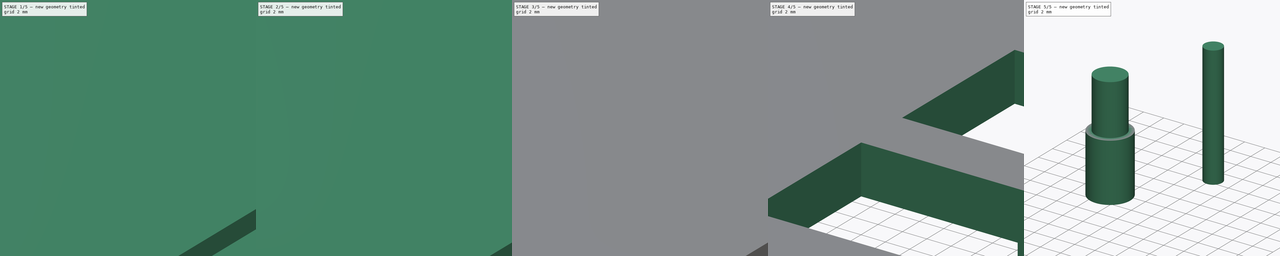
[diagram: build sequence overview — one tinted view per stage of 5, left to right]
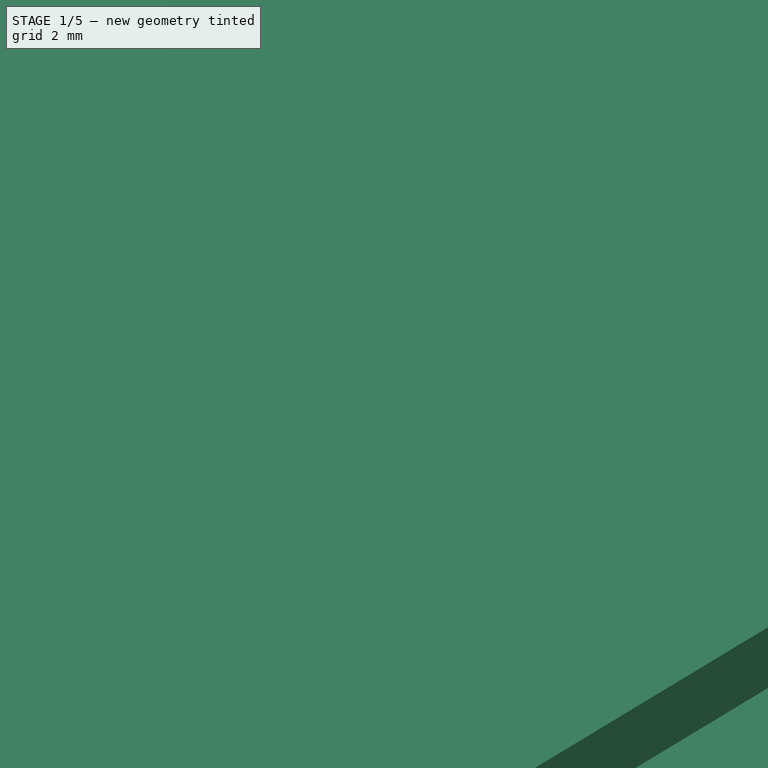
[diagram: stage 1 of 5 — iso view after this stage's code; geometry added in this stage tinted green]
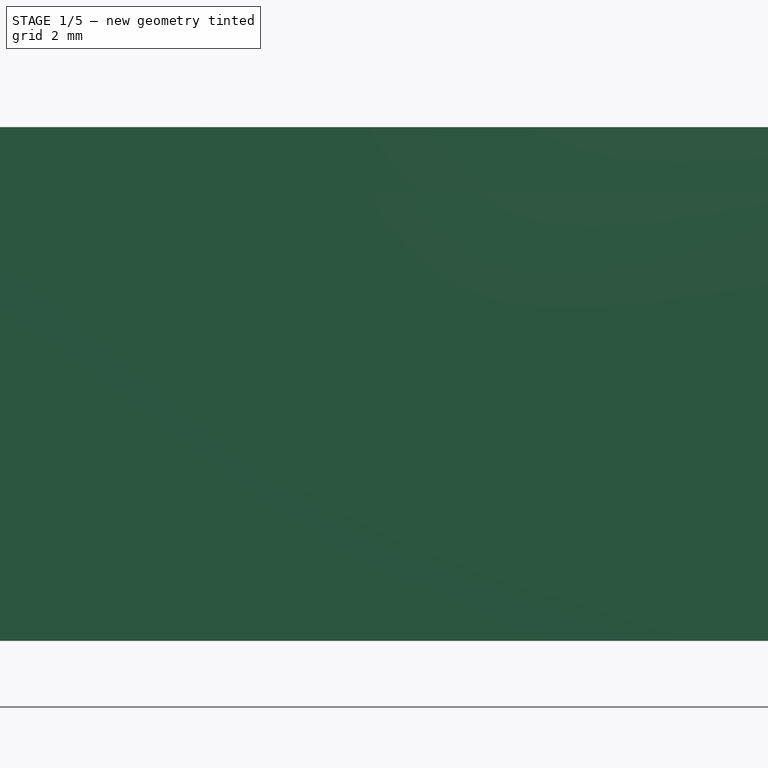
[diagram: stage 1 of 5 — front view after this stage's code; geometry added in this stage tinted green]
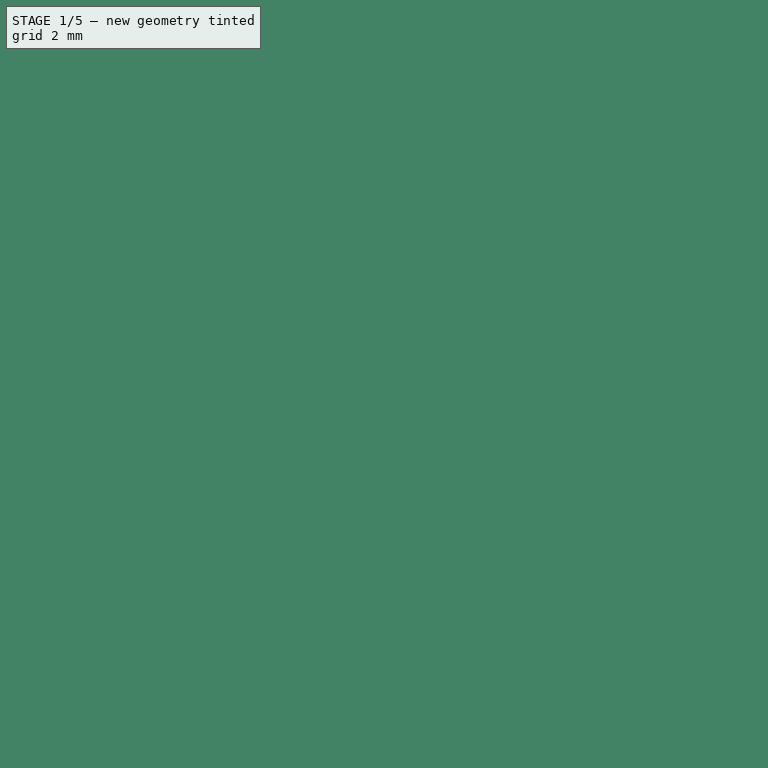
[diagram: stage 1 of 5 — top view after this stage's code; geometry added in this stage tinted green]
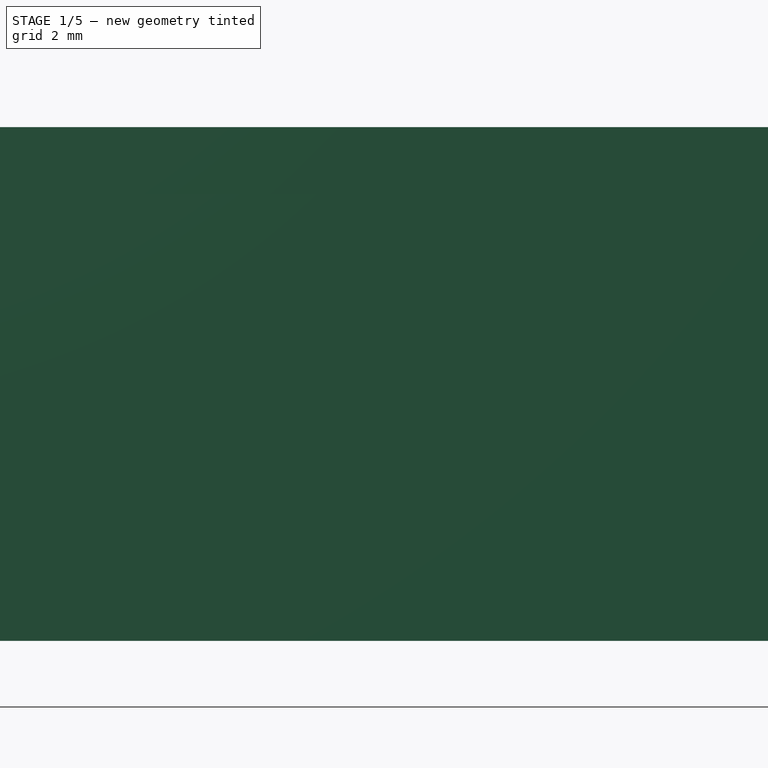
[diagram: stage 1 of 5 — right view after this stage's code; geometry added in this stage tinted green]
FCSTD DOCUMENT  (FreeCAD 1.0R39319 (Git))
Label: zMod_enclosure
License: All rights reserved
LicenseURL: https://en.wikipedia.org/wiki/All_rights_reserved
objects: Part::Feature×283, App::Part×91, App::Link×83, Sketcher::SketchObject×23, PartDesign::Pocket×11, PartDesign::Pad×8, PartDesign::SubShapeBinder×4, PartDesign::Plane×4, PartDesign::Hole×4, PartDesign::Body×4, PartDesign::CoordinateSystem×2, Part::Part2DObjectPython×2, Spreadsheet::Sheet×1
note: 414 computed .brp shape members not serialized (recipe doc carries the construction recipe); baked Part::Feature solids carry a one-line shape summary decoded from their .brp

FEATURE [PartDesign::CoordinateSystem] Local_CS_5180
  AttacherType = Attacher::AttachEngine3D
  MapMode = 2
FEATURE [Part::Feature] Pcb_5180
  shape: bbox 49 x 91 x 1.6 mm, 36 faces (baked)
FEATURE [Sketcher::SketchObject] PCB_Sketch_5180
  ArcFitTolerance = 1e-06
  FullyConstrained = false
  MakeInternals = false
  sketch-geometry (4):
    g0: LineSegment StartX=60 StartY=-90 StartZ=0 EndX=109 EndY=-90 EndZ=0
    g1: LineSegment StartX=109 StartY=-90 StartZ=0 EndX=109 EndY=-181 EndZ=0
    g2: LineSegment StartX=109 StartY=-181 StartZ=0 EndX=60 EndY=-181 EndZ=0
    g3: LineSegment StartX=60 StartY=-181 StartZ=0 EndX=60 EndY=-90 EndZ=0
  constraints (4):
    c: Coincident(g2,g3)
    c: Coincident(g0,g3)
    c: Coincident(g1,g2)
    c: Coincident(g0,g1)
FEATURE [App::Part] Board_Geoms_5180
  Group = -> [Pcb_5180,PCB_Sketch_5180]
  Origin = -> Origin
FEATURE [Part::Feature] Shape  label="R11_R_0805_2012Metric_8d3d2f9dee65"
  Placement = pos=(92.7,-150.2,0) rot=(0,0,1;3.14159rad)
  shape: bbox 2 x 1.2 x 0.45 mm, 26 faces (baked)
FEATURE [App::Link] R11_R_0805_2012Metric_8d3d2f9dee65_ln_  label="R19_R_0805_2012Metric_38cfb418eb9f"
  LinkPlacement = pos=(92,-100,0) rot=(0,0,1;0rad)
  LinkedObject = -> Shape
  Placement = pos=(92,-100,0) rot=(0,0,1;0rad)
FEATURE [Part::Feature] Shape001  label="C10_C_0805_2012Metric_aadd674c95c2"
  Placement = pos=(63,-99.2,0) rot=(0,0,-1;1.5708rad)
  shape: bbox 1.25 x 2 x 1.25 mm, 28 faces (baked)
FEATURE [App::Link] C10_C_0805_2012Metric_aadd674c95c2_ln_  label="C12_C_0805_2012Metric_14959823c2cc"
  LinkPlacement = pos=(87.8,-152.762,0) rot=(0,0,-1;1.5708rad)
  LinkedObject = -> Shape001
  Placement = pos=(87.8,-152.762,0) rot=(0,0,-1;1.5708rad)
FEATURE [App::Link] C10_C_0805_2012Metric_aadd674c95c2_ln_001  label="C16_C_0805_2012Metric_8949245e34a6"
  LinkPlacement = pos=(92.7375,-121.7,0) rot=(0,0,1;0rad)
  LinkedObject = -> Shape001
  Placement = pos=(92.7375,-121.7,0) rot=(0,0,1;0rad)
FEATURE [App::Link] C10_C_0805_2012Metric_aadd674c95c2_ln_002  label="C5_C_0805_2012Metric_6050fdb6cc0b"
  LinkPlacement = pos=(99.9,-156.6,0) rot=(0,0,1;3.14159rad)
  LinkedObject = -> Shape001
  Placement = pos=(99.9,-156.6,0) rot=(0,0,1;3.14159rad)
FEATURE [Part::Feature] Shape002  label="D6_D_SOD-882D_3e8a34a7d1fc"
  Placement = pos=(76.75,-164.6,0) rot=(0,0,1;3.14159rad)
  shape: bbox 1 x 0.56 x 0.41 mm, 31 faces (baked)
FEATURE [App::Link] R11_R_0805_2012Metric_8d3d2f9dee65_ln_001  label="R13_R_0805_2012Metric_ea9b1f39e0fe"
  LinkPlacement = pos=(96,-109.4,0) rot=(0,0,1;0rad)
  LinkedObject = -> Shape
  Placement = pos=(96,-109.4,0) rot=(0,0,1;0rad)
FEATURE [App::Link] R11_R_0805_2012Metric_8d3d2f9dee65_ln_002  label="R22_R_0805_2012Metric_9a4715efcd2f"
  LinkPlacement = pos=(92.7,-139.7,0) rot=(0,0,1;0rad)
  LinkedObject = -> Shape
  Placement = pos=(92.7,-139.7,0) rot=(0,0,1;0rad)
FEATURE [App::Link] R11_R_0805_2012Metric_8d3d2f9dee65_ln_003  label="R7_R_0805_2012Metric_96fb69b2454f"
  LinkPlacement = pos=(97.7625,-160.2,0) rot=(0,0,1;0rad)
  LinkedObject = -> Shape
  Placement = pos=(97.7625,-160.2,0) rot=(0,0,1;0rad)
FEATURE [Part::Feature] Shape003  label="L1_Coilcraft-MSS1048_bed8f5a73708"
  Placement = pos=(96.2,-175.325,0) rot=(0.57735,-0.57735,-0.57735;2.0944rad)
  shape: bbox 10.3 x 10.2 x 5.101 mm, 81 faces (baked)
FEATURE [App::Link] C10_C_0805_2012Metric_aadd674c95c2_ln_003  label="C1_C_0805_2012Metric_cc3bb60c1aa6"
  LinkPlacement = pos=(75.5625,-134.9,0) rot=(0,0,1;0rad)
  LinkedObject = -> Shape001
  Placement = pos=(75.5625,-134.9,0) rot=(0,0,1;0rad)
FEATURE [App::Link] R11_R_0805_2012Metric_8d3d2f9dee65_ln_004  label="R10_R_0805_2012Metric_4e8d9a845b8a"
  LinkPlacement = pos=(92.7,-143.2,0) rot=(0,0,1;3.14159rad)
  LinkedObject = -> Shape
  Placement = pos=(92.7,-143.2,0) rot=(0,0,1;3.14159rad)
FEATURE [App::Link] R11_R_0805_2012Metric_8d3d2f9dee65_ln_005  label="R14_R_0805_2012Metric_25c54357b3c9"
  LinkPlacement = pos=(97.1,-113.1,0) rot=(0,0,1;3.14159rad)
  LinkedObject = -> Shape
  Placement = pos=(97.1,-113.1,0) rot=(0,0,1;3.14159rad)
FEATURE [Part::Feature] Shape004  label="D1_D_SOD-123_a1590cb893a3"
  Placement = pos=(105.2,-164.575,0) rot=(0,0,-1;1.5708rad)
  shape: bbox 1.6 x 3.8 x 1.26 mm, 59 faces (baked)
FEATURE [App::Link] R11_R_0805_2012Metric_8d3d2f9dee65_ln_006  label="R15_R_0805_2012Metric_6bedf4550cc0"
  LinkPlacement = pos=(81.1,-163.4,0) rot=(0,0,1;3.14159rad)
  LinkedObject = -> Shape
  Placement = pos=(81.1,-163.4,0) rot=(0,0,1;3.14159rad)
FEATURE [Part::Feature] Shape005  label="U1_TSSOP-10_3x3mm_P0.5mm_120f7ab93f95"
  Placement = pos=(82.05,-136.6,0) rot=(0,0,1;3.14159rad)
  shape: bbox 4.9 x 3 x 1 mm, 177 faces (baked)
FEATURE [Part::Feature] Part__Feature  label="2023_02_06_13_24_43_0187"
  shape: bbox 0.75 x 0.68 x 5.8 mm, 40 faces (baked)
FEATURE [Part::Feature] Part__Feature001  label="2023_02_06_13_24_43_0171"
  shape: bbox 1.5 x 12 x 11.5 mm, 111 faces (baked)
FEATURE [Part::Feature] Part__Feature002  label="2023_02_06_13_24_43_0156"
  shape: bbox 0.75 x 0.68 x 5.8 mm, 40 faces (baked)
FEATURE [Part::Feature] Part__Feature003  label="2023_02_06_13_24_43_0140"
  shape: bbox 4.9 x 12 x 13.1 mm, 124 faces (baked)
FEATURE [Part::Feature] Part__Feature004  label="2023_02_06_13_24_43_0124"
  shape: bbox 4.9 x 12 x 13.1 mm, 124 faces (baked)
FEATURE [App::Part] _023_02_06_13_24_42_0953  label="J2_2023_02_06_13_24_42_0953_25016f37053c"
  Group = -> [Part__Feature,Part__Feature001,Part__Feature002,Part__Feature003,Part__Feature004]
  Origin = -> Origin008
  Placement = pos=(108.15,-104.3,0) rot=(0,0,1;1.5708rad)
FEATURE [App::Link] R11_R_0805_2012Metric_8d3d2f9dee65_ln_007  label="R4_R_0805_2012Metric_b6ca3974d62b"
  LinkPlacement = pos=(82,-131.5,0) rot=(0,0,1;0rad)
  LinkedObject = -> Shape
  Placement = pos=(82,-131.5,0) rot=(0,0,1;0rad)
FEATURE [App::Link] R11_R_0805_2012Metric_8d3d2f9dee65_ln_008  label="R16_R_0805_2012Metric_2020c063c1b3"
  LinkPlacement = pos=(73.9,-167.3,0) rot=(0,0,1;0rad)
  LinkedObject = -> Shape
  Placement = pos=(73.9,-167.3,0) rot=(0,0,1;0rad)
FEATURE [App::Link] R11_R_0805_2012Metric_8d3d2f9dee65_ln_009  label="R8_R_0805_2012Metric_539e387d27ca"
  LinkPlacement = pos=(92.7,-129.2,0) rot=(0,0,1;3.14159rad)
  LinkedObject = -> Shape
  Placement = pos=(92.7,-129.2,0) rot=(0,0,1;3.14159rad)
FEATURE [App::Link] R11_R_0805_2012Metric_8d3d2f9dee65_ln_010  label="R1_R_0805_2012Metric_9533aab23a68"
  LinkPlacement = pos=(81,-128.1,0) rot=(0,0,1;0rad)
  LinkedObject = -> Shape
  Placement = pos=(81,-128.1,0) rot=(0,0,1;0rad)
FEATURE [Part::Feature] Shape006  label="D2_D_SOD-323_f12dec0a8d24"
  Placement = pos=(97.15,-95,0) rot=(0,0,1;0rad)
  shape: bbox 2.5 x 1.25 x 1.11 mm, 59 faces (baked)
FEATURE [App::Link] R11_R_0805_2012Metric_8d3d2f9dee65_ln_011  label="R17_R_0805_2012Metric_f066c6e5d2f7"
  LinkPlacement = pos=(77.8,-112.8,0) rot=(0,0,1;0rad)
  LinkedObject = -> Shape
  Placement = pos=(77.8,-112.8,0) rot=(0,0,1;0rad)
FEATURE [App::Link] R11_R_0805_2012Metric_8d3d2f9dee65_ln_012  label="R20_R_0805_2012Metric_b6b2a028b375"
  LinkPlacement = pos=(92.7,-125.7,0) rot=(0,0,1;0rad)
  LinkedObject = -> Shape
  Placement = pos=(92.7,-125.7,0) rot=(0,0,1;0rad)
FEATURE [App::Link] C10_C_0805_2012Metric_aadd674c95c2_ln_004  label="C9_C_0805_2012Metric_2415783d3605"
  LinkPlacement = pos=(77.8,-116.2,0) rot=(0,0,1;3.14159rad)
  LinkedObject = -> Shape001
  Placement = pos=(77.8,-116.2,0) rot=(0,0,1;3.14159rad)
FEATURE [Part::Feature] Shape007  label="U3_SOT-23-5_78e00c41a4e3"
  Placement = pos=(97.4625,-163.775,0) rot=(0,0,1;3.14159rad)
  shape: bbox 2.8 x 2.9 x 1.55 mm, 102 faces (baked)
FEATURE [App::Link] R11_R_0805_2012Metric_8d3d2f9dee65_ln_013  label="R9_R_0805_2012Metric_00122c048323"
  LinkPlacement = pos=(92.7,-136.2,0) rot=(0,0,1;3.14159rad)
  LinkedObject = -> Shape
  Placement = pos=(92.7,-136.2,0) rot=(0,0,1;3.14159rad)
FEATURE [Part::Feature] Part__Feature005  label="CUI_DEVICES_TS07-667-30-BK-100-SMT-TR"
  shape: bbox 0.7 x 0.55 x 1.15 mm, 12 faces (baked)
FEATURE [Part::Feature] Part__Feature006  label="CUI_DEVICES_TS07-667-30-BK-100-SMT-TR001"
  shape: bbox 0.7 x 0.55 x 1.15 mm, 12 faces (baked)
FEATURE [Part::Feature] Part__Feature007  label="CUI_DEVICES_TS07-667-30-BK-100-SMT-TR002"
  shape: bbox 0.7 x 0.55 x 1.15 mm, 12 faces (baked)
FEATURE [Part::Feature] Part__Feature008  label="CUI_DEVICES_TS07-667-30-BK-100-SMT-TR003"
  shape: bbox 3.156 x 1.3 x 3.156 mm, 6 faces (baked)
FEATURE [Part::Feature] Part__Feature009  label="CUI_DEVICES_TS07-667-30-BK-100-SMT-TR004"
  shape: bbox 6.6 x 1.7 x 6.1 mm, 20 faces (baked)
FEATURE [Part::Feature] Part__Feature010  label="CUI_DEVICES_TS07-667-30-BK-100-SMT-TR005"
  shape: bbox 0.7 x 0.55 x 1.15 mm, 12 faces (baked)
FEATURE [Part::Feature] Part__Feature011  label="CUI_DEVICES_TS07-667-30-BK-100-SMT-TR006"
  shape: bbox 6.6 x 1.737 x 6 mm, 54 faces (baked)
FEATURE [App::Part] CUI_DEVICES_TS07_667_30_BK_100_SMT_TR  label="S1_CUI_DEVICES_TS07-667-30-BK-100-SMT-TR007_09e3fd7fa350"
  Group = -> [Part__Feature005,Part__Feature006,Part__Feature007,Part__Feature008,Part__Feature009,Part__Feature010,Part__Feature011]
  Origin = -> Origin009
  Placement = pos=(105.55,-113,0) rot=(0,0.707107,0.707107;3.14159rad)
FEATURE [App::Link] C10_C_0805_2012Metric_aadd674c95c2_ln_005  label="C14_C_0805_2012Metric_c6ecbd0ab5e2"
  LinkPlacement = pos=(84.15,-158.7,0) rot=(0,0,1;1.5708rad)
  LinkedObject = -> Shape001
  Placement = pos=(84.15,-158.7,0) rot=(0,0,1;1.5708rad)
FEATURE [App::Link] C10_C_0805_2012Metric_aadd674c95c2_ln_006  label="C17_C_0805_2012Metric_475a3587d291"
  LinkPlacement = pos=(88.2,-131.7,0) rot=(0,0,1;1.5708rad)
  LinkedObject = -> Shape001
  Placement = pos=(88.2,-131.7,0) rot=(0,0,1;1.5708rad)
FEATURE [Part::Feature] Shape008  label="F1_Fuse_0805_2012Metric_303ee67611bb"
  Placement = pos=(75.6625,-131.5,0) rot=(0,0,1;0rad)
  shape: bbox 2 x 1.25 x 0.45 mm, 26 faces (baked)
FEATURE [App::Link] C10_C_0805_2012Metric_aadd674c95c2_ln_007  label="C3_C_0805_2012Metric_e2ad5e81f0d9"
  LinkPlacement = pos=(92.9625,-167.925,0) rot=(0,0,1;0rad)
  LinkedObject = -> Shape001
  Placement = pos=(92.9625,-167.925,0) rot=(0,0,1;0rad)
FEATURE [App::Link] C10_C_0805_2012Metric_aadd674c95c2_ln_008  label="C13_C_0805_2012Metric_b0f096cb0b74"
  LinkPlacement = pos=(87.75,-158.7,0) rot=(0,0,1;1.5708rad)
  LinkedObject = -> Shape001
  Placement = pos=(87.75,-158.7,0) rot=(0,0,1;1.5708rad)
FEATURE [App::Link] C10_C_0805_2012Metric_aadd674c95c2_ln_009  label="C11_C_0805_2012Metric_d5ef5fdf28cd"
  LinkPlacement = pos=(84.2,-152.762,0) rot=(0,0,-1;1.5708rad)
  LinkedObject = -> Shape001
  Placement = pos=(84.2,-152.762,0) rot=(0,0,-1;1.5708rad)
FEATURE [App::Link] C10_C_0805_2012Metric_aadd674c95c2_ln_010  label="C7_C_0805_2012Metric_665334b1dad8"
  LinkPlacement = pos=(86.7,-163.4,0) rot=(0,0,1;3.14159rad)
  LinkedObject = -> Shape001
  Placement = pos=(86.7,-163.4,0) rot=(0,0,1;3.14159rad)
FEATURE [App::Link] C10_C_0805_2012Metric_aadd674c95c2_ln_011  label="C6_C_0805_2012Metric_c2b0e4b64176"
  LinkPlacement = pos=(92.6,-94,0) rot=(0,0,1;1.5708rad)
  LinkedObject = -> Shape001
  Placement = pos=(92.6,-94,0) rot=(0,0,1;1.5708rad)
FEATURE [App::Link] C10_C_0805_2012Metric_aadd674c95c2_ln_012  label="C4_C_0805_2012Metric_1f8a6788d4af"
  LinkPlacement = pos=(99.9,-153.1,0) rot=(0,0,1;3.14159rad)
  LinkedObject = -> Shape001
  Placement = pos=(99.9,-153.1,0) rot=(0,0,1;3.14159rad)
FEATURE [App::Link] D6_D_SOD_882D_3e8a34a7d1fc_ln_  label="D5_D_SOD-882D_3536cc42688c"
  LinkPlacement = pos=(77.7,-167.4,0) rot=(0,0,1;0rad)
  LinkedObject = -> Shape002
  Placement = pos=(77.7,-167.4,0) rot=(0,0,1;0rad)
FEATURE [App::Link] C10_C_0805_2012Metric_aadd674c95c2_ln_013  label="C19_C_0805_2012Metric_e324d381df18"
  LinkPlacement = pos=(79.9625,-146.7,0) rot=(0,0,1;3.14159rad)
  LinkedObject = -> Shape001
  Placement = pos=(79.9625,-146.7,0) rot=(0,0,1;3.14159rad)
FEATURE [App::Link] R11_R_0805_2012Metric_8d3d2f9dee65_ln_014  label="R3_R_0805_2012Metric_d63096c4ace6"
  LinkPlacement = pos=(87.2,-140.1,0) rot=(0,0,1;0rad)
  LinkedObject = -> Shape
  Placement = pos=(87.2,-140.1,0) rot=(0,0,1;0rad)
FEATURE [App::Link] R11_R_0805_2012Metric_8d3d2f9dee65_ln_015  label="R18_R_0805_2012Metric_9ef65ade98af"
  LinkPlacement = pos=(72.6,-118.8,0) rot=(0,0,-1;1.5708rad)
  LinkedObject = -> Shape
  Placement = pos=(72.6,-118.8,0) rot=(0,0,-1;1.5708rad)
FEATURE [App::Link] C10_C_0805_2012Metric_aadd674c95c2_ln_014  label="C15_C_0805_2012Metric_6525a75fc860"
  LinkPlacement = pos=(97.0625,-117.2,0) rot=(0,0,1;3.14159rad)
  LinkedObject = -> Shape001
  Placement = pos=(97.0625,-117.2,0) rot=(0,0,1;3.14159rad)
FEATURE [App::Link] D1_D_SOD_123_a1590cb893a3_ln_  label="D3_D_SOD-123_7fb5c8555ca1"
  LinkPlacement = pos=(84.9,-169.2,0) rot=(0,0,1;1.5708rad)
  LinkedObject = -> Shape004
  Placement = pos=(84.9,-169.2,0) rot=(0,0,1;1.5708rad)
FEATURE [Part::Feature] Part__Feature012  label="USB4110-GF-A_revB(1) MF"
  Placement = pos=(-6.27e-14,0,6.28) rot=(0,0,1;0rad)
  shape: bbox 11.3 x 3.89 x 7.705 mm, 813 faces (baked)
FEATURE [App::Part] USB4110_GF_A_revB  label="J5_USB4110-GF-A_revB_7088c9166fdc"
  Group = -> [Part__Feature012]
  Origin = -> Origin010
  Placement = pos=(78.4,-174.57,0) rot=(1,0,0;1.5708rad)
FEATURE [Part::Feature] Part__Feature013  label="uid__2428"
  shape: bbox 18 x 25.5 x 0.8306 mm, 76 faces (baked)
FEATURE [Part::Feature] Part__Feature014  label="MINI-ANT-TYPEB.STEP"
  shape: bbox 14.64 x 5.654 x 0.035 mm, 46 faces (baked)
FEATURE [App::Part] Submodel_D__3D_design_ESP32_C6_module_module_ESP32_C6_WROOM_1_3D_PCB_ESP32_C6_WROOM_1_V1_2_20220909_PCB_3D_ImportedPartModels_MINI_ANT_TYPEB_STEP  label="Submodel-D__3D_design_ESP32-C6_module_module_ESP32-C6-WROOM-1-3D_PCB_ESP32-C6-WROOM-1_V1.2_20220909_PCB_3D_ImportedPartModels_MINI-ANT-TYPEB.STEP"
  Group = -> [Part__Feature014]
  Origin = -> Origin011
  Placement = pos=(5.76042,-28.2127,-0.765) rot=(0,0,1;0rad)
FEATURE [App::Part] Submodel_MINI_ANT_TYPEB_part_MINI_ANT_TYPEB  label="Submodel-MINI-ANT-TYPEB_part_MINI-ANT-TYPEB"
  Group = -> [Submodel_D__3D_design_ESP32_C6_module_module_ESP32_C6_WROOM_1_3D_PCB_ESP32_C6_WROOM_1_V1_2_20220909_PCB_3D_ImportedPartModels_MINI_ANT_TYPEB_STEP]
  Origin = -> Origin012
  Placement = pos=(-5.969,28.2179,0.89916) rot=(0,0,1;0rad)
FEATURE [Part::Feature] Part__Feature015  label="R0201_20210301.xtd"
  shape: bbox 0.15 x 0.3 x 0.23 mm, 14 faces (baked)
FEATURE [Part::Feature] Part__Feature016  label="R0201_20210301.xtd001"
  shape: bbox 0.15 x 0.3 x 0.23 mm, 14 faces (baked)
FEATURE [Part::Feature] Part__Feature017  label="R0201_20210301.xtd002"
  shape: bbox 0.56 x 0.3 x 0.19 mm, 6 faces (baked)
FEATURE [App::Part] R0201_20210301_xtd  label="R0201_20210301.xtd003"
  Group = -> [Part__Feature015,Part__Feature016,Part__Feature017]
  Origin = -> Origin013
FEATURE [App::Part] Submodel_D__3D_design_ESP32_C6_module_module_ESP32_C6_WROOM_1_3D_PCB_ESP32_C6_WROOM_1_V1_2_20220909_PCB_3D_ImportedPartModels_R0201_20210301_STEP  label="Submodel-D__3D_design_ESP32-C6_module_module_ESP32-C6-WROOM-1-3D_PCB_ESP32-C6-WROOM-1_V1.2_20220909_PCB_3D_ImportedPartModels_R0201_20210301.STEP"
  Group = -> [R0201_20210301_xtd]
  Origin = -> Origin014
  Placement = pos=(2.92398e-05,1.295e-07,0.02) rot=(0,0,1;0rad)
FEATURE [App::Part] Submodel_R0201_part_R0201  label="Submodel-R0201_part_R0201"
  Group = -> [Submodel_D__3D_design_ESP32_C6_module_module_ESP32_C6_WROOM_1_3D_PCB_ESP32_C6_WROOM_1_V1_2_20220909_PCB_3D_ImportedPartModels_R0201_20210301_STEP]
  Origin = -> Origin015
  Placement = pos=(11.049,10.0965,0.89916) rot=(0,0,-1;0.785398rad)
FEATURE [Part::Feature] Part__Feature018  label="ESP32-C6_QFN40_5X5_202306.xtd"
  shape: bbox 3.3 x 3.3 x 0.02 mm, 12 faces (baked)
FEATURE [Part::Feature] Part__Feature019  label="ESP32-C6_QFN40_5X5_202306.xtd001"
  shape: bbox 5.041 x 5.041 x 0.8514 mm, 501 faces (baked)
FEATURE [App::Part] ESP32_C6_QFN40_5X5_202306_xtd  label="ESP32-C6_QFN40_5X5_202306.xtd002"
  Group = -> [Part__Feature018,Part__Feature019]
  Origin = -> Origin016
FEATURE [App::Part] Submodel_D__3D_design_ESP32_C6_module_module_ESP32_C6_WROOM_1_3D_PCB_ESP32_C6_WROOM_1_V1_2_20220909_PCB_3D_ImportedPartModels_ESP32_C6_QFN40_5X5_202306_STEP  label="Submodel-D__3D_design_ESP32-C6_module_module_ESP32-C6-WROOM-1-3D_PCB_ESP32-C6-WROOM-1_V1.2_20220909_PCB_3D_ImportedPartModels_ESP32-C6_QFN40_5X5_202306.STEP"
  Group = -> [ESP32_C6_QFN40_5X5_202306_xtd]
  Origin = -> Origin017
  Placement = pos=(3.81e-08,-3.121e-07,0.02) rot=(0,0,1;0rad)
FEATURE [App::Part] Submodel_QFN40_0P4_5_E3P3_part_QFN40_0P4_5_E3P3  label="Submodel-QFN40_0P4_5_E3P3_part_QFN40_0P4_5_E3P3"
  Group = -> [Submodel_D__3D_design_ESP32_C6_module_module_ESP32_C6_WROOM_1_3D_PCB_ESP32_C6_WROOM_1_V1_2_20220909_PCB_3D_ImportedPartModels_ESP32_C6_QFN40_5X5_202306_STEP]
  Origin = -> Origin018
  Placement = pos=(7.49503,12.29,0.89916) rot=(0,0,-1;1.5708rad)
FEATURE [Part::Feature] Part__Feature020  label="XTAL3225_20210301.xtd"
  shape: bbox 3.2 x 0.7 x 2.5 mm, 81 faces (baked)
FEATURE [Part::Feature] Part__Feature021  label="XTAL3225_20210301.xtd001"
  shape: bbox 0.8 x 0.01 x 0.7 mm, 6 faces (baked)
FEATURE [Part::Feature] Part__Feature022  label="XTAL3225_20210301.xtd002"
  shape: bbox 0.8 x 0.01 x 0.7 mm, 7 faces (baked)
FEATURE [Part::Feature] Part__Feature023  label="XTAL3225_20210301.xtd003"
  shape: bbox 0.8 x 0.01 x 0.7 mm, 6 faces (baked)
FEATURE [Part::Feature] Part__Feature024  label="XTAL3225_20210301.xtd004"
  shape: bbox 0.8 x 0.01 x 0.7 mm, 6 faces (baked)
FEATURE [App::Part] XTAL3225_20210301_xtd  label="XTAL3225_20210301.xtd005"
  Group = -> [Part__Feature020,Part__Feature021,Part__Feature022,Part__Feature023,Part__Feature024]
  Origin = -> Origin019
FEATURE [App::Part] Submodel_D__3D_design_ESP32_C6_module_module_ESP32_C6_WROOM_1_3D_PCB_ESP32_C6_WROOM_1_V1_2_20220909_PCB_3D_ImportedPartModels_XTAL3225_20210301_STEP  label="Submodel-D__3D_design_ESP32-C6_module_module_ESP32-C6-WROOM-1-3D_PCB_ESP32-C6-WROOM-1_V1.2_20220909_PCB_3D_ImportedPartModels_XTAL3225_20210301.STEP"
  Group = -> [XTAL3225_20210301_xtd]
  Origin = -> Origin020
  Placement = pos=(0,0,0) rot=(1,0,0;1.5708rad)
FEATURE [App::Part] Submodel_XTAL3225_part_XTAL3225  label="Submodel-XTAL3225_part_XTAL3225"
  Group = -> [Submodel_D__3D_design_ESP32_C6_module_module_ESP32_C6_WROOM_1_3D_PCB_ESP32_C6_WROOM_1_V1_2_20220909_PCB_3D_ImportedPartModels_XTAL3225_20210301_STEP]
  Origin = -> Origin021
  Placement = pos=(13.8811,12.7889,0.89916) rot=(0,0,-1;1.5708rad)
FEATURE [Part::Feature] Part__Feature025  label="SOP8_rev1_20210308.xtd"
  shape: bbox 5 x 6.2 x 1.61 mm, 129 faces (baked)
FEATURE [App::Part] Submodel_D__3D_design_ESP32_C6_module_module_ESP32_C6_WROOM_1_3D_PCB_ESP32_C6_WROOM_1_V1_2_20220909_PCB_3D_ImportedPartModels_SOP8_rev1_20210308_STEP  label="Submodel-D__3D_design_ESP32-C6_module_module_ESP32-C6-WROOM-1-3D_PCB_ESP32-C6-WROOM-1_V1.2_20220909_PCB_3D_ImportedPartModels_SOP8_rev1_20210308.STEP"
  Group = -> [Part__Feature025]
  Origin = -> Origin022
  Placement = pos=(-2.5,3.1,0.96) rot=(0,0,1;0rad)
FEATURE [App::Part] Submodel_SOP8_1P27_6P6_part_SOP8_1P27_6P6  label="Submodel-SOP8_1P27_6P6_part_SOP8_1P27_6P6"
  Group = -> [Submodel_D__3D_design_ESP32_C6_module_module_ESP32_C6_WROOM_1_3D_PCB_ESP32_C6_WROOM_1_V1_2_20220909_PCB_3D_ImportedPartModels_SOP8_rev1_20210308_STEP]
  Origin = -> Origin023
  Placement = pos=(7.62,4.80009,0.89916) rot=(0,0,-1;1.5708rad)
FEATURE [Part::Feature] Part__Feature026  label="R0201_20210301.xtd004"
  shape: bbox 0.15 x 0.3 x 0.23 mm, 14 faces (baked)
FEATURE [Part::Feature] Part__Feature027  label="R0201_20210301.xtd005"
  shape: bbox 0.15 x 0.3 x 0.23 mm, 14 faces (baked)
FEATURE [Part::Feature] Part__Feature028  label="R0201_20210301.xtd006"
  shape: bbox 0.56 x 0.3 x 0.19 mm, 6 faces (baked)
FEATURE [App::Part] R0201_20210301_xtd001  label="R0201_20210301.xtd007"
  Group = -> [Part__Feature026,Part__Feature027,Part__Feature028]
  Origin = -> Origin024
FEATURE [App::Part] Submodel_D__3D_design_ESP32_C6_module_module_ESP32_C6_WROOM_1_3D_PCB_ESP32_C6_WROOM_1_V1_2_20220909_PCB_3D_ImportedPartModels_R0201_20210301_STEP001  label="Submodel-D__3D_design_ESP32-C6_module_module_ESP32-C6-WROOM-1-3D_PCB_ESP32-C6-WROOM-1_V1.2_20220909_PCB_3D_ImportedPartModels_R0201_20210301.STEP001"
  Group = -> [R0201_20210301_xtd001]
  Origin = -> Origin025
  Placement = pos=(2.92398e-05,1.295e-07,0.02) rot=(0,0,1;0rad)
FEATURE [App::Part] Submodel_R0201_part_R0202  label="Submodel-R0201_part_R0202"
  Group = -> [Submodel_D__3D_design_ESP32_C6_module_module_ESP32_C6_WROOM_1_3D_PCB_ESP32_C6_WROOM_1_V1_2_20220909_PCB_3D_ImportedPartModels_R0201_20210301_STEP001]
  Origin = -> Origin026
  Placement = pos=(7.7978,8.4455,0.89916) rot=(0,0,1;1.5708rad)
FEATURE [Part::Feature] Part__Feature029  label="R0201_20210301.xtd008"
  shape: bbox 0.15 x 0.3 x 0.23 mm, 14 faces (baked)
FEATURE [Part::Feature] Part__Feature030  label="R0201_20210301.xtd009"
  shape: bbox 0.15 x 0.3 x 0.23 mm, 14 faces (baked)
FEATURE [Part::Feature] Part__Feature031  label="R0201_20210301.xtd010"
  shape: bbox 0.56 x 0.3 x 0.19 mm, 6 faces (baked)
FEATURE [App::Part] R0201_20210301_xtd002  label="R0201_20210301.xtd011"
  Group = -> [Part__Feature029,Part__Feature030,Part__Feature031]
  Origin = -> Origin027
FEATURE [App::Part] Submodel_D__3D_design_ESP32_C6_module_module_ESP32_C6_WROOM_1_3D_PCB_ESP32_C6_WROOM_1_V1_2_20220909_PCB_3D_ImportedPartModels_R0201_20210301_STEP002  label="Submodel-D__3D_design_ESP32-C6_module_module_ESP32-C6-WROOM-1-3D_PCB_ESP32-C6-WROOM-1_V1.2_20220909_PCB_3D_ImportedPartModels_R0201_20210301.STEP002"
  Group = -> [R0201_20210301_xtd002]
  Origin = -> Origin028
  Placement = pos=(2.92398e-05,1.295e-07,0.02) rot=(0,0,1;0rad)
FEATURE [App::Part] Submodel_R0201_part_R0203  label="Submodel-R0201_part_R0203"
  Group = -> [Submodel_D__3D_design_ESP32_C6_module_module_ESP32_C6_WROOM_1_3D_PCB_ESP32_C6_WROOM_1_V1_2_20220909_PCB_3D_ImportedPartModels_R0201_20210301_STEP002]
  Origin = -> Origin029
  Placement = pos=(7.1755,8.4455,0.89916) rot=(0,0,1;1.5708rad)
FEATURE [Part::Feature] Part__Feature032  label="R0201_20210301.xtd012"
  shape: bbox 0.15 x 0.3 x 0.23 mm, 14 faces (baked)
FEATURE [Part::Feature] Part__Feature033  label="R0201_20210301.xtd013"
  shape: bbox 0.15 x 0.3 x 0.23 mm, 14 faces (baked)
FEATURE [Part::Feature] Part__Feature034  label="R0201_20210301.xtd014"
  shape: bbox 0.56 x 0.3 x 0.19 mm, 6 faces (baked)
FEATURE [App::Part] R0201_20210301_xtd003  label="R0201_20210301.xtd015"
  Group = -> [Part__Feature032,Part__Feature033,Part__Feature034]
  Origin = -> Origin030
FEATURE [App::Part] Submodel_D__3D_design_ESP32_C6_module_module_ESP32_C6_WROOM_1_3D_PCB_ESP32_C6_WROOM_1_V1_2_20220909_PCB_3D_ImportedPartModels_R0201_20210301_STEP003  label="Submodel-D__3D_design_ESP32-C6_module_module_ESP32-C6-WROOM-1-3D_PCB_ESP32-C6-WROOM-1_V1.2_20220909_PCB_3D_ImportedPartModels_R0201_20210301.STEP003"
  Group = -> [R0201_20210301_xtd003]
  Origin = -> Origin031
  Placement = pos=(2.92398e-05,1.295e-07,0.02) rot=(0,0,1;0rad)
FEATURE [App::Part] Submodel_R0201_part_R0204  label="Submodel-R0201_part_R0204"
  Group = -> [Submodel_D__3D_design_ESP32_C6_module_module_ESP32_C6_WROOM_1_3D_PCB_ESP32_C6_WROOM_1_V1_2_20220909_PCB_3D_ImportedPartModels_R0201_20210301_STEP003]
  Origin = -> Origin032
  Placement = pos=(6.5405,8.4455,0.89916) rot=(0,0,1;1.5708rad)
FEATURE [Part::Feature] Part__Feature035  label="R0201_20210301.xtd016"
  shape: bbox 0.15 x 0.3 x 0.23 mm, 14 faces (baked)
FEATURE [Part::Feature] Part__Feature036  label="R0201_20210301.xtd017"
  shape: bbox 0.15 x 0.3 x 0.23 mm, 14 faces (baked)
FEATURE [Part::Feature] Part__Feature037  label="R0201_20210301.xtd018"
  shape: bbox 0.56 x 0.3 x 0.19 mm, 6 faces (baked)
FEATURE [App::Part] R0201_20210301_xtd004  label="R0201_20210301.xtd019"
  Group = -> [Part__Feature035,Part__Feature036,Part__Feature037]
  Origin = -> Origin033
FEATURE [App::Part] Submodel_D__3D_design_ESP32_C6_module_module_ESP32_C6_WROOM_1_3D_PCB_ESP32_C6_WROOM_1_V1_2_20220909_PCB_3D_ImportedPartModels_R0201_20210301_STEP004  label="Submodel-D__3D_design_ESP32-C6_module_module_ESP32-C6-WROOM-1-3D_PCB_ESP32-C6-WROOM-1_V1.2_20220909_PCB_3D_ImportedPartModels_R0201_20210301.STEP004"
  Group = -> [R0201_20210301_xtd004]
  Origin = -> Origin034
  Placement = pos=(2.92398e-05,1.295e-07,0.02) rot=(0,0,1;0rad)
FEATURE [App::Part] Submodel_R0201_part_R0205  label="Submodel-R0201_part_R0205"
  Group = -> [Submodel_D__3D_design_ESP32_C6_module_module_ESP32_C6_WROOM_1_3D_PCB_ESP32_C6_WROOM_1_V1_2_20220909_PCB_3D_ImportedPartModels_R0201_20210301_STEP004]
  Origin = -> Origin035
  Placement = pos=(11.2014,13.6144,0.89916) rot=(0,0,1;3.14159rad)
FEATURE [Part::Feature] Part__Feature038  label="R0201_20210301.xtd020"
  shape: bbox 0.15 x 0.3 x 0.23 mm, 14 faces (baked)
FEATURE [Part::Feature] Part__Feature039  label="R0201_20210301.xtd021"
  shape: bbox 0.15 x 0.3 x 0.23 mm, 14 faces (baked)
FEATURE [Part::Feature] Part__Feature040  label="R0201_20210301.xtd022"
  shape: bbox 0.56 x 0.3 x 0.19 mm, 6 faces (baked)
FEATURE [App::Part] R0201_20210301_xtd005  label="R0201_20210301.xtd023"
  Group = -> [Part__Feature038,Part__Feature039,Part__Feature040]
  Origin = -> Origin036
FEATURE [App::Part] Submodel_D__3D_design_ESP32_C6_module_module_ESP32_C6_WROOM_1_3D_PCB_ESP32_C6_WROOM_1_V1_2_20220909_PCB_3D_ImportedPartModels_R0201_20210301_STEP005  label="Submodel-D__3D_design_ESP32-C6_module_module_ESP32-C6-WROOM-1-3D_PCB_ESP32-C6-WROOM-1_V1.2_20220909_PCB_3D_ImportedPartModels_R0201_20210301.STEP005"
  Group = -> [R0201_20210301_xtd005]
  Origin = -> Origin037
  Placement = pos=(2.92398e-05,1.295e-07,0.02) rot=(0,0,1;0rad)
FEATURE [App::Part] Submodel_R0201_part_R0206  label="Submodel-R0201_part_R0206"
  Group = -> [Submodel_D__3D_design_ESP32_C6_module_module_ESP32_C6_WROOM_1_3D_PCB_ESP32_C6_WROOM_1_V1_2_20220909_PCB_3D_ImportedPartModels_R0201_20210301_STEP005]
  Origin = -> Origin038
  Placement = pos=(9.3345,8.5344,0.89916) rot=(0,0,1;1.5708rad)
FEATURE [Part::Feature] Part__Feature041  label="R0201_20210301.xtd024"
  shape: bbox 0.15 x 0.3 x 0.23 mm, 14 faces (baked)
FEATURE [Part::Feature] Part__Feature042  label="R0201_20210301.xtd025"
  shape: bbox 0.15 x 0.3 x 0.23 mm, 14 faces (baked)
FEATURE [Part::Feature] Part__Feature043  label="R0201_20210301.xtd026"
  shape: bbox 0.56 x 0.3 x 0.19 mm, 6 faces (baked)
FEATURE [App::Part] R0201_20210301_xtd006  label="R0201_20210301.xtd027"
  Group = -> [Part__Feature041,Part__Feature042,Part__Feature043]
  Origin = -> Origin039
FEATURE [App::Part] Submodel_D__3D_design_ESP32_C6_module_module_ESP32_C6_WROOM_1_3D_PCB_ESP32_C6_WROOM_1_V1_2_20220909_PCB_3D_ImportedPartModels_R0201_20210301_STEP006  label="Submodel-D__3D_design_ESP32-C6_module_module_ESP32-C6-WROOM-1-3D_PCB_ESP32-C6-WROOM-1_V1.2_20220909_PCB_3D_ImportedPartModels_R0201_20210301.STEP006"
  Group = -> [R0201_20210301_xtd006]
  Origin = -> Origin040
  Placement = pos=(2.92398e-05,1.295e-07,0.02) rot=(0,0,1;0rad)
FEATURE [App::Part] Submodel_R0201_part_R0207  label="Submodel-R0201_part_R0207"
  Group = -> [Submodel_D__3D_design_ESP32_C6_module_module_ESP32_C6_WROOM_1_3D_PCB_ESP32_C6_WROOM_1_V1_2_20220909_PCB_3D_ImportedPartModels_R0201_20210301_STEP006]
  Origin = -> Origin041
  Placement = pos=(4.0132,8.4455,0.89916) rot=(0,0,-1;1.5708rad)
FEATURE [Part::Feature] Part__Feature044  label="R0201_20210301.xtd028"
  shape: bbox 0.15 x 0.3 x 0.23 mm, 14 faces (baked)
FEATURE [Part::Feature] Part__Feature045  label="R0201_20210301.xtd029"
  shape: bbox 0.15 x 0.3 x 0.23 mm, 14 faces (baked)
FEATURE [Part::Feature] Part__Feature046  label="R0201_20210301.xtd030"
  shape: bbox 0.56 x 0.3 x 0.19 mm, 6 faces (baked)
FEATURE [App::Part] R0201_20210301_xtd007  label="R0201_20210301.xtd031"
  Group = -> [Part__Feature044,Part__Feature045,Part__Feature046]
  Origin = -> Origin042
FEATURE [App::Part] Submodel_D__3D_design_ESP32_C6_module_module_ESP32_C6_WROOM_1_3D_PCB_ESP32_C6_WROOM_1_V1_2_20220909_PCB_3D_ImportedPartModels_R0201_20210301_STEP007  label="Submodel-D__3D_design_ESP32-C6_module_module_ESP32-C6-WROOM-1-3D_PCB_ESP32-C6-WROOM-1_V1.2_20220909_PCB_3D_ImportedPartModels_R0201_20210301.STEP007"
  Group = -> [R0201_20210301_xtd007]
  Origin = -> Origin043
  Placement = pos=(2.92398e-05,1.295e-07,0.02) rot=(0,0,1;0rad)
FEATURE [App::Part] Submodel_R0201_part_R0208  label="Submodel-R0201_part_R0208"
  Group = -> [Submodel_D__3D_design_ESP32_C6_module_module_ESP32_C6_WROOM_1_3D_PCB_ESP32_C6_WROOM_1_V1_2_20220909_PCB_3D_ImportedPartModels_R0201_20210301_STEP007]
  Origin = -> Origin044
  Placement = pos=(5.2832,8.4455,0.89916) rot=(0,0,1;1.5708rad)
FEATURE [Part::Feature] Part__Feature047  label="R0201_20210301.xtd032"
  shape: bbox 0.15 x 0.3 x 0.23 mm, 14 faces (baked)
FEATURE [Part::Feature] Part__Feature048  label="R0201_20210301.xtd033"
  shape: bbox 0.15 x 0.3 x 0.23 mm, 14 faces (baked)
FEATURE [Part::Feature] Part__Feature049  label="R0201_20210301.xtd034"
  shape: bbox 0.56 x 0.3 x 0.19 mm, 6 faces (baked)
FEATURE [App::Part] R0201_20210301_xtd008  label="R0201_20210301.xtd035"
  Group = -> [Part__Feature047,Part__Feature048,Part__Feature049]
  Origin = -> Origin045
FEATURE [App::Part] Submodel_D__3D_design_ESP32_C6_module_module_ESP32_C6_WROOM_1_3D_PCB_ESP32_C6_WROOM_1_V1_2_20220909_PCB_3D_ImportedPartModels_R0201_20210301_STEP008  label="Submodel-D__3D_design_ESP32-C6_module_module_ESP32-C6-WROOM-1-3D_PCB_ESP32-C6-WROOM-1_V1.2_20220909_PCB_3D_ImportedPartModels_R0201_20210301.STEP008"
  Group = -> [R0201_20210301_xtd008]
  Origin = -> Origin046
  Placement = pos=(2.92398e-05,1.295e-07,0.02) rot=(0,0,1;0rad)
FEATURE [App::Part] Submodel_R0201_part_R0209  label="Submodel-R0201_part_R0209"
  Group = -> [Submodel_D__3D_design_ESP32_C6_module_module_ESP32_C6_WROOM_1_3D_PCB_ESP32_C6_WROOM_1_V1_2_20220909_PCB_3D_ImportedPartModels_R0201_20210301_STEP008]
  Origin = -> Origin047
  Placement = pos=(4.6482,8.4455,0.89916) rot=(0,0,1;1.5708rad)
FEATURE [Part::Feature] Part__Feature050  label="L0201_20210301.xtd"
  shape: bbox 0.6 x 0.3 x 0.3 mm, 44 faces (baked)
FEATURE [App::Part] Submodel_D__3D_design_ESP32_C6_module_module_ESP32_C6_WROOM_1_3D_PCB_ESP32_C6_WROOM_1_V1_2_20220909_PCB_3D_ImportedPartModels_L0201_20210301_STEP  label="Submodel-D__3D_design_ESP32-C6_module_module_ESP32-C6-WROOM-1-3D_PCB_ESP32-C6-WROOM-1_V1.2_20220909_PCB_3D_ImportedPartModels_L0201_20210301.STEP"
  Group = -> [Part__Feature050]
  Origin = -> Origin048
  Placement = pos=(6.297e-07,-0.135,0.15) rot=(0,0,1;0rad)
FEATURE [App::Part] Submodel_L0201_part_L0201  label="Submodel-L0201_part_L0201"
  Group = -> [Submodel_D__3D_design_ESP32_C6_module_module_ESP32_C6_WROOM_1_3D_PCB_ESP32_C6_WROOM_1_V1_2_20220909_PCB_3D_ImportedPartModels_L0201_20210301_STEP]
  Origin = -> Origin049
  Placement = pos=(10.2438,16.3144,0.89916) rot=(0,0,1;0.785398rad)
FEATURE [Part::Feature] Part__Feature051  label="L0201_20210301.xtd001"
  shape: bbox 0.6 x 0.3 x 0.3 mm, 44 faces (baked)
FEATURE [App::Part] Submodel_D__3D_design_ESP32_C6_module_module_ESP32_C6_WROOM_1_3D_PCB_ESP32_C6_WROOM_1_V1_2_20220909_PCB_3D_ImportedPartModels_L0201_20210301_STEP001  label="Submodel-D__3D_design_ESP32-C6_module_module_ESP32-C6-WROOM-1-3D_PCB_ESP32-C6-WROOM-1_V1.2_20220909_PCB_3D_ImportedPartModels_L0201_20210301.STEP001"
  Group = -> [Part__Feature051]
  Origin = -> Origin050
  Placement = pos=(6.297e-07,-0.135,0.15) rot=(0,0,1;0rad)
FEATURE [App::Part] Submodel_L0201_part_L0202  label="Submodel-L0201_part_L0202"
  Group = -> [Submodel_D__3D_design_ESP32_C6_module_module_ESP32_C6_WROOM_1_3D_PCB_ESP32_C6_WROOM_1_V1_2_20220909_PCB_3D_ImportedPartModels_L0201_20210301_STEP001]
  Origin = -> Origin051
  Placement = pos=(7.7724,16.637,0.89916) rot=(0,0,-1;0.785398rad)
FEATURE [Part::Feature] Part__Feature052  label="DFN1006.xtd"
  shape: bbox 1 x 0.42 x 0.6 mm, 24 faces (baked)
FEATURE [App::Part] Submodel_D__3D_design_ESP32_C6_module_module_ESP32_C6_WROOM_1_3D_PCB_ESP32_C6_WROOM_1_V1_2_20220909_PCB_3D_ImportedPartModels_DFN1006_STEP  label="Submodel-D__3D_design_ESP32-C6_module_module_ESP32-C6-WROOM-1-3D_PCB_ESP32-C6-WROOM-1_V1.2_20220909_PCB_3D_ImportedPartModels_DFN1006.STEP"
  Group = -> [Part__Feature052]
  Origin = -> Origin052
  Placement = pos=(3.51e-07,-2.56e-08,0.02) rot=(1,0,0;1.5708rad)
FEATURE [App::Part] Submodel_SOD882_part_SOD882  label="Submodel-SOD882_part_SOD882"
  Group = -> [Submodel_D__3D_design_ESP32_C6_module_module_ESP32_C6_WROOM_1_3D_PCB_ESP32_C6_WROOM_1_V1_2_20220909_PCB_3D_ImportedPartModels_DFN1006_STEP]
  Origin = -> Origin053
  Placement = pos=(2.6543,17.018,0.89916) rot=(0,0,-1;1.5708rad)
FEATURE [Part::Feature] Part__Feature053  label="C0402_20210301.xtd"
  shape: bbox 1 x 0.5 x 0.5 mm, 44 faces (baked)
FEATURE [App::Part] Submodel_D__3D_design_ESP32_C6_module_module_ESP32_C6_WROOM_1_3D_PCB_ESP32_C6_WROOM_1_V1_2_20220909_PCB_3D_ImportedPartModels_C0402_20210301_STEP  label="Submodel-D__3D_design_ESP32-C6_module_module_ESP32-C6-WROOM-1-3D_PCB_ESP32-C6-WROOM-1_V1.2_20220909_PCB_3D_ImportedPartModels_C0402_20210301.STEP"
  Group = -> [Part__Feature053]
  Origin = -> Origin054
  Placement = pos=(-4.4174e-06,-0.235,0.25) rot=(0,0,1;0rad)
FEATURE [App::Part] Submodel_C0402_part_C0402  label="Submodel-C0402_part_C0402"
  Group = -> [Submodel_D__3D_design_ESP32_C6_module_module_ESP32_C6_WROOM_1_3D_PCB_ESP32_C6_WROOM_1_V1_2_20220909_PCB_3D_ImportedPartModels_C0402_20210301_STEP]
  Origin = -> Origin055
  Placement = pos=(3.7465,17.018,0.89916) rot=(0,0,-1;1.5708rad)
FEATURE [Part::Feature] Part__Feature054  label="C0201_20210301.xtd"
  shape: bbox 0.6 x 0.3 x 0.3 mm, 44 faces (baked)
FEATURE [App::Part] Submodel_D__3D_design_ESP32_C6_module_module_ESP32_C6_WROOM_1_3D_PCB_ESP32_C6_WROOM_1_V1_2_20220909_PCB_3D_ImportedPartModels_C0201_20210301_STEP  label="Submodel-D__3D_design_ESP32-C6_module_module_ESP32-C6-WROOM-1-3D_PCB_ESP32-C6-WROOM-1_V1.2_20220909_PCB_3D_ImportedPartModels_C0201_20210301.STEP"
  Group = -> [Part__Feature054]
  Origin = -> Origin056
  Placement = pos=(-2.96e-07,-0.135,0.15) rot=(0,0,1;0rad)
FEATURE [App::Part] Submodel_C0201_part_C0201  label="Submodel-C0201_part_C0201"
  Group = -> [Submodel_D__3D_design_ESP32_C6_module_module_ESP32_C6_WROOM_1_3D_PCB_ESP32_C6_WROOM_1_V1_2_20220909_PCB_3D_ImportedPartModels_C0201_20210301_STEP]
  Origin = -> Origin057
  Placement = pos=(5.9182,8.4455,0.89916) rot=(0,0,-1;1.5708rad)
FEATURE [Part::Feature] Part__Feature055  label="C0201_20210301.xtd001"
  shape: bbox 0.6 x 0.3 x 0.3 mm, 44 faces (baked)
FEATURE [App::Part] Submodel_D__3D_design_ESP32_C6_module_module_ESP32_C6_WROOM_1_3D_PCB_ESP32_C6_WROOM_1_V1_2_20220909_PCB_3D_ImportedPartModels_C0201_20210301_STEP001  label="Submodel-D__3D_design_ESP32-C6_module_module_ESP32-C6-WROOM-1-3D_PCB_ESP32-C6-WROOM-1_V1.2_20220909_PCB_3D_ImportedPartModels_C0201_20210301.STEP001"
  Group = -> [Part__Feature055]
  Origin = -> Origin058
  Placement = pos=(-2.96e-07,-0.135,0.15) rot=(0,0,1;0rad)
FEATURE [App::Part] Submodel_C0201_part_C0202  label="Submodel-C0201_part_C0202"
  Group = -> [Submodel_D__3D_design_ESP32_C6_module_module_ESP32_C6_WROOM_1_3D_PCB_ESP32_C6_WROOM_1_V1_2_20220909_PCB_3D_ImportedPartModels_C0201_20210301_STEP001]
  Origin = -> Origin059
  Placement = pos=(12.7635,6.4516,0.89916) rot=(0,0,1;1.5708rad)
FEATURE [Part::Feature] Part__Feature056  label="C0201_20210301.xtd002"
  shape: bbox 0.6 x 0.3 x 0.3 mm, 44 faces (baked)
FEATURE [App::Part] Submodel_D__3D_design_ESP32_C6_module_module_ESP32_C6_WROOM_1_3D_PCB_ESP32_C6_WROOM_1_V1_2_20220909_PCB_3D_ImportedPartModels_C0201_20210301_STEP002  label="Submodel-D__3D_design_ESP32-C6_module_module_ESP32-C6-WROOM-1-3D_PCB_ESP32-C6-WROOM-1_V1.2_20220909_PCB_3D_ImportedPartModels_C0201_20210301.STEP002"
  Group = -> [Part__Feature056]
  Origin = -> Origin060
  Placement = pos=(-2.96e-07,-0.135,0.15) rot=(0,0,1;0rad)
FEATURE [App::Part] Submodel_C0201_part_C0203  label="Submodel-C0201_part_C0203"
  Group = -> [Submodel_D__3D_design_ESP32_C6_module_module_ESP32_C6_WROOM_1_3D_PCB_ESP32_C6_WROOM_1_V1_2_20220909_PCB_3D_ImportedPartModels_C0201_20210301_STEP002]
  Origin = -> Origin061
  Placement = pos=(8.6233,16.2687,0.89916) rot=(0,0,1;0.785398rad)
FEATURE [Part::Feature] Part__Feature057  label="C0201_20210301.xtd003"
  shape: bbox 0.6 x 0.3 x 0.3 mm, 44 faces (baked)
FEATURE [App::Part] Submodel_D__3D_design_ESP32_C6_module_module_ESP32_C6_WROOM_1_3D_PCB_ESP32_C6_WROOM_1_V1_2_20220909_PCB_3D_ImportedPartModels_C0201_20210301_STEP003  label="Submodel-D__3D_design_ESP32-C6_module_module_ESP32-C6-WROOM-1-3D_PCB_ESP32-C6-WROOM-1_V1.2_20220909_PCB_3D_ImportedPartModels_C0201_20210301.STEP003"
  Group = -> [Part__Feature057]
  Origin = -> Origin062
  Placement = pos=(-2.96e-07,-0.135,0.15) rot=(0,0,1;0rad)
FEATURE [App::Part] Submodel_C0201_part_C0204  label="Submodel-C0201_part_C0204"
  Group = -> [Submodel_D__3D_design_ESP32_C6_module_module_ESP32_C6_WROOM_1_3D_PCB_ESP32_C6_WROOM_1_V1_2_20220909_PCB_3D_ImportedPartModels_C0201_20210301_STEP003]
  Origin = -> Origin063
  Placement = pos=(14.3751,10.7188,0.89916) rot=(0,0,1;3.14159rad)
FEATURE [Part::Feature] Part__Feature058  label="C0201_20210301.xtd004"
  shape: bbox 0.6 x 0.3 x 0.3 mm, 44 faces (baked)
FEATURE [App::Part] Submodel_D__3D_design_ESP32_C6_module_module_ESP32_C6_WROOM_1_3D_PCB_ESP32_C6_WROOM_1_V1_2_20220909_PCB_3D_ImportedPartModels_C0201_20210301_STEP004  label="Submodel-D__3D_design_ESP32-C6_module_module_ESP32-C6-WROOM-1-3D_PCB_ESP32-C6-WROOM-1_V1.2_20220909_PCB_3D_ImportedPartModels_C0201_20210301.STEP004"
  Group = -> [Part__Feature058]
  Origin = -> Origin064
  Placement = pos=(-2.96e-07,-0.135,0.15) rot=(0,0,1;0rad)
FEATURE [App::Part] Submodel_C0201_part_C0205  label="Submodel-C0201_part_C0205"
  Group = -> [Submodel_D__3D_design_ESP32_C6_module_module_ESP32_C6_WROOM_1_3D_PCB_ESP32_C6_WROOM_1_V1_2_20220909_PCB_3D_ImportedPartModels_C0201_20210301_STEP004]
  Origin = -> Origin065
  Placement = pos=(11.1887,12.5984,0.89916) rot=(0,0,1;0rad)
FEATURE [Part::Feature] Part__Feature059  label="C0201_20210301.xtd005"
  shape: bbox 0.6 x 0.3 x 0.3 mm, 44 faces (baked)
FEATURE [App::Part] Submodel_D__3D_design_ESP32_C6_module_module_ESP32_C6_WROOM_1_3D_PCB_ESP32_C6_WROOM_1_V1_2_20220909_PCB_3D_ImportedPartModels_C0201_20210301_STEP005  label="Submodel-D__3D_design_ESP32-C6_module_module_ESP32-C6-WROOM-1-3D_PCB_ESP32-C6-WROOM-1_V1.2_20220909_PCB_3D_ImportedPartModels_C0201_20210301.STEP005"
  Group = -> [Part__Feature059]
  Origin = -> Origin066
  Placement = pos=(-2.96e-07,-0.135,0.15) rot=(0,0,1;0rad)
FEATURE [App::Part] Submodel_C0201_part_C0206  label="Submodel-C0201_part_C0206"
  Group = -> [Submodel_D__3D_design_ESP32_C6_module_module_ESP32_C6_WROOM_1_3D_PCB_ESP32_C6_WROOM_1_V1_2_20220909_PCB_3D_ImportedPartModels_C0201_20210301_STEP005]
  Origin = -> Origin067
  Placement = pos=(11.2522,14.5034,0.89916) rot=(0,0,1;0rad)
FEATURE [Part::Feature] Part__Feature060  label="C0201_20210301.xtd006"
  shape: bbox 0.6 x 0.3 x 0.3 mm, 44 faces (baked)
FEATURE [App::Part] Submodel_D__3D_design_ESP32_C6_module_module_ESP32_C6_WROOM_1_3D_PCB_ESP32_C6_WROOM_1_V1_2_20220909_PCB_3D_ImportedPartModels_C0201_20210301_STEP006  label="Submodel-D__3D_design_ESP32-C6_module_module_ESP32-C6-WROOM-1-3D_PCB_ESP32-C6-WROOM-1_V1.2_20220909_PCB_3D_ImportedPartModels_C0201_20210301.STEP006"
  Group = -> [Part__Feature060]
  Origin = -> Origin068
  Placement = pos=(-2.96e-07,-0.135,0.15) rot=(0,0,1;0rad)
FEATURE [App::Part] Submodel_C0201_part_C0207  label="Submodel-C0201_part_C0207"
  Group = -> [Submodel_D__3D_design_ESP32_C6_module_module_ESP32_C6_WROOM_1_3D_PCB_ESP32_C6_WROOM_1_V1_2_20220909_PCB_3D_ImportedPartModels_C0201_20210301_STEP006]
  Origin = -> Origin069
  Placement = pos=(9.8044,15.5194,0.89916) rot=(0,0,1;2.35619rad)
FEATURE [Part::Feature] Part__Feature061  label="C0201_20210301.xtd007"
  shape: bbox 0.6 x 0.3 x 0.3 mm, 44 faces (baked)
FEATURE [App::Part] Submodel_D__3D_design_ESP32_C6_module_module_ESP32_C6_WROOM_1_3D_PCB_ESP32_C6_WROOM_1_V1_2_20220909_PCB_3D_ImportedPartModels_C0201_20210301_STEP007  label="Submodel-D__3D_design_ESP32-C6_module_module_ESP32-C6-WROOM-1-3D_PCB_ESP32-C6-WROOM-1_V1.2_20220909_PCB_3D_ImportedPartModels_C0201_20210301.STEP007"
  Group = -> [Part__Feature061]
  Origin = -> Origin070
  Placement = pos=(-2.96e-07,-0.135,0.15) rot=(0,0,1;0rad)
FEATURE [App::Part] Submodel_C0201_part_C0208  label="Submodel-C0201_part_C0208"
  Group = -> [Submodel_D__3D_design_ESP32_C6_module_module_ESP32_C6_WROOM_1_3D_PCB_ESP32_C6_WROOM_1_V1_2_20220909_PCB_3D_ImportedPartModels_C0201_20210301_STEP007]
  Origin = -> Origin071
  Placement = pos=(6.8199,17.1323,0.89916) rot=(0,0,-1;1.5708rad)
FEATURE [Part::Feature] Part__Feature062  label="C0201_20210301.xtd008"
  shape: bbox 0.6 x 0.3 x 0.3 mm, 44 faces (baked)
FEATURE [App::Part] Submodel_D__3D_design_ESP32_C6_module_module_ESP32_C6_WROOM_1_3D_PCB_ESP32_C6_WROOM_1_V1_2_20220909_PCB_3D_ImportedPartModels_C0201_20210301_STEP008  label="Submodel-D__3D_design_ESP32-C6_module_module_ESP32-C6-WROOM-1-3D_PCB_ESP32-C6-WROOM-1_V1.2_20220909_PCB_3D_ImportedPartModels_C0201_20210301.STEP008"
  Group = -> [Part__Feature062]
  Origin = -> Origin072
  Placement = pos=(-2.96e-07,-0.135,0.15) rot=(0,0,1;0rad)
FEATURE [App::Part] Submodel_C0201_part_C0209  label="Submodel-C0201_part_C0209"
  Group = -> [Submodel_D__3D_design_ESP32_C6_module_module_ESP32_C6_WROOM_1_3D_PCB_ESP32_C6_WROOM_1_V1_2_20220909_PCB_3D_ImportedPartModels_C0201_20210301_STEP008]
  Origin = -> Origin073
  Placement = pos=(4.5466,17.1196,0.89916) rot=(0,0,-1;1.5708rad)
FEATURE [Part::Feature] Part__Feature063  label="C0201_20210301.xtd009"
  shape: bbox 0.6 x 0.3 x 0.3 mm, 44 faces (baked)
FEATURE [App::Part] Submodel_D__3D_design_ESP32_C6_module_module_ESP32_C6_WROOM_1_3D_PCB_ESP32_C6_WROOM_1_V1_2_20220909_PCB_3D_ImportedPartModels_C0201_20210301_STEP009  label="Submodel-D__3D_design_ESP32-C6_module_module_ESP32-C6-WROOM-1-3D_PCB_ESP32-C6-WROOM-1_V1.2_20220909_PCB_3D_ImportedPartModels_C0201_20210301.STEP009"
  Group = -> [Part__Feature063]
  Origin = -> Origin074
  Placement = pos=(-2.96e-07,-0.135,0.15) rot=(0,0,1;0rad)
FEATURE [App::Part] Submodel_C0201_part_C0210  label="Submodel-C0201_part_C0210"
  Group = -> [Submodel_D__3D_design_ESP32_C6_module_module_ESP32_C6_WROOM_1_3D_PCB_ESP32_C6_WROOM_1_V1_2_20220909_PCB_3D_ImportedPartModels_C0201_20210301_STEP009]
  Origin = -> Origin075
  Placement = pos=(7.366,15.9703,0.89916) rot=(0,0,1;2.35619rad)
FEATURE [Part::Feature] Part__Feature064  label="C0201_20210301.xtd010"
  shape: bbox 0.6 x 0.3 x 0.3 mm, 44 faces (baked)
FEATURE [App::Part] Submodel_D__3D_design_ESP32_C6_module_module_ESP32_C6_WROOM_1_3D_PCB_ESP32_C6_WROOM_1_V1_2_20220909_PCB_3D_ImportedPartModels_C0201_20210301_STEP010  label="Submodel-D__3D_design_ESP32-C6_module_module_ESP32-C6-WROOM-1-3D_PCB_ESP32-C6-WROOM-1_V1.2_20220909_PCB_3D_ImportedPartModels_C0201_20210301.STEP010"
  Group = -> [Part__Feature064]
  Origin = -> Origin076
  Placement = pos=(-2.96e-07,-0.135,0.15) rot=(0,0,1;0rad)
FEATURE [App::Part] Submodel_C0201_part_C0211  label="Submodel-C0201_part_C0211"
  Group = -> [Submodel_D__3D_design_ESP32_C6_module_module_ESP32_C6_WROOM_1_3D_PCB_ESP32_C6_WROOM_1_V1_2_20220909_PCB_3D_ImportedPartModels_C0201_20210301_STEP010]
  Origin = -> Origin077
  Placement = pos=(8.636,8.5344,0.89916) rot=(0,0,-1;1.5708rad)
FEATURE [Part::Feature] Part__Feature065  label="C0201_20210301.xtd011"
  shape: bbox 0.6 x 0.3 x 0.3 mm, 44 faces (baked)
FEATURE [App::Part] Submodel_D__3D_design_ESP32_C6_module_module_ESP32_C6_WROOM_1_3D_PCB_ESP32_C6_WROOM_1_V1_2_20220909_PCB_3D_ImportedPartModels_C0201_20210301_STEP011  label="Submodel-D__3D_design_ESP32-C6_module_module_ESP32-C6-WROOM-1-3D_PCB_ESP32-C6-WROOM-1_V1.2_20220909_PCB_3D_ImportedPartModels_C0201_20210301.STEP011"
  Group = -> [Part__Feature065]
  Origin = -> Origin078
  Placement = pos=(-2.96e-07,-0.135,0.15) rot=(0,0,1;0rad)
FEATURE [App::Part] Submodel_C0201_part_C0212  label="Submodel-C0201_part_C0212"
  Group = -> [Submodel_D__3D_design_ESP32_C6_module_module_ESP32_C6_WROOM_1_3D_PCB_ESP32_C6_WROOM_1_V1_2_20220909_PCB_3D_ImportedPartModels_C0201_20210301_STEP011]
  Origin = -> Origin079
  Placement = pos=(10.6934,17.1171,0.89916) rot=(0,0,-1;0.785398rad)
FEATURE [Part::Feature] Part__Feature066  label="C0201_20210301.xtd012"
  shape: bbox 0.6 x 0.3 x 0.3 mm, 44 faces (baked)
FEATURE [App::Part] Submodel_D__3D_design_ESP32_C6_module_module_ESP32_C6_WROOM_1_3D_PCB_ESP32_C6_WROOM_1_V1_2_20220909_PCB_3D_ImportedPartModels_C0201_20210301_STEP012  label="Submodel-D__3D_design_ESP32-C6_module_module_ESP32-C6-WROOM-1-3D_PCB_ESP32-C6-WROOM-1_V1.2_20220909_PCB_3D_ImportedPartModels_C0201_20210301.STEP012"
  Group = -> [Part__Feature066]
  Origin = -> Origin080
  Placement = pos=(-2.96e-07,-0.135,0.15) rot=(0,0,1;0rad)
FEATURE [App::Part] Submodel_C0201_part_C0213  label="Submodel-C0201_part_C0213"
  Group = -> [Submodel_D__3D_design_ESP32_C6_module_module_ESP32_C6_WROOM_1_3D_PCB_ESP32_C6_WROOM_1_V1_2_20220909_PCB_3D_ImportedPartModels_C0201_20210301_STEP012]
  Origin = -> Origin081
  Placement = pos=(13.5382,14.8948,0.89916) rot=(0,0,1;0rad)
FEATURE [App::Part] DesignRootModel
  Group = -> [Part__Feature013,Submodel_MINI_ANT_TYPEB_part_MINI_ANT_TYPEB,Submodel_R0201_part_R0201,Submodel_QFN40_0P4_5_E3P3_part_QFN40_0P4_5_E3P3,Submodel_XTAL3225_part_XTAL3225,Submodel_SOP8_1P27_6P6_part_SOP8_1P27_6P6,Submodel_R0201_part_R0202,Submodel_R0201_part_R0203,Submodel_R0201_part_R0204,Submodel_R0201_part_R0205,Submodel_R0201_part_R0206,Submodel_R0201_part_R0207,Submodel_R0201_part_R0208,+18 more]
  Origin = -> Origin082
FEATURE [Part::Feature] Part__Feature067  label="Imported"
  shape: bbox 0.2 x 0.65 x 0.03429 mm, 6 faces (baked)
FEATURE [Part::Feature] Part__Feature068  label="Imported001"
  shape: bbox 2.597 x 0.6096 x 0.03429 mm, 7 faces (baked)
FEATURE [Part::Feature] Part__Feature069  label="Imported002"
  shape: bbox 0.8 x 0.8 x 0.03429 mm, 6 faces (baked)
FEATURE [Part::Feature] Part__Feature070  label="Imported003"
  shape: bbox 0.65 x 0.2 x 0.03429 mm, 7 faces (baked)
FEATURE [Part::Feature] Part__Feature071  label="Imported004"
  shape: bbox 0.3994 x 0.3994 x 0.03429 mm, 11 faces (baked)
FEATURE [Part::Feature] Part__Feature072  label="Imported005"
  shape: bbox 1 x 1.1 x 0.03429 mm, 6 faces (baked)
FEATURE [Part::Feature] Part__Feature073  label="Imported006"
  shape: bbox 0.2 x 0.65 x 0.03429 mm, 6 faces (baked)
FEATURE [Part::Feature] Part__Feature074  label="Imported007"
  shape: bbox 0.2 x 0.65 x 0.03429 mm, 6 faces (baked)
FEATURE [Part::Feature] Part__Feature075  label="Imported008"
  shape: bbox 1 x 1.1 x 0.03429 mm, 6 faces (baked)
FEATURE [Part::Feature] Part__Feature076  label="Imported009"
  shape: bbox 0.3994 x 0.3994 x 0.03429 mm, 11 faces (baked)
FEATURE [Part::Feature] Part__Feature077  label="Imported010"
  shape: bbox 0.2 x 0.65 x 0.03429 mm, 6 faces (baked)
FEATURE [Part::Feature] Part__Feature078  label="Imported011"
  shape: bbox 0.8 x 0.8 x 0.03429 mm, 6 faces (baked)
FEATURE [Part::Feature] Part__Feature079  label="Imported012"
  shape: bbox 0.3994 x 0.3994 x 0.03429 mm, 11 faces (baked)
FEATURE [Part::Feature] Part__Feature080  label="Imported013"
  shape: bbox 0.8 x 0.8 x 0.03429 mm, 6 faces (baked)
FEATURE [Part::Feature] Part__Feature081  label="Imported014"
  shape: bbox 2.597 x 0.6096 x 0.03429 mm, 7 faces (baked)
FEATURE [Part::Feature] Part__Feature082  label="Imported015"
  shape: bbox 0.8 x 0.8 x 0.03429 mm, 6 faces (baked)
FEATURE [Part::Feature] Part__Feature083  label="Imported016"
  shape: bbox 0.3 x 0.3 x 0.03429 mm, 10 faces (baked)
FEATURE [Part::Feature] Part__Feature084  label="Imported017"
  shape: bbox 0.65 x 0.2 x 0.03429 mm, 7 faces (baked)
FEATURE [Part::Feature] Part__Feature085  label="Imported018"
  shape: bbox 0.3 x 0.3 x 0.03429 mm, 10 faces (baked)
FEATURE [Part::Feature] Part__Feature086  label="Imported019"
  shape: bbox 0.8 x 0.8 x 0.03429 mm, 6 faces (baked)
FEATURE [Part::Feature] Part__Feature087  label="Imported020"
  shape: bbox 0.7 x 0.4 x 0.03429 mm, 6 faces (baked)
FEATURE [Part::Feature] Part__Feature088  label="Imported021"
  shape: bbox 0.2 x 0.65 x 0.03429 mm, 6 faces (baked)
FEATURE [Part::Feature] Part__Feature089  label="Imported022"
  shape: bbox 0.2 x 0.65 x 0.03429 mm, 6 faces (baked)
FEATURE [Part::Feature] Part__Feature090  label="Imported023"
  shape: bbox 0.3 x 0.3 x 0.03429 mm, 10 faces (baked)
FEATURE [Part::Feature] Part__Feature091  label="Imported024"
  shape: bbox 0.3 x 0.3 x 0.03429 mm, 10 faces (baked)
FEATURE [Part::Feature] Part__Feature092  label="Imported025"
  shape: bbox 0.3 x 0.3 x 0.03429 mm, 10 faces (baked)
FEATURE [Part::Feature] Part__Feature093  label="Imported026"
  shape: bbox 0.3 x 0.3 x 0.03429 mm, 10 faces (baked)
FEATURE [Part::Feature] Part__Feature094  label="Imported027"
  shape: bbox 2.597 x 0.6096 x 0.03429 mm, 7 faces (baked)
FEATURE [Part::Feature] Part__Feature095  label="Imported028"
  shape: bbox 0.3994 x 0.3994 x 0.03429 mm, 11 faces (baked)
FEATURE [Part::Feature] Part__Feature096  label="Imported029"
  shape: bbox 0.65 x 0.2 x 0.03429 mm, 7 faces (baked)
FEATURE [Part::Feature] Part__Feature097  label="Imported030"
  shape: bbox 0.8 x 0.8 x 0.03429 mm, 6 faces (baked)
FEATURE [Part::Feature] Part__Feature098  label="Imported031"
  shape: bbox 0.8 x 0.8 x 0.03429 mm, 6 faces (baked)
FEATURE [Part::Feature] Part__Feature099  label="Imported032"
  shape: bbox 0.3 x 0.3 x 0.03429 mm, 10 faces (baked)
FEATURE [Part::Feature] Part__Feature100  label="Imported033"
  shape: bbox 1 x 1.1 x 0.03429 mm, 6 faces (baked)
FEATURE [Part::Feature] Part__Feature101  label="Imported034"
  shape: bbox 0.3994 x 0.3994 x 0.03429 mm, 11 faces (baked)
FEATURE [Part::Feature] Part__Feature102  label="Imported035"
  shape: bbox 0.65 x 0.2 x 0.03429 mm, 7 faces (baked)
FEATURE [Part::Feature] Part__Feature103  label="Imported036"
  shape: bbox 2.597 x 0.6096 x 0.03429 mm, 7 faces (baked)
FEATURE [Part::Feature] Part__Feature104  label="Imported037"
  shape: bbox 0.65 x 0.2 x 0.03429 mm, 7 faces (baked)
FEATURE [Part::Feature] Part__Feature105  label="Imported038"
  shape: bbox 0.2 x 0.65 x 0.03429 mm, 6 faces (baked)
FEATURE [Part::Feature] Part__Feature106  label="Imported039"
  shape: bbox 0.65 x 0.2 x 0.03429 mm, 7 faces (baked)
FEATURE [Part::Feature] Part__Feature107  label="Imported040"
  shape: bbox 0.3 x 0.3 x 0.03429 mm, 10 faces (baked)
FEATURE [Part::Feature] Part__Feature108  label="Imported041"
  shape: bbox 0.65 x 0.2 x 0.03429 mm, 7 faces (baked)
FEATURE [Part::Feature] Part__Feature109  label="Imported042"
  shape: bbox 0.3 x 0.3 x 0.03429 mm, 10 faces (baked)
FEATURE [Part::Feature] Part__Feature110  label="Imported043"
  shape: bbox 0.3 x 0.3 x 0.03429 mm, 10 faces (baked)
FEATURE [Part::Feature] Part__Feature111  label="Imported044"
  shape: bbox 0.3994 x 0.3994 x 0.03429 mm, 11 faces (baked)
FEATURE [Part::Feature] Part__Feature112  label="Imported045"
  shape: bbox 0.2 x 0.65 x 0.03429 mm, 6 faces (baked)
FEATURE [Part::Feature] Part__Feature113  label="Imported046"
  shape: bbox 0.508 x 0.508 x 0.03429 mm, 10 faces (baked)
FEATURE [Part::Feature] Part__Feature114  label="Imported047"
  shape: bbox 0.3 x 0.3 x 0.03429 mm, 10 faces (baked)
FEATURE [Part::Feature] Part__Feature115  label="Imported048"
  shape: bbox 0.8 x 0.8 x 0.03429 mm, 6 faces (baked)
FEATURE [Part::Feature] Part__Feature116  label="Imported049"
  shape: bbox 2.597 x 0.6096 x 0.03429 mm, 7 faces (baked)
FEATURE [Part::Feature] Part__Feature117  label="Imported050"
  shape: bbox 0.3 x 0.3 x 0.03429 mm, 10 faces (baked)
FEATURE [Part::Feature] Part__Feature118  label="Imported051"
  shape: bbox 0.3 x 0.3 x 0.03429 mm, 10 faces (baked)
FEATURE [Part::Feature] Part__Feature119  label="Imported052"
  shape: bbox 0.65 x 0.2 x 0.03429 mm, 7 faces (baked)
FEATURE [Part::Feature] Part__Feature120  label="Imported053"
  shape: bbox 0.3 x 0.3 x 0.03429 mm, 10 faces (baked)
FEATURE [Part::Feature] Part__Feature121  label="Imported054"
  shape: bbox 0.8 x 0.8 x 0.03429 mm, 6 faces (baked)
FEATURE [Part::Feature] Part__Feature122  label="Imported055"
  shape: bbox 0.3 x 0.3 x 0.03429 mm, 10 faces (baked)
FEATURE [Part::Feature] Part__Feature123  label="Imported056"
  shape: bbox 0.3 x 0.3 x 0.03429 mm, 10 faces (baked)
FEATURE [Part::Feature] Part__Feature124  label="Imported057"
  shape: bbox 0.2 x 0.65 x 0.03429 mm, 6 faces (baked)
FEATURE [Part::Feature] Part__Feature125  label="Imported058"
  shape: bbox 0.3 x 0.3 x 0.03429 mm, 10 faces (baked)
FEATURE [Part::Feature] Part__Feature126  label="Imported059"
  shape: bbox 0.3 x 0.3 x 0.03429 mm, 10 faces (baked)
FEATURE [Part::Feature] Part__Feature127  label="Imported060"
  shape: bbox 2.597 x 0.6096 x 0.03429 mm, 6 faces (baked)
FEATURE [Part::Feature] Part__Feature128  label="Imported061"
  shape: bbox 0.4 x 0.4 x 0.03429 mm, 4 faces (baked)
FEATURE [Part::Feature] Part__Feature129  label="Imported062"
  shape: bbox 0.65 x 0.2 x 0.03429 mm, 7 faces (baked)
FEATURE [Part::Feature] Part__Feature130  label="Imported063"
  shape: bbox 0.3 x 0.3 x 0.03429 mm, 10 faces (baked)
FEATURE [Part::Feature] Part__Feature131  label="Imported064"
  shape: bbox 0.4 x 0.4 x 0.03429 mm, 4 faces (baked)
FEATURE [Part::Feature] Part__Feature132  label="Imported065"
  shape: bbox 0.2 x 0.65 x 0.03429 mm, 6 faces (baked)
FEATURE [Part::Feature] Part__Feature133  label="Imported066"
  shape: bbox 0.8 x 0.8 x 0.03429 mm, 6 faces (baked)
FEATURE [Part::Feature] Part__Feature134  label="Imported067"
  shape: bbox 0.3 x 0.3 x 0.03429 mm, 10 faces (baked)
FEATURE [Part::Feature] Part__Feature135  label="Imported068"
  shape: bbox 0.3 x 0.3 x 0.03429 mm, 10 faces (baked)
FEATURE [Part::Feature] Part__Feature136  label="Imported069"
  shape: bbox 0.3 x 0.3 x 0.03429 mm, 10 faces (baked)
FEATURE [Part::Feature] Part__Feature137  label="Imported070"
  shape: bbox 0.2 x 0.65 x 0.03429 mm, 6 faces (baked)
FEATURE [Part::Feature] Part__Feature138  label="Imported071"
  shape: bbox 0.3 x 0.3 x 0.03429 mm, 10 faces (baked)
FEATURE [Part::Feature] Part__Feature139  label="Imported072"
  shape: bbox 0.8 x 0.8 x 0.03429 mm, 6 faces (baked)
FEATURE [Part::Feature] Part__Feature140  label="Imported073"
  shape: bbox 0.2 x 0.65 x 0.03429 mm, 6 faces (baked)
FEATURE [Part::Feature] Part__Feature141  label="Imported074"
  shape: bbox 2.597 x 0.6096 x 0.03429 mm, 7 faces (baked)
FEATURE [Part::Feature] Part__Feature142  label="Imported075"
  shape: bbox 0.2 x 0.65 x 0.03429 mm, 6 faces (baked)
FEATURE [Part::Feature] Part__Feature143  label="Imported076"
  shape: bbox 0.65 x 0.2 x 0.03429 mm, 7 faces (baked)
FEATURE [Part::Feature] Part__Feature144  label="Imported077"
  shape: bbox 0.3 x 0.3 x 0.03429 mm, 10 faces (baked)
FEATURE [Part::Feature] Part__Feature145  label="Imported078"
  shape: bbox 0.8 x 0.8 x 0.03429 mm, 6 faces (baked)
FEATURE [Part::Feature] Part__Feature146  label="Imported079"
  shape: bbox 0.3994 x 0.3994 x 0.03429 mm, 11 faces (baked)
FEATURE [Part::Feature] Part__Feature147  label="Imported080"
  shape: bbox 0.2 x 0.65 x 0.03429 mm, 6 faces (baked)
FEATURE [Part::Feature] Part__Feature148  label="Imported081"
  shape: bbox 0.8 x 0.8 x 0.03429 mm, 6 faces (baked)
FEATURE [Part::Feature] Part__Feature149  label="Imported082"
  shape: bbox 0.508 x 0.508 x 0.03429 mm, 10 faces (baked)
FEATURE [Part::Feature] Part__Feature150  label="Imported083"
  shape: bbox 0.3994 x 0.3994 x 0.03429 mm, 11 faces (baked)
FEATURE [Part::Feature] Part__Feature151  label="Imported084"
  shape: bbox 0.2 x 0.65 x 0.03429 mm, 6 faces (baked)
FEATURE [Part::Feature] Part__Feature152  label="Imported085"
  shape: bbox 1 x 1.1 x 0.03429 mm, 7 faces (baked)
FEATURE [Part::Feature] Part__Feature153  label="Imported086"
  shape: bbox 0.65 x 0.2 x 0.03429 mm, 7 faces (baked)
FEATURE [Part::Feature] Part__Feature154  label="Imported087"
  shape: bbox 0.65 x 0.2 x 0.03429 mm, 7 faces (baked)
FEATURE [Part::Feature] Part__Feature155  label="Imported088"
  shape: bbox 0.3 x 0.3 x 0.03429 mm, 10 faces (baked)
FEATURE [Part::Feature] Part__Feature156  label="Imported089"
  shape: bbox 0.3994 x 0.3994 x 0.03429 mm, 11 faces (baked)
FEATURE [Part::Feature] Part__Feature157  label="Imported090"
  shape: bbox 0.7 x 0.4 x 0.03429 mm, 6 faces (baked)
FEATURE [Part::Feature] Part__Feature158  label="Imported091"
  shape: bbox 0.3 x 0.3 x 0.03429 mm, 10 faces (baked)
FEATURE [Part::Feature] Part__Feature159  label="Imported092"
  shape: bbox 0.8 x 0.8 x 0.03429 mm, 6 faces (baked)
FEATURE [Part::Feature] Part__Feature160  label="Imported093"
  shape: bbox 0.65 x 0.2 x 0.03429 mm, 7 faces (baked)
FEATURE [Part::Feature] Part__Feature161  label="Imported094"
  shape: bbox 0.2 x 0.65 x 0.03429 mm, 6 faces (baked)
FEATURE [Part::Feature] Part__Feature162  label="Imported095"
  shape: bbox 0.65 x 0.2 x 0.03429 mm, 7 faces (baked)
FEATURE [Part::Feature] Part__Feature163  label="Imported096"
  shape: bbox 0.3994 x 0.3994 x 0.03429 mm, 11 faces (baked)
FEATURE [Part::Feature] Part__Feature164  label="Imported097"
  shape: bbox 0.2 x 0.65 x 0.03429 mm, 6 faces (baked)
FEATURE [Part::Feature] Part__Feature165  label="Imported098"
  shape: bbox 0.3994 x 0.3994 x 0.03429 mm, 11 faces (baked)
FEATURE [Part::Feature] Part__Feature166  label="Imported099"
  shape: bbox 0.65 x 0.2 x 0.03429 mm, 7 faces (baked)
FEATURE [Part::Feature] Part__Feature167  label="Imported100"
  shape: bbox 0.3 x 0.3 x 0.03429 mm, 10 faces (baked)
FEATURE [Part::Feature] Part__Feature168  label="Imported101"
  shape: bbox 0.2 x 0.65 x 0.03429 mm, 6 faces (baked)
FEATURE [Part::Feature] Part__Feature169  label="Imported102"
  shape: bbox 0.65 x 0.2 x 0.03429 mm, 7 faces (baked)
FEATURE [Part::Feature] Part__Feature170  label="Imported103"
  shape: bbox 0.65 x 0.2 x 0.03429 mm, 7 faces (baked)
FEATURE [Part::Feature] Part__Feature171  label="Imported104"
  shape: bbox 0.8 x 0.8 x 0.03429 mm, 6 faces (baked)
FEATURE [Part::Feature] Part__Feature172  label="Imported105"
  shape: bbox 0.3 x 0.3 x 0.03429 mm, 10 faces (baked)
FEATURE [Part::Feature] Part__Feature173  label="Imported106"
  shape: bbox 0.3 x 0.3 x 0.03429 mm, 10 faces (baked)
FEATURE [Part::Feature] Part__Feature174  label="Imported107"
  shape: bbox 2.597 x 0.6096 x 0.03429 mm, 7 faces (baked)
FEATURE [Part::Feature] Part__Feature175  label="Imported108"
  shape: bbox 0.3 x 0.3 x 0.03429 mm, 10 faces (baked)
FEATURE [Part::Feature] Part__Feature176  label="Imported109"
  shape: bbox 0.3994 x 0.3994 x 0.03429 mm, 11 faces (baked)
FEATURE [Part::Feature] Part__Feature177  label="Imported110"
  shape: bbox 0.3 x 0.3 x 0.03429 mm, 10 faces (baked)
FEATURE [Part::Feature] Part__Feature178  label="Imported111"
  shape: bbox 0.65 x 0.2 x 0.03429 mm, 7 faces (baked)
FEATURE [Part::Feature] Part__Feature179  label="Imported112"
  shape: bbox 0.3 x 0.3 x 0.03429 mm, 10 faces (baked)
FEATURE [Part::Feature] Part__Feature180  label="Imported113"
  shape: bbox 0.3 x 0.3 x 0.03429 mm, 10 faces (baked)
FEATURE [Part::Feature] Part__Feature181  label="Imported114"
  shape: bbox 0.3 x 0.3 x 0.03429 mm, 10 faces (baked)
FEATURE [Part::Feature] Part__Feature182  label="Imported115"
  shape: bbox 0.2 x 0.65 x 0.03429 mm, 6 faces (baked)
FEATURE [Part::Feature] Part__Feature183  label="Imported116"
  shape: bbox 0.65 x 0.2 x 0.03429 mm, 7 faces (baked)
FEATURE [Part::Feature] Part__Feature184  label="Imported117"
  shape: bbox 0.3994 x 0.3994 x 0.03429 mm, 11 faces (baked)
FEATURE [Part::Feature] Part__Feature185  label="Imported118"
  shape: bbox 0.8 x 0.8 x 0.03429 mm, 6 faces (baked)
FEATURE [Part::Feature] Part__Feature186  label="Imported119"
  shape: bbox 0.3994 x 0.3994 x 0.03429 mm, 11 faces (baked)
FEATURE [Part::Feature] Part__Feature187  label="Imported120"
  shape: bbox 0.8 x 0.8 x 0.03429 mm, 6 faces (baked)
FEATURE [Part::Feature] Part__Feature188  label="Imported121"
  shape: bbox 0.2 x 0.65 x 0.03429 mm, 6 faces (baked)
FEATURE [Part::Feature] Part__Feature189  label="Imported122"
  shape: bbox 0.65 x 0.2 x 0.03429 mm, 7 faces (baked)
FEATURE [Part::Feature] Part__Feature190  label="Imported123"
  shape: bbox 0.8 x 0.8 x 0.03429 mm, 6 faces (baked)
FEATURE [App::Part] Imported  label="Imported124"
  Group = -> [Part__Feature067,Part__Feature068,Part__Feature069,Part__Feature070,Part__Feature071,Part__Feature072,Part__Feature073,Part__Feature074,Part__Feature075,Part__Feature076,Part__Feature077,Part__Feature078,Part__Feature079,Part__Feature080,Part__Feature081,Part__Feature082,Part__Feature083,Part__Feature084,Part__Feature085,Part__Feature086,Part__Feature087,Part__Feature088,Part__Feature089,+101 more]
  Origin = -> Origin083
FEATURE [Part::Feature] Part__Feature191  label="pad"
  Placement = pos=(0,18.01,0.03429) rot=(1,0,0;1.5708rad)
  shape: bbox 0.85 x 0.9 x 0.9 mm, 14 faces (baked)
FEATURE [Part::Feature] Part__Feature192  label="pad001"
  Placement = pos=(18,18.01,0.03429) rot=(0,0.707107,0.707107;3.14159rad)
  shape: bbox 0.85 x 0.9 x 0.9 mm, 14 faces (baked)
FEATURE [Part::Feature] Part__Feature193  label="pad002"
  Placement = pos=(18,16.74,0.03429) rot=(0,0.707107,0.707107;3.14159rad)
  shape: bbox 0.85 x 0.9 x 0.9 mm, 14 faces (baked)
FEATURE [Part::Feature] Part__Feature194  label="pad003"
  Placement = pos=(18,15.47,0.03429) rot=(0,0.707107,0.707107;3.14159rad)
  shape: bbox 0.85 x 0.9 x 0.9 mm, 14 faces (baked)
FEATURE [Part::Feature] Part__Feature195  label="pad004"
  Placement = pos=(18,14.2,0.03429) rot=(0,0.707107,0.707107;3.14159rad)
  shape: bbox 0.85 x 0.9 x 0.9 mm, 14 faces (baked)
FEATURE [Part::Feature] Part__Feature196  label="pad005"
  Placement = pos=(18,12.93,0.03429) rot=(0,0.707107,0.707107;3.14159rad)
  shape: bbox 0.85 x 0.9 x 0.9 mm, 14 faces (baked)
FEATURE [Part::Feature] Part__Feature197  label="pad006"
  Placement = pos=(18,11.66,0.03429) rot=(0,0.707107,0.707107;3.14159rad)
  shape: bbox 0.85 x 0.9 x 0.9 mm, 14 faces (baked)
FEATURE [Part::Feature] Part__Feature198  label="pad007"
  Placement = pos=(18,10.39,0.03429) rot=(0,0.707107,0.707107;3.14159rad)
  shape: bbox 0.85 x 0.9 x 0.9 mm, 14 faces (baked)
FEATURE [Part::Feature] Part__Feature199  label="pad008"
  Placement = pos=(18,9.12,0.03429) rot=(0,0.707107,0.707107;3.14159rad)
  shape: bbox 0.85 x 0.9 x 0.9 mm, 14 faces (baked)
FEATURE [Part::Feature] Part__Feature200  label="pad009"
  Placement = pos=(18,7.85,0.03429) rot=(0,0.707107,0.707107;3.14159rad)
  shape: bbox 0.85 x 0.9 x 0.9 mm, 14 faces (baked)
FEATURE [Part::Feature] Part__Feature201  label="pad010"
  Placement = pos=(18,6.58,0.03429) rot=(0,0.707107,0.707107;3.14159rad)
  shape: bbox 0.85 x 0.9 x 0.9 mm, 14 faces (baked)
FEATURE [Part::Feature] Part__Feature202  label="pad011"
  Placement = pos=(18,5.31,0.03429) rot=(0,0.707107,0.707107;3.14159rad)
  shape: bbox 0.85 x 0.9 x 0.9 mm, 14 faces (baked)
FEATURE [Part::Feature] Part__Feature203  label="pad012"
  Placement = pos=(18,4.04,0.03429) rot=(0,0.707107,0.707107;3.14159rad)
  shape: bbox 0.85 x 0.9 x 0.9 mm, 14 faces (baked)
FEATURE [Part::Feature] Part__Feature204  label="pad013"
  Placement = pos=(18,2.77,0.03429) rot=(0,0.707107,0.707107;3.14159rad)
  shape: bbox 0.85 x 0.9 x 0.9 mm, 14 faces (baked)
FEATURE [Part::Feature] Part__Feature205  label="pad014"
  Placement = pos=(18,1.5,0.03429) rot=(0,0.707107,0.707107;3.14159rad)
  shape: bbox 0.85 x 0.9 x 0.9 mm, 14 faces (baked)
FEATURE [Part::Feature] Part__Feature206  label="pad015"
  Placement = pos=(0,16.74,0.03429) rot=(1,0,0;1.5708rad)
  shape: bbox 0.85 x 0.9 x 0.9 mm, 14 faces (baked)
FEATURE [Part::Feature] Part__Feature207  label="pad016"
  Placement = pos=(0,15.47,0.03429) rot=(1,0,0;1.5708rad)
  shape: bbox 0.85 x 0.9 x 0.9 mm, 14 faces (baked)
FEATURE [Part::Feature] Part__Feature208  label="pad017"
  Placement = pos=(0,14.2,0.03429) rot=(1,0,0;1.5708rad)
  shape: bbox 0.85 x 0.9 x 0.9 mm, 14 faces (baked)
FEATURE [Part::Feature] Part__Feature209  label="pad018"
  Placement = pos=(0,12.93,0.03429) rot=(1,0,0;1.5708rad)
  shape: bbox 0.85 x 0.9 x 0.9 mm, 14 faces (baked)
FEATURE [Part::Feature] Part__Feature210  label="pad019"
  Placement = pos=(0,11.66,0.03429) rot=(1,0,0;1.5708rad)
  shape: bbox 0.85 x 0.9 x 0.9 mm, 14 faces (baked)
FEATURE [Part::Feature] Part__Feature211  label="pad020"
  Placement = pos=(0,10.39,0.03429) rot=(1,0,0;1.5708rad)
  shape: bbox 0.85 x 0.9 x 0.9 mm, 14 faces (baked)
FEATURE [Part::Feature] Part__Feature212  label="pad021"
  Placement = pos=(0,9.12,0.03429) rot=(1,0,0;1.5708rad)
  shape: bbox 0.85 x 0.9 x 0.9 mm, 14 faces (baked)
FEATURE [Part::Feature] Part__Feature213  label="pad022"
  Placement = pos=(0,7.85,0.03429) rot=(1,0,0;1.5708rad)
  shape: bbox 0.85 x 0.9 x 0.9 mm, 14 faces (baked)
FEATURE [Part::Feature] Part__Feature214  label="pad023"
  Placement = pos=(0,6.58,0.03429) rot=(1,0,0;1.5708rad)
  shape: bbox 0.85 x 0.9 x 0.9 mm, 14 faces (baked)
FEATURE [Part::Feature] Part__Feature215  label="pad024"
  Placement = pos=(0,5.31,0.03429) rot=(1,0,0;1.5708rad)
  shape: bbox 0.85 x 0.9 x 0.9 mm, 14 faces (baked)
FEATURE [Part::Feature] Part__Feature216  label="pad025"
  Placement = pos=(0,4.04,0.03429) rot=(1,0,0;1.5708rad)
  shape: bbox 0.85 x 0.9 x 0.9 mm, 14 faces (baked)
FEATURE [Part::Feature] Part__Feature217  label="pad026"
  Placement = pos=(0,2.77,0.03429) rot=(1,0,0;1.5708rad)
  shape: bbox 0.85 x 0.9 x 0.9 mm, 14 faces (baked)
FEATURE [Part::Feature] Part__Feature218  label="pad027"
  Placement = pos=(0,1.5,0.03429) rot=(1,0,0;1.5708rad)
  shape: bbox 0.85 x 0.9 x 0.9 mm, 14 faces (baked)
FEATURE [Part::Feature] Part__Feature219  label="ESP32-WROOM-32D_shielding_case_"
  Placement = pos=(9.12,9.85,0.86487) rot=(0,0,1;0rad)
  shape: bbox 15.8 x 17.6 x 2.3 mm, 49 faces (baked)
FEATURE [App::Part] ESP32_C6_WROOM_1_V1  label="U4_ESP32-C6-WROOM-1_V1_762dbc46974d"
  Group = -> [DesignRootModel,Imported,Part__Feature191,Part__Feature192,Part__Feature193,Part__Feature194,Part__Feature195,Part__Feature196,Part__Feature197,Part__Feature198,Part__Feature199,Part__Feature200,Part__Feature201,Part__Feature202,Part__Feature203,Part__Feature204,Part__Feature205,Part__Feature206,Part__Feature207,Part__Feature208,Part__Feature209,Part__Feature210,Part__Feature211,Part__Feature212,+7 more]
  Origin = -> Origin084
  Placement = pos=(70.4,-108.95,0) rot=(0,0,1;0rad)
FEATURE [Part::Feature] Part__Feature220  label="2023_06_13_05_04_51_0114"
  shape: bbox 0.75 x 0.68 x 5.8 mm, 40 faces (baked)
FEATURE [Part::Feature] Part__Feature221  label="2023_06_13_05_04_51_0099"
  shape: bbox 0.75 x 0.68 x 5.8 mm, 40 faces (baked)
FEATURE [Part::Feature] Part__Feature222  label="2023_06_13_05_04_51_0083"
  shape: bbox 0.75 x 0.68 x 5.8 mm, 40 faces (baked)
FEATURE [Part::Feature] Part__Feature223  label="2023_06_13_05_04_51_0067"
  shape: bbox 0.75 x 0.68 x 5.8 mm, 40 faces (baked)
FEATURE [Part::Feature] Part__Feature224  label="2023_06_13_05_04_51_0052"
  shape: bbox 0.75 x 0.68 x 5.8 mm, 40 faces (baked)
FEATURE [Part::Feature] Part__Feature225  label="2023_06_13_05_04_51_0036"
  shape: bbox 0.75 x 0.68 x 5.8 mm, 40 faces (baked)
FEATURE [Part::Feature] Part__Feature226  label="2023_06_13_05_04_51_0020"
  shape: bbox 0.75 x 0.68 x 5.8 mm, 40 faces (baked)
FEATURE [Part::Feature] Part__Feature227  label="2023_06_13_05_04_51_0005"
  shape: bbox 1.5 x 12 x 11.5 mm, 111 faces (baked)
FEATURE [Part::Feature] Part__Feature228  label="2023_06_13_05_04_50_0989"
  shape: bbox 0.75 x 0.68 x 5.8 mm, 40 faces (baked)
FEATURE [Part::Feature] Part__Feature229  label="2023_06_13_05_04_50_0972"
  shape: bbox 4.9 x 12 x 13.1 mm, 124 faces (baked)
FEATURE [Part::Feature] Part__Feature230  label="2023_06_13_05_04_50_0957"
  shape: bbox 4.9 x 12 x 13.1 mm, 124 faces (baked)
FEATURE [Part::Feature] Part__Feature231  label="2023_06_13_05_04_50_0941"
  shape: bbox 4.9 x 12 x 13.1 mm, 124 faces (baked)
FEATURE [Part::Feature] Part__Feature232  label="2023_06_13_05_04_50_0925"
  shape: bbox 4.9 x 12 x 13.1 mm, 124 faces (baked)
FEATURE [Part::Feature] Part__Feature233  label="2023_06_13_05_04_50_0910"
  shape: bbox 4.9 x 12 x 13.1 mm, 124 faces (baked)
FEATURE [Part::Feature] Part__Feature234  label="2023_06_13_05_04_50_0894"
  shape: bbox 4.9 x 12 x 13.1 mm, 124 faces (baked)
FEATURE [Part::Feature] Part__Feature235  label="2023_06_13_05_04_50_0879"
  shape: bbox 4.9 x 12 x 13.1 mm, 124 faces (baked)
FEATURE [Part::Feature] Part__Feature236  label="2023_06_13_05_04_50_0863"
  shape: bbox 4.9 x 12 x 13.1 mm, 124 faces (baked)
FEATURE [App::Part] _023_06_13_05_04_50_0316  label="J3_2023_06_13_05_04_50_0316_832c2a28a61a"
  Group = -> [Part__Feature220,Part__Feature221,Part__Feature222,Part__Feature223,Part__Feature224,Part__Feature225,Part__Feature226,Part__Feature227,Part__Feature228,Part__Feature229,Part__Feature230,Part__Feature231,Part__Feature232,Part__Feature233,Part__Feature234,Part__Feature235,Part__Feature236]
  Origin = -> Origin085
  Placement = pos=(108.15,-148.45,0) rot=(0,0,1;1.5708rad)
FEATURE [App::Link] R11_R_0805_2012Metric_8d3d2f9dee65_ln_016  label="R21_R_0805_2012Metric_cf1e580d0fcc"
  LinkPlacement = pos=(92.7,-132.7,0) rot=(0,0,1;0rad)
  LinkedObject = -> Shape
  Placement = pos=(92.7,-132.7,0) rot=(0,0,1;0rad)
FEATURE [App::Link] C10_C_0805_2012Metric_aadd674c95c2_ln_015  label="C8_C_0805_2012Metric_d793daa03a5d"
  LinkPlacement = pos=(77.8025,-119.6,0) rot=(0,0,1;3.14159rad)
  LinkedObject = -> Shape001
  Placement = pos=(77.8025,-119.6,0) rot=(0,0,1;3.14159rad)
FEATURE [App::Link] D6_D_SOD_882D_3e8a34a7d1fc_ln_001  label="D4_D_SOD-882D_aad47b08b472"
  LinkPlacement = pos=(81.2,-167.3,0) rot=(0,0,1;3.14159rad)
  LinkedObject = -> Shape002
  Placement = pos=(81.2,-167.3,0) rot=(0,0,1;3.14159rad)
FEATURE [Part::Feature] Shape009  label="J1_PinHeader_1x14_P254mm_Vertical_c16f933b2594"
  Placement = pos=(63,-112.26,0) rot=(0,0,1;0rad)
  shape: bbox 2.54 x 35.56 x 11.54 mm, 340 faces (baked)
FEATURE [Part::Feature] Shape010  label="D7_D_0805_8dbaddff6506"
  Placement = pos=(93,-104.2,0) rot=(0,0,1;1.5708rad)
  shape: bbox 1.27 x 2 x 0.8 mm, 39 faces (baked)
FEATURE [App::Link] R11_R_0805_2012Metric_8d3d2f9dee65_ln_017  label="R12_R_0805_2012Metric_c7d61b1a5532"
  LinkPlacement = pos=(97.2,-91.8,0) rot=(0,0,1;0rad)
  LinkedObject = -> Shape
  Placement = pos=(97.2,-91.8,0) rot=(0,0,1;0rad)
FEATURE [App::Link] R11_R_0805_2012Metric_8d3d2f9dee65_ln_018  label="R5_R_0805_2012Metric_c08b52e35755"
  LinkPlacement = pos=(91.9625,-163.775,0) rot=(0,0,1;1.5708rad)
  LinkedObject = -> Shape
  Placement = pos=(91.9625,-163.775,0) rot=(0,0,1;1.5708rad)
FEATURE [App::Link] R11_R_0805_2012Metric_8d3d2f9dee65_ln_019  label="R2_R_0805_2012Metric_ce5425cec23a"
  LinkPlacement = pos=(76.2,-128.1,0) rot=(0,0,1;3.14159rad)
  LinkedObject = -> Shape
  Placement = pos=(76.2,-128.1,0) rot=(0,0,1;3.14159rad)
FEATURE [App::Link] R11_R_0805_2012Metric_8d3d2f9dee65_ln_020  label="R6_R_0805_2012Metric_3e4c29d02e94"
  LinkPlacement = pos=(102.963,-160.2,0) rot=(0,0,1;0rad)
  LinkedObject = -> Shape
  Placement = pos=(102.963,-160.2,0) rot=(0,0,1;0rad)
FEATURE [Part::Feature] Shape011  label="U5_SOT-223_1d4d4830753a"
  Placement = pos=(77.05,-157.463,0) rot=(0,0,1;3.14159rad)
  shape: bbox 7 x 6.5 x 1.7 mm, 75 faces (baked)
FEATURE [App::Link] C10_C_0805_2012Metric_aadd674c95c2_ln_016  label="C18_C_0805_2012Metric_4fee5d16030e"
  LinkPlacement = pos=(80.9625,-143,0) rot=(0,0,1;3.14159rad)
  LinkedObject = -> Shape001
  Placement = pos=(80.9625,-143,0) rot=(0,0,1;3.14159rad)
FEATURE [App::Link] R11_R_0805_2012Metric_8d3d2f9dee65_ln_021  label="R23_R_0805_2012Metric_658316731200"
  LinkPlacement = pos=(92.7,-146.7,0) rot=(0,0,1;0rad)
  LinkedObject = -> Shape
  Placement = pos=(92.7,-146.7,0) rot=(0,0,1;0rad)
FEATURE [App::Link] C10_C_0805_2012Metric_aadd674c95c2_ln_017  label="C2_C_0805_2012Metric_d12a70cadb38"
  LinkPlacement = pos=(75.8,-141.1,0) rot=(0,0,1;0rad)
  LinkedObject = -> Shape001
  Placement = pos=(75.8,-141.1,0) rot=(0,0,1;0rad)
FEATURE [App::Part] Top_5180
  Group = -> [Shape,R11_R_0805_2012Metric_8d3d2f9dee65_ln_,Shape001,C10_C_0805_2012Metric_aadd674c95c2_ln_,C10_C_0805_2012Metric_aadd674c95c2_ln_001,C10_C_0805_2012Metric_aadd674c95c2_ln_002,Shape002,R11_R_0805_2012Metric_8d3d2f9dee65_ln_001,R11_R_0805_2012Metric_8d3d2f9dee65_ln_002,R11_R_0805_2012Metric_8d3d2f9dee65_ln_003,Shape003,C10_C_0805_2012Metric_aadd674c95c2_ln_003,+48 more]
  Origin = -> Origin003
FEATURE [App::Part] Step_Models_5180
  Group = -> [Top_5180]
  Origin = -> Origin002
FEATURE [App::Part] Board_5180  label="tank_PCB"
  Group = -> [Local_CS_5180,Board_Geoms_5180,Step_Models_5180]
  Origin = -> Origin001
FEATURE [PartDesign::SubShapeBinder] Binder002  label="TopOfPCB"
  BindCopyOnChange = 0
  BindMode = 0
  ClaimChildren = false
  Context = -> Body [Binder002.]
  Fuse = false
  MakeFace = true
  OffsetFill = false
  OffsetIntersection = false
  OffsetJoinType = 0
  OffsetOpenResult = false
  PartialLoad = false
  Refine = true
  Relative = true
  Support = -> [Board_7e29[Board_Geoms_7e29.Pcb_7e29.Face17]]
  _Version = 2
FEATURE [PartDesign::Plane] DatumPlane001  label="DatumPlaneTopPCB"
  AttachmentSupport = -> [Binder002]
  Length = 163.569
  MapMode = 5
  ResizeMode = 0
  Width = 242.569
FEATURE [Sketcher::SketchObject] Sketch001
  ArcFitTolerance = 1e-06
  AttachmentSupport = -> [DatumPlane001]
  ExternalGeometry = -> [Binder002]
  FullyConstrained = true
  MakeInternals = false
  MapMode = 5
  expr: Constraints[21] = Spreadsheet.Box_Radius
  expr: Constraints[22] = Spreadsheet.Box_Radius
  expr: Constraints[23] = Spreadsheet.Box_Radius
  expr: Constraints[8] = Spreadsheet.Box_Radius
  sketch-geometry (12):
    g0: LineSegment StartX=54.5 StartY=-106 StartZ=0 EndX=54.5 EndY=-179.5 EndZ=0
    g1: LineSegment StartX=59.5 StartY=-184.5 StartZ=0 EndX=100.5 EndY=-184.5 EndZ=0
    g2: LineSegment StartX=105.5 StartY=-179.5 StartZ=0 EndX=105.5 EndY=-106 EndZ=0
    g3: LineSegment StartX=100.5 StartY=-101 StartZ=0 EndX=59.5 EndY=-101 EndZ=0
    g4: ArcOfCircle CenterX=59.5 CenterY=-106 CenterZ=0 NormalX=0 NormalY=0 NormalZ=1 AngleXU=0 Radius=5 StartAngle=1.5708 EndAngle=3.14159
    g5: GeomPoint [constr] X=54.5 Y=-101 Z=0
    g6: ArcOfCircle CenterX=100.5 CenterY=-106 CenterZ=0 NormalX=0 NormalY=0 NormalZ=1 AngleXU=0 Radius=5 StartAngle=9e-16 EndAngle=1.5708
    g7: GeomPoint [constr] X=105.5 Y=-101 Z=0
    g8: ArcOfCircle CenterX=100.5 CenterY=-179.5 CenterZ=0 NormalX=0 NormalY=0 NormalZ=1 AngleXU=0 Radius=5 StartAngle=4.71239 EndAngle=6.28319
    g9: GeomPoint [constr] X=105.5 Y=-184.5 Z=0
    g10: ArcOfCircle CenterX=59.5 CenterY=-179.5 CenterZ=0 NormalX=0 NormalY=0 NormalZ=1 AngleXU=0 Radius=5 StartAngle=3.14159 EndAngle=4.71239
    g11: GeomPoint [constr] X=54.5 Y=-184.5 Z=0
  constraints (28):
    c: Vertical(g0)
    c: Vertical(g2)
    c: Horizontal(g1)
    c: Horizontal(g3)
    c: PointOnObject(g5,g0)
    c: PointOnObject(g5,g3)
    c: Tangent(g0,g4) = -1.5708
    c: Tangent(g3,g4) = -1.5708
    c: Radius(g4) = 5
    c: PointOnObject(g7,g3)
    c: PointOnObject(g7,g2)
    c: Tangent(g3,g6) = -1.5708
    c: Tangent(g2,g6) = -1.5708
    c: PointOnObject(g9,g1)
    c: PointOnObject(g9,g2)
    c: Tangent(g1,g8) = -1.5708
    c: Tangent(g2,g8) = -1.5708
    c: PointOnObject(g11,g1)
    c: PointOnObject(g11,g0)
    c: Tangent(g1,g10) = -1.5708
    c: Tangent(g0,g10) = -1.5708
    c: Radius(g6) = 5
    c: Radius(g8) = 5
    c: Radius(g10) = 5
    c: Distance(g2,g-3) = 5.5
    c: Distance(g1,g-4) = 4.5
    c: Distance(g0,g-6) = 5.5
    c: Distance(g-5,g3) = 9.5
FEATURE [PartDesign::Pad] Pad  label="Solid Below PCB"
  Direction = (0,0,1)
  Length = 10
  Length2 = 10
  Profile = -> Sketch001
  ReferenceAxis = -> Sketch001 [N_Axis]
  Refine = true
  Reversed = true
  Suppressed = false
  Type = 0
FEATURE [Sketcher::SketchObject] Sketch
  ArcFitTolerance = 1e-06
  AttachmentSupport = -> [DatumPlane001]
  ExternalGeometry = -> [Binder002]
  FullyConstrained = true
  MakeInternals = false
  MapMode = 5
  expr: Constraints[23] = Spreadsheet.Screw_foot_size
  expr: Constraints[24] = Spreadsheet.Screw_foot_size
  expr: Constraints[25] = Spreadsheet.Screw_foot_size
  expr: Constraints[26] = Spreadsheet.Screw_foot_size
  expr: Constraints[27] = Spreadsheet.Screw_foot_size
  expr: Constraints[28] = Spreadsheet.Screw_foot_size
  expr: Constraints[29] = Spreadsheet.Screw_foot_size
  expr: Constraints[30] = Spreadsheet.Screw_foot_size
  expr: Constraints[43] = Spreadsheet.Gap_PCB
  expr: Constraints[44] = Spreadsheet.Gap_PCB
  expr: Constraints[45] = Spreadsheet.Gap_PCB
  expr: Constraints[46] = Spreadsheet.Gap_PCB
  expr: Constraints[47] = Spreadsheet.Gap_PCB
  sketch-geometry (16):
    g0: LineSegment StartX=93.5 StartY=-110 StartZ=0 EndX=93.5 EndY=-117 EndZ=0
    g1: LineSegment StartX=93.5 StartY=-117 StartZ=0 EndX=100.5 EndY=-117 EndZ=0
    g2: LineSegment StartX=100.5 StartY=-117 StartZ=0 EndX=100.5 EndY=-173.5 EndZ=0
    g3: LineSegment StartX=100.5 StartY=-173.5 StartZ=0 EndX=93.5 EndY=-173.5 EndZ=0
    g4: LineSegment StartX=93.5 StartY=-173.5 StartZ=0 EndX=93.5 EndY=-180.5 EndZ=0
    g5: LineSegment StartX=93.5 StartY=-180.5 StartZ=0 EndX=66.5 EndY=-180.5 EndZ=0
    g6: LineSegment StartX=66.5 StartY=-180.5 StartZ=0 EndX=66.5 EndY=-173.5 EndZ=0
    g7: LineSegment StartX=66.5 StartY=-173.5 StartZ=0 EndX=59.5 EndY=-173.5 EndZ=0
    g8: LineSegment StartX=59.5 StartY=-173.5 StartZ=0 EndX=59.5 EndY=-117 EndZ=0
    g9: LineSegment StartX=59.5 StartY=-117 StartZ=0 EndX=66.5 EndY=-117 EndZ=0
    g10: LineSegment StartX=66.5 StartY=-117 StartZ=0 EndX=66.5 EndY=-110 EndZ=0
    g11: LineSegment StartX=66.5 StartY=-110 StartZ=0 EndX=69.5 EndY=-110 EndZ=0
    g12: LineSegment StartX=90.5 StartY=-110 StartZ=0 EndX=93.5 EndY=-110 EndZ=0
    g13: LineSegment StartX=90.5 StartY=-103.5 StartZ=0 EndX=90.5 EndY=-110 EndZ=0
    g14: LineSegment StartX=69.5 StartY=-110 StartZ=0 EndX=69.5 EndY=-103.5 EndZ=0
    g15: LineSegment StartX=69.5 StartY=-103.5 StartZ=0 EndX=90.5 EndY=-103.5 EndZ=0
  constraints (48):
    c: Coincident(g12,g0)
    c: Vertical(g0)
    c: Coincident(g0,g1)
    c: Horizontal(g1)
    c: Coincident(g1,g2)
    c: Vertical(g2)
    c: Coincident(g2,g3)
    c: Horizontal(g3)
    c: Coincident(g3,g4)
    c: Vertical(g4)
    c: Coincident(g4,g5)
    c: Horizontal(g5)
    c: Coincident(g5,g6)
    c: Vertical(g6)
    c: Coincident(g6,g7)
    c: Horizontal(g7)
    c: Coincident(g7,g8)
    c: Vertical(g8)
    c: Coincident(g8,g9)
    c: Horizontal(g9)
    c: Coincident(g9,g10)
    c: Coincident(g10,g11)
    c: Vertical(g10)
    c: DistanceY(g10,g10) = 7
    c: DistanceX(g9,g9) = 7
    c: DistanceY(g0,g0) = 7
    c: DistanceX(g1,g1) = 7
    c: DistanceX(g7,g7) = 7
    c: DistanceY(g6,g6) = 7
    c: DistanceX(g3,g3) = 7
    c: DistanceY(g4,g4) = 7
    c: Coincident(g11,g14)
    c: Horizontal(g11)
    c: Coincident(g13,g12)
    c: Horizontal(g12)
    c: Coincident(g15,g13)
    c: Coincident(g14,g15)
    c: Horizontal(g15)
    c: Vertical(g14)
    c: Vertical(g13)
    c: DistanceX(g11,g11) = 3
    c: DistanceX(g12,g12) = 3
    c: DistanceY(g13,g13) = 6.5
    c: Distance(g5,g-3) = 0.5
    c: Distance(g8,g-4) = 0.5
    c: Distance(g2,g-5) = 0.5
    c: Distance(g-6,g11) = 0.5
    c: Distance(g-6,g12) = 0.5
FEATURE [PartDesign::Pocket] Pocket  label="Recess Principal"
  BaseFeature = -> Pad
  Direction = (0,0,-1)
  Length = 5
  Length2 = 5
  Profile = -> Sketch
  ReferenceAxis = -> Sketch [N_Axis]
  Refine = true
  Suppressed = false
  Type = 0
FEATURE [Sketcher::SketchObject] Sketch002
  ArcFitTolerance = 1e-06
  AttachmentSupport = -> [Pocket]
  ExternalGeometry = -> [Binder002]
  FullyConstrained = true
  MakeInternals = false
  MapMode = 5
  expr: Constraints[10] = Spreadsheet.Gap_PCB
  expr: Constraints[11] = Spreadsheet.Gap_PCB
  expr: Constraints[8] = Spreadsheet.Gap_PCB
  expr: Constraints[9] = Spreadsheet.Gap_PCB
  sketch-geometry (4):
    g0: LineSegment StartX=59.5 StartY=-110 StartZ=0 EndX=59.5 EndY=-180.5 EndZ=0
    g1: LineSegment StartX=59.5 StartY=-180.5 StartZ=0 EndX=100.5 EndY=-180.5 EndZ=0
    g2: LineSegment StartX=100.5 StartY=-180.5 StartZ=0 EndX=100.5 EndY=-110 EndZ=0
    g3: LineSegment StartX=100.5 StartY=-110 StartZ=0 EndX=59.5 EndY=-110 EndZ=0
  constraints (12):
    c: Coincident(g0,g1)
    c: Coincident(g1,g2)
    c: Coincident(g2,g3)
    c: Coincident(g3,g0)
    c: Vertical(g0)
    c: Vertical(g2)
    c: Horizontal(g1)
    c: Horizontal(g3)
    c: Distance(g1,g-3) = 0.5
    c: Distance(g2,g-4) = 0.5
    c: Distance(g3,g-5) = 0.5
    c: Distance(g0,g-6) = 0.5
FEATURE [PartDesign::Pocket] Pocket001  label="Recess screw support"
  BaseFeature = -> Pocket
  Direction = (0,0,-1)
  Length = 1.6
  Length2 = 5
  Profile = -> Sketch002
  ReferenceAxis = -> Sketch002 [N_Axis]
  Refine = true
  Suppressed = false
  Type = 0
FEATURE [Sketcher::SketchObject] Sketch004
  ArcFitTolerance = 1e-06
  AttachmentSupport = -> [DatumPlane001]
  ExternalGeometry = -> [Pocket001]
  FullyConstrained = true
  MakeInternals = false
  MapMode = 5
  expr: Constraints[32] = Spreadsheet.Interlocking_width
  expr: Constraints[33] = Spreadsheet.Interlocking_width
  expr: Constraints[34] = Spreadsheet.Interlocking_width
  expr: Constraints[35] = Spreadsheet.Interlocking_width
  expr: Constraints[36] = Spreadsheet.Interlocking_width
  expr: Constraints[37] = Spreadsheet.Interlocking_width
  expr: Constraints[38] = Spreadsheet.Interlocking_width
  expr: Constraints[39] = Spreadsheet.Interlocking_width
  sketch-geometry (16):
    g0: LineSegment StartX=58.5 StartY=-109 StartZ=0 EndX=68.5 EndY=-109 EndZ=0
    g1: LineSegment StartX=68.5 StartY=-109 StartZ=0 EndX=68.5 EndY=-102.5 EndZ=0
    g2: LineSegment StartX=68.5 StartY=-102.5 StartZ=0 EndX=91.5 EndY=-102.5 EndZ=0
    g3: LineSegment StartX=91.5 StartY=-102.5 StartZ=0 EndX=91.5 EndY=-109 EndZ=0
    g4: LineSegment StartX=91.5 StartY=-109 StartZ=0 EndX=101.5 EndY=-109 EndZ=0
    g5: LineSegment StartX=101.5 StartY=-109 StartZ=0 EndX=101.5 EndY=-181.5 EndZ=0
    g6: LineSegment StartX=101.5 StartY=-181.5 StartZ=0 EndX=58.5 EndY=-181.5 EndZ=0
    g7: LineSegment StartX=58.5 StartY=-181.5 StartZ=0 EndX=58.5 EndY=-109 EndZ=0
    g8: LineSegment StartX=59.5 StartY=-180.5 StartZ=0 EndX=100.5 EndY=-180.5 EndZ=0
    g9: LineSegment StartX=100.5 StartY=-180.5 StartZ=0 EndX=100.5 EndY=-110 EndZ=0
    g10: LineSegment StartX=100.5 StartY=-110 StartZ=0 EndX=90.5 EndY=-110 EndZ=0
    g11: LineSegment StartX=90.5 StartY=-110 StartZ=0 EndX=90.5 EndY=-103.5 EndZ=0
    g12: LineSegment StartX=90.5 StartY=-103.5 StartZ=0 EndX=69.5 EndY=-103.5 EndZ=0
    g13: LineSegment StartX=69.5 StartY=-103.5 StartZ=0 EndX=69.5 EndY=-110 EndZ=0
    g14: LineSegment StartX=69.5 StartY=-110 StartZ=0 EndX=59.5 EndY=-110 EndZ=0
    g15: LineSegment StartX=59.5 StartY=-110 StartZ=0 EndX=59.5 EndY=-180.5 EndZ=0
  constraints (40):
    c: Horizontal(g0)
    c: Coincident(g0,g1)
    c: Vertical(g1)
    c: Coincident(g1,g2)
    c: Horizontal(g2)
    c: Coincident(g2,g3)
    c: Vertical(g3)
    c: Coincident(g3,g4)
    c: Horizontal(g4)
    c: Coincident(g4,g5)
    c: Vertical(g5)
    c: Coincident(g5,g6)
    c: Horizontal(g6)
    c: Coincident(g6,g7)
    c: Coincident(g7,g0)
    c: Vertical(g7)
    c: Coincident(g-10,g8)
    c: Coincident(g8,g-10)
    c: Coincident(g8,g9)
    c: Coincident(g9,g-9)
    c: Coincident(g9,g10)
    c: Coincident(g10,g-8)
    c: Coincident(g10,g11)
    c: Coincident(g11,g-7)
    c: Coincident(g11,g12)
    c: Coincident(g12,g-6)
    c: Coincident(g12,g13)
    c: Coincident(g13,g-5)
    c: Coincident(g13,g14)
    c: Coincident(g14,g-4)
    c: Coincident(g14,g15)
    c: Coincident(g15,g8)
    c: Distance(g2,g12) = 1
    c: Distance(g3,g11) = 1
    c: Distance(g4,g10) = 1
    c: Distance(g5,g9) = 1
    c: Distance(g1,g13) = 1
    c: Distance(g0,g14) = 1
    c: Distance(g7,g15) = 1
    c: Distance(g8,g6) = 1
FEATURE [PartDesign::Pad] Pad001  label="Protusion Sup"
  BaseFeature = -> Pocket001
  Direction = (0,0,1)
  Length = 1.5
  Length2 = 10
  Profile = -> Sketch004
  ReferenceAxis = -> Sketch004 [N_Axis]
  Refine = true
  Suppressed = false
  Type = 0
FEATURE [Sketcher::SketchObject] Sketch005
  ArcFitTolerance = 1e-06
  AttachmentSupport = -> [Pad001]
  ExternalGeometry = -> [Binder002]
  FullyConstrained = true
  MakeInternals = false
  MapMode = 5
  Placement = pos=(0,0,-10) rot=(1,0,0;3.14159rad)
  sketch-geometry (7):
    g0: GeomPoint X=63 Y=177 Z=0
    g1: GeomPoint X=63 Y=113.5 Z=0
    g2: GeomPoint X=97 Y=113.5 Z=0
    g3: Circle CenterX=63 CenterY=177 CenterZ=0 NormalX=0 NormalY=0 NormalZ=1 AngleXU=0 Radius=1.25
    g4: Circle CenterX=63 CenterY=113.5 CenterZ=0 NormalX=0 NormalY=0 NormalZ=1 AngleXU=0 Radius=1.25
    g5: Circle CenterX=97 CenterY=113.5 CenterZ=0 NormalX=0 NormalY=0 NormalZ=1 AngleXU=0 Radius=1.25
    g6: Circle CenterX=97 CenterY=177 CenterZ=0 NormalX=0 NormalY=0 NormalZ=1 AngleXU=0 Radius=1.25
  constraints (11):
    c: Diameter(g3) = 2.5
    c: Diameter(g4) = 2.5
    c: Diameter(g5) = 2.5
    c: Coincident(g6,g-6)
    c: Diameter(g6) = 2.5
    c: Coincident(g0,g-5)
    c: Coincident(g3,g0)
    c: Coincident(g2,g-4)
    c: Coincident(g5,g2)
    c: Coincident(g1,g-3)
    c: Coincident(g4,g1)
FEATURE [PartDesign::Hole] Hole
  BaseFeature = -> Pad001
  CustomThreadClearance = 0
  Depth = 245.039
  DepthType = 1
  Diameter = 2.5
  DrillForDepth = false
  DrillPoint = 1
  DrillPointAngle = 118
  HoleCutCountersinkAngle = 90
  HoleCutCustomValues = false
  HoleCutDepth = 0
  HoleCutDiameter = 3.8
  HoleCutType = 2
  ModelThread = false
  Profile = -> Sketch005
  Refine = true
  Suppressed = false
  Tapered = false
  TaperedAngle = 90
  ThreadClass = 0
  ThreadDepth = 245.039
  ThreadDepthType = 0
  ThreadDirection = 0
  ThreadFit = 0
  ThreadSize = 0
  ThreadType = 0
  Threaded = false
  UseCustomThreadClearance = false
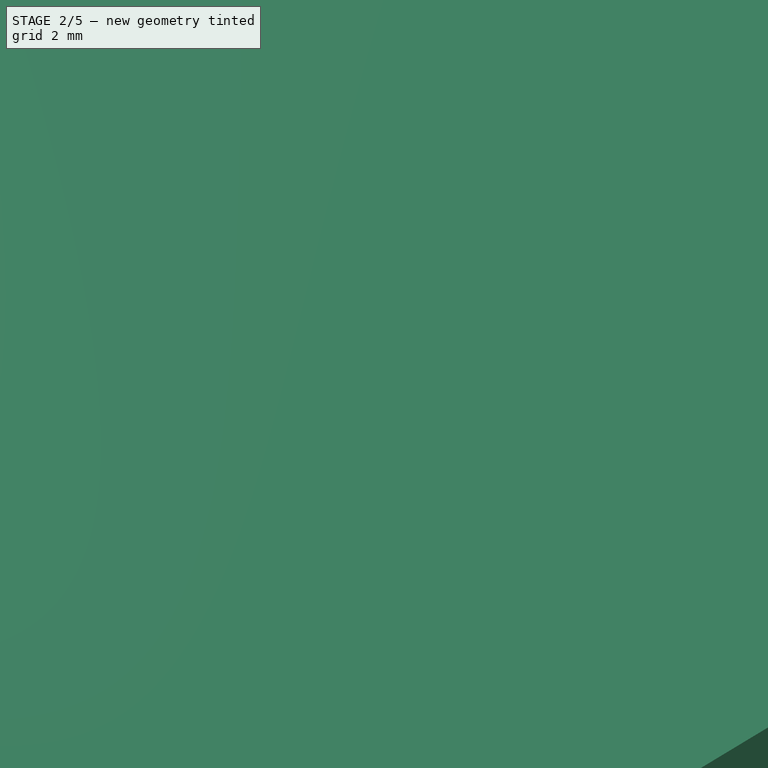
[diagram: stage 2 of 5 — iso view after this stage's code; geometry added in this stage tinted green]
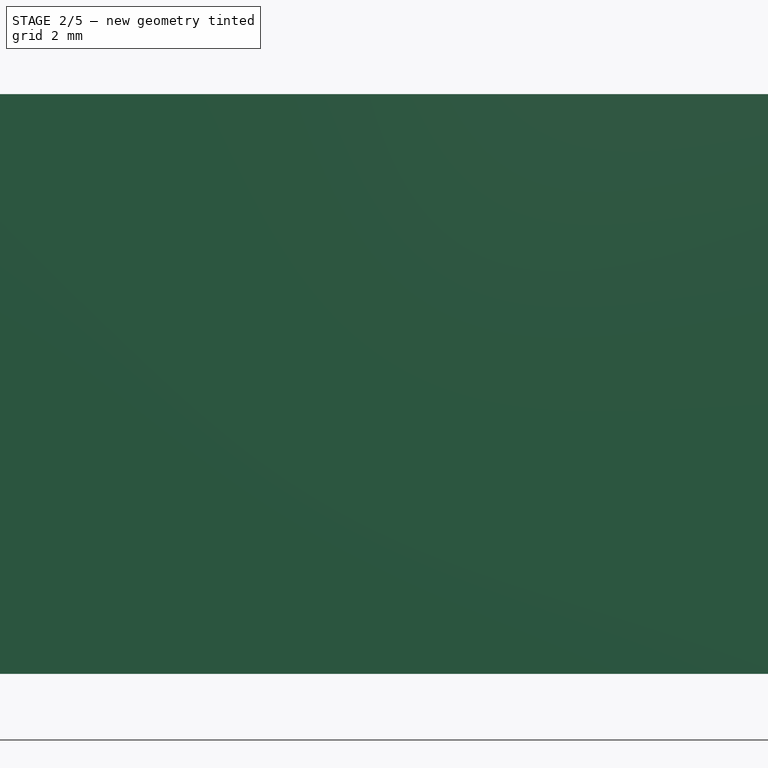
[diagram: stage 2 of 5 — front view after this stage's code; geometry added in this stage tinted green]
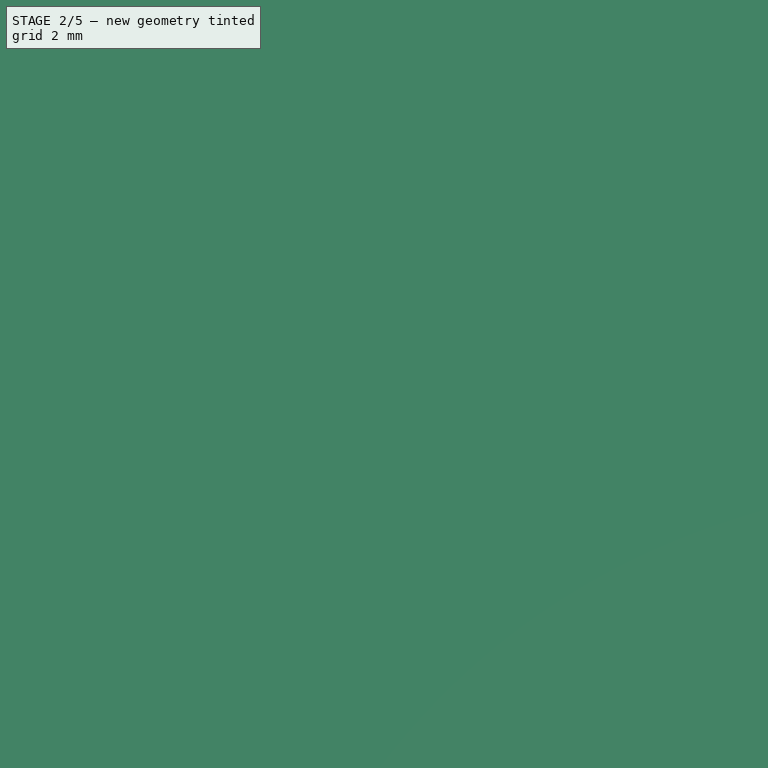
[diagram: stage 2 of 5 — top view after this stage's code; geometry added in this stage tinted green]
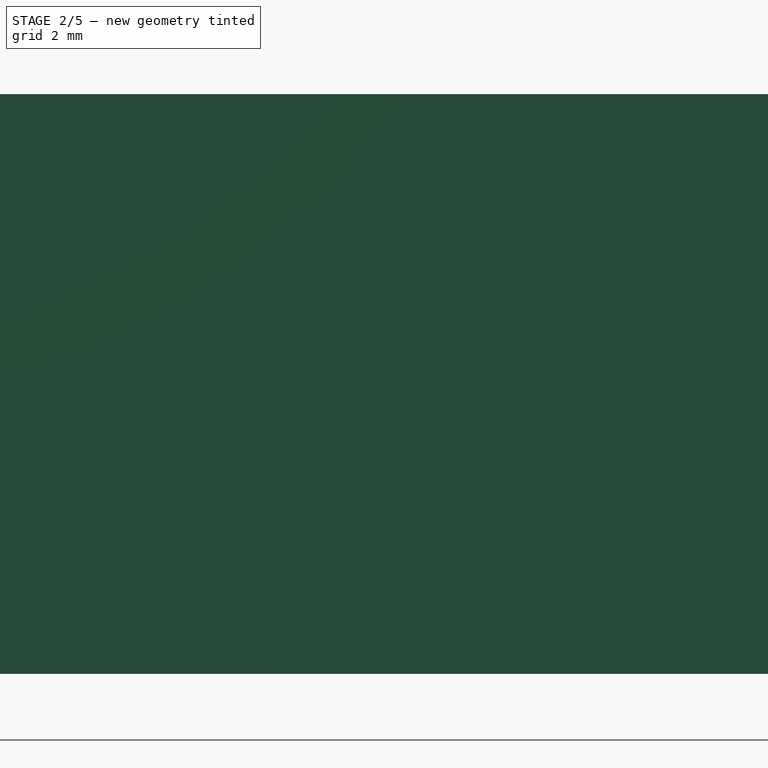
[diagram: stage 2 of 5 — right view after this stage's code; geometry added in this stage tinted green]
FEATURE [PartDesign::SubShapeBinder] Binder  label="TopOfBottomEnclosure"
  BindCopyOnChange = 0
  BindMode = 0
  ClaimChildren = false
  Context = -> Body001 [Binder.]
  Fuse = false
  MakeFace = true
  OffsetFill = false
  OffsetIntersection = false
  OffsetJoinType = 0
  OffsetOpenResult = false
  PartialLoad = false
  Refine = true
  Relative = true
  Support = -> [Body[Pocket006.Face42]]
  _Version = 2
FEATURE [PartDesign::Plane] DatumPlane
  AttachmentSupport = -> [Binder]
  Length = 163.569
  MapMode = 5
  ResizeMode = 0
  Width = 242.569
FEATURE [Sketcher::SketchObject] Sketch006
  ArcFitTolerance = 1e-06
  AttachmentSupport = -> [DatumPlane]
  ExternalGeometry = -> [Binder]
  FullyConstrained = true
  MakeInternals = false
  MapMode = 5
  expr: Constraints[20] = Spreadsheet.Box_Radius
  expr: Constraints[21] = Spreadsheet.Box_Radius
  expr: Constraints[22] = Spreadsheet.Box_Radius
  expr: Constraints[23] = Spreadsheet.Box_Radius
  sketch-geometry (12):
    g0: LineSegment StartX=54.5 StartY=-106 StartZ=0 EndX=54.5 EndY=-179.5 EndZ=0
    g1: LineSegment StartX=59.5 StartY=-184.5 StartZ=0 EndX=100.5 EndY=-184.5 EndZ=0
    g2: LineSegment StartX=105.5 StartY=-179.5 StartZ=0 EndX=105.5 EndY=-106 EndZ=0
    g3: LineSegment StartX=100.5 StartY=-101 StartZ=0 EndX=59.5 EndY=-101 EndZ=0
    g4: ArcOfCircle CenterX=59.5 CenterY=-106 CenterZ=0 NormalX=0 NormalY=0 NormalZ=1 AngleXU=0 Radius=5 StartAngle=1.5708 EndAngle=3.14159
    g5: GeomPoint [constr] X=54.5 Y=-101 Z=0
    g6: ArcOfCircle CenterX=100.5 CenterY=-106 CenterZ=0 NormalX=0 NormalY=0 NormalZ=1 AngleXU=0 Radius=5 StartAngle=1.2e-15 EndAngle=1.5708
    g7: GeomPoint [constr] X=105.5 Y=-101 Z=0
    g8: ArcOfCircle CenterX=100.5 CenterY=-179.5 CenterZ=0 NormalX=0 NormalY=0 NormalZ=1 AngleXU=0 Radius=5 StartAngle=4.71239 EndAngle=6.28319
    g9: GeomPoint [constr] X=105.5 Y=-184.5 Z=0
    g10: ArcOfCircle CenterX=59.5 CenterY=-179.5 CenterZ=0 NormalX=0 NormalY=0 NormalZ=1 AngleXU=0 Radius=5 StartAngle=3.14159 EndAngle=4.71239
    g11: GeomPoint [constr] X=54.5 Y=-184.5 Z=0
  constraints (26):
    c: Vertical(g0)
    c: Vertical(g2)
    c: Horizontal(g1)
    c: Horizontal(g3)
    c: PointOnObject(g5,g3)
    c: PointOnObject(g5,g0)
    c: Tangent(g3,g4) = -1.5708
    c: Tangent(g0,g4) = -1.5708
    c: PointOnObject(g7,g3)
    c: PointOnObject(g7,g2)
    c: Tangent(g3,g6) = -1.5708
    c: Tangent(g2,g6) = -1.5708
    c: PointOnObject(g9,g2)
    c: PointOnObject(g9,g1)
    c: Tangent(g2,g8) = -1.5708
    c: Tangent(g1,g8) = -1.5708
    c: PointOnObject(g11,g0)
    c: PointOnObject(g11,g1)
    c: Tangent(g0,g10) = -1.5708
    c: Tangent(g1,g10) = -1.5708
    c: Radius(g4) = 5
    c: Radius(g6) = 5
    c: Radius(g8) = 5
    c: Radius(g10) = 5
    c: Coincident(g0,g-3)
    c: Coincident(g2,g-5)
FEATURE [PartDesign::Pad] Pad002  label="MainExtrusion"
  Direction = (0,0,1)
  Length = 13
  Length2 = 10
  Profile = -> Sketch006
  ReferenceAxis = -> Sketch006 [N_Axis]
  Refine = true
  Suppressed = false
  Type = 0
FEATURE [Sketcher::SketchObject] Sketch015
  ArcFitTolerance = 1e-06
  AttachmentSupport = -> [Hole]
  ExternalGeometry = -> [Hole]
  FullyConstrained = true
  MakeInternals = false
  MapMode = 5
  Placement = pos=(0,-184.5,0) rot=(1,0,0;1.5708rad)
  expr: Constraints[6] = 17.6 + 1.65
  sketch-geometry (8):
    g0: LineSegment StartX=76.75 StartY=-1.8 StartZ=0 EndX=83.25 EndY=-1.8 EndZ=0
    g1: LineSegment StartX=86.25 StartY=1.2 StartZ=0 EndX=86.25 EndY=6.5 EndZ=0
    g2: LineSegment StartX=86.25 StartY=6.5 StartZ=0 EndX=73.75 EndY=6.5 EndZ=0
    g3: LineSegment StartX=73.75 StartY=6.5 StartZ=0 EndX=73.75 EndY=1.2 EndZ=0
    g4: ArcOfCircle CenterX=76.75 CenterY=1.2 CenterZ=0 NormalX=0 NormalY=0 NormalZ=1 AngleXU=0 Radius=3 StartAngle=3.14159 EndAngle=4.71239
    g5: GeomPoint [constr] X=73.75 Y=-1.8 Z=0
    g6: ArcOfCircle CenterX=83.25 CenterY=1.2 CenterZ=0 NormalX=0 NormalY=0 NormalZ=1 AngleXU=0 Radius=3 StartAngle=4.71239 EndAngle=6.28319
    g7: GeomPoint [constr] X=86.25 Y=-1.8 Z=0
  constraints (20):
    c: Coincident(g1,g2)
    c: Coincident(g2,g3)
    c: Horizontal(g0)
    c: Horizontal(g2)
    c: Vertical(g1)
    c: Vertical(g3)
    c: Distance(g-3,g3) = 19.25
    c: DistanceX(g2,g2) = 12.5
    c: PointOnObject(g5,g0)
    c: PointOnObject(g5,g3)
    c: Tangent(g0,g4) = -1.5708
    c: Tangent(g3,g4) = -1.5708
    c: PointOnObject(g7,g0)
    c: PointOnObject(g7,g1)
    c: Tangent(g0,g6) = -1.5708
    c: Tangent(g1,g6) = -1.5708
    c: Radius(g4) = 3
    c: Radius(g6) = 3
    c: Distance(g0,g-4) = 1.8
    c: Distance(g1,g2) = 5.3
FEATURE [PartDesign::Pocket] Pocket006  label="RecessUSB"
  BaseFeature = -> Hole
  Direction = (0,1,-2e-16)
  Length = 10
  Length2 = 5
  Profile = -> Sketch015
  ReferenceAxis = -> Sketch015 [N_Axis]
  Refine = true
  Suppressed = false
  Type = 0
FEATURE [PartDesign::Body] Body002  label="Button"
  AllowCompound = false
  Group = -> [Binder003,DatumPlane002,Sketch018,Pad005,Sketch019,Pad006]
  Origin = -> Origin088
  Tip = -> Pad006
FEATURE [Sketcher::SketchObject] Sketch020
  ArcFitTolerance = 1e-06
  AttachmentSupport = -> [Pad002]
  ExternalGeometry = -> [Binder]
  FullyConstrained = true
  MakeInternals = false
  MapMode = 5
  Placement = pos=(0,0,0) rot=(1,0,0;3.14159rad)
  expr: Constraints[16] = Spreadsheet.Gap_top_bottom
  expr: Constraints[17] = Spreadsheet.Gap_top_bottom
  expr: Constraints[18] = Spreadsheet.Gap_top_bottom
  expr: Constraints[19] = Spreadsheet.Gap_top_bottom
  expr: Constraints[20] = Spreadsheet.Gap_top_bottom
  expr: Constraints[21] = Spreadsheet.Gap_top_bottom
  expr: Constraints[22] = Spreadsheet.Gap_top_bottom
  expr: Constraints[23] = Spreadsheet.Gap_top_bottom
  sketch-geometry (8):
    g0: LineSegment StartX=58.25 StartY=181.75 StartZ=0 EndX=101.75 EndY=181.75 EndZ=0
    g1: LineSegment StartX=101.75 StartY=181.75 StartZ=0 EndX=101.75 EndY=108.75 EndZ=0
    g2: LineSegment StartX=101.75 StartY=108.75 StartZ=0 EndX=91.75 EndY=108.75 EndZ=0
    g3: LineSegment StartX=91.75 StartY=108.75 StartZ=0 EndX=91.75 EndY=102.25 EndZ=0
    g4: LineSegment StartX=91.75 StartY=102.25 StartZ=0 EndX=68.25 EndY=102.25 EndZ=0
    g5: LineSegment StartX=68.25 StartY=102.25 StartZ=0 EndX=68.25 EndY=108.75 EndZ=0
    g6: LineSegment StartX=68.25 StartY=108.75 StartZ=0 EndX=58.25 EndY=108.75 EndZ=0
    g7: LineSegment StartX=58.25 StartY=108.75 StartZ=0 EndX=58.25 EndY=181.75 EndZ=0
  constraints (24):
    c: Horizontal(g0)
    c: Coincident(g0,g1)
    c: Vertical(g1)
    c: Coincident(g1,g2)
    c: Horizontal(g2)
    c: Coincident(g2,g3)
    c: Vertical(g3)
    c: Coincident(g3,g4)
    c: Horizontal(g4)
    c: Coincident(g4,g5)
    c: Vertical(g5)
    c: Coincident(g5,g6)
    c: Horizontal(g6)
    c: Coincident(g6,g7)
    c: Coincident(g7,g0)
    c: Vertical(g7)
    c: Distance(g7,g-4) = 0.25
    c: Distance(g0,g-3) = 0.25
    c: Distance(g1,g-10) = 0.25
    c: Distance(g-9,g2) = 0.25
    c: Distance(g6,g-5) = 0.25
    c: Distance(g3,g-8) = 0.25
    c: Distance(g-6,g4) = 0.25
    c: Distance(g5,g-7) = 0.25
FEATURE [Spreadsheet::Sheet] Spreadsheet
  cells = A1='Box Radius; B1(Box_Radius)=5; C1='mm; A2='Gap PCB; B2(Gap_PCB)=0.5; C2='mm; A3='Screw foot size; B3(Screw_foot_size)=7; C3='mm; A4='Interlocking width; B4(Interlocking_width)=1; C4='mm; A6='Gap Enclosurfe top-bottom; B6(Gap_top_bottom)=0.25; C6='mm; A7='Width Padeyes; B7(Padeyes_width)=16; C7='mm; A8='Length Padeyes; B8(Padeyes_Length)=12; C8='mm; A11='Light Guide is a 12mm long of 1.75mm diameter translucent filament
FEATURE [PartDesign::Pocket] Pocket009  label="Recess"
  BaseFeature = -> Pad002
  Direction = (0,0,1)
  Length = 3
  Length2 = 5
  Profile = -> Sketch020
  ReferenceAxis = -> Sketch020 [N_Axis]
  Refine = true
  Suppressed = false
  Type = 0
FEATURE [PartDesign::Body] Body001  label="Enclosure_Top"
  AllowCompound = false
  Group = -> [Binder,DatumPlane,Sketch006,Pad002,Pocket009,Sketch020,Sketch008,Pocket003,Sketch009,Pad003,Sketch010,Hole001,Sketch011,Sketch012,Hole002,Hole003,Sketch013,Pocket004,Sketch014,Pocket005,Sketch016,Pad004,Sketch017,Pocket007,ShapeString,Pocket008,ShapeString001,Pocket012]
  Origin = -> Origin087
  Tip = -> Pocket012
FEATURE [PartDesign::CoordinateSystem] Local_CS_7e29
  AttacherType = Attacher::AttachEngine3D
  MapMode = 2
FEATURE [Part::Feature] Pcb_7e29
  shape: bbox 40 x 69.5 x 1.6 mm, 18 faces (baked)
FEATURE [Sketcher::SketchObject] PCB_Sketch_7e29
  ArcFitTolerance = 1e-06
  FullyConstrained = false
  MakeInternals = false
  sketch-geometry (4):
    g0: LineSegment StartX=60 StartY=-110.5 StartZ=0 EndX=100 EndY=-110.5 EndZ=0
    g1: LineSegment StartX=100 StartY=-110.5 StartZ=0 EndX=100 EndY=-180 EndZ=0
    g2: LineSegment StartX=100 StartY=-180 StartZ=0 EndX=60 EndY=-180 EndZ=0
    g3: LineSegment StartX=60 StartY=-180 StartZ=0 EndX=60 EndY=-110.5 EndZ=0
  constraints (4):
    c: Coincident(g2,g3)
    c: Coincident(g0,g3)
    c: Coincident(g1,g2)
    c: Coincident(g0,g1)
FEATURE [App::Part] Board_Geoms_7e29
  Group = -> [Pcb_7e29,PCB_Sketch_7e29]
  Origin = -> Origin091
FEATURE [Part::Feature] Shape012  label="C14_C_0805_2012Metric_51f50cf6ec6d"
  Placement = pos=(72.3,-163.3,0) rot=(0,0,1;0rad)
  shape: bbox 2 x 1.25 x 1.25 mm, 28 faces (baked)
FEATURE [App::Link] C14_C_0805_2012Metric_51f50cf6ec6d_ln_  label="C15_C_0805_2012Metric_dec6f251e066"
  LinkPlacement = pos=(95,-123.7,0) rot=(0,0,1;0rad)
  LinkedObject = -> Shape012
  Placement = pos=(95,-123.7,0) rot=(0,0,1;0rad)
FEATURE [Part::Feature] Shape013  label="R7_R_0805_2012Metric_c217393ab6f2"
  Placement = pos=(88.25,-132.25,0) rot=(0,0,1;0rad)
  shape: bbox 2 x 1.2 x 0.45 mm, 26 faces (baked)
FEATURE [App::Link] R7_R_0805_2012Metric_c217393ab6f2_ln_  label="R20_R_0805_2012Metric_88ff59375e60"
  LinkPlacement = pos=(80.1,-152.4,0) rot=(0,0,1;3.14159rad)
  LinkedObject = -> Shape013
  Placement = pos=(80.1,-152.4,0) rot=(0,0,1;3.14159rad)
FEATURE [App::Link] R7_R_0805_2012Metric_c217393ab6f2_ln_001  label="R1_R_0805_2012Metric_be8aef838a19"
  LinkPlacement = pos=(75.2,-143.2,0) rot=(0,0,1;0rad)
  LinkedObject = -> Shape013
  Placement = pos=(75.2,-143.2,0) rot=(0,0,1;0rad)
FEATURE [Part::Feature] Shape014  label="D7_D_0805_8f964424c3e7"
  Placement = pos=(98.5,-120,0) rot=(0,0,1;1.5708rad)
  shape: bbox 1.27 x 2 x 0.8 mm, 39 faces (baked)
FEATURE [Part::Feature] Part__Feature237  label="CUI_DEVICES_TS07-667-30-BK-100-SMT-TR007"
  shape: bbox 0.7 x 0.55 x 1.15 mm, 12 faces (baked)
FEATURE [Part::Feature] Part__Feature238  label="CUI_DEVICES_TS07-667-30-BK-100-SMT-TR008"
  shape: bbox 0.7 x 0.55 x 1.15 mm, 12 faces (baked)
FEATURE [Part::Feature] Part__Feature239  label="CUI_DEVICES_TS07-667-30-BK-100-SMT-TR009"
  shape: bbox 0.7 x 0.55 x 1.15 mm, 12 faces (baked)
FEATURE [Part::Feature] Part__Feature240  label="CUI_DEVICES_TS07-667-30-BK-100-SMT-TR010"
  shape: bbox 3.156 x 1.3 x 3.156 mm, 6 faces (baked)
FEATURE [Part::Feature] Part__Feature241  label="CUI_DEVICES_TS07-667-30-BK-100-SMT-TR011"
  shape: bbox 6.6 x 1.7 x 6.1 mm, 20 faces (baked)
FEATURE [Part::Feature] Part__Feature242  label="CUI_DEVICES_TS07-667-30-BK-100-SMT-TR012"
  shape: bbox 0.7 x 0.55 x 1.15 mm, 12 faces (baked)
FEATURE [Part::Feature] Part__Feature243  label="CUI_DEVICES_TS07-667-30-BK-100-SMT-TR013"
  shape: bbox 6.6 x 1.737 x 6 mm, 54 faces (baked)
FEATURE [App::Part] CUI_DEVICES_TS07_667_30_BK_100_SMT_TR001  label="S1_CUI_DEVICES_TS07-667-30-BK-100-SMT-TR007_9e3665fedac1"
  Group = -> [Part__Feature237,Part__Feature238,Part__Feature239,Part__Feature240,Part__Feature241,Part__Feature242,Part__Feature243]
  Origin = -> Origin094
  Placement = pos=(96,-131,0) rot=(0,0.707107,0.707107;3.14159rad)
FEATURE [App::Link] R7_R_0805_2012Metric_c217393ab6f2_ln_002  label="R14_R_0805_2012Metric_f274a7cd3c75"
  LinkPlacement = pos=(95,-121,0) rot=(0,0,1;3.14159rad)
  LinkedObject = -> Shape013
  Placement = pos=(95,-121,0) rot=(0,0,1;3.14159rad)
FEATURE [Part::Feature] Shape015  label="U1_SOIC-8_3.9x4.9mm_P1.27mm_ac4a64d83e30"
  Placement = pos=(82.8,-138.2,0) rot=(0,0,-1;1.5708rad)
  shape: bbox 4.9 x 6 x 1.75 mm, 147 faces (baked)
FEATURE [App::Link] C14_C_0805_2012Metric_51f50cf6ec6d_ln_001  label="C7_C_0805_2012Metric_f13bee61bc4e"
  LinkPlacement = pos=(66.4,-165,0) rot=(0,0,1;3.14159rad)
  LinkedObject = -> Shape012
  Placement = pos=(66.4,-165,0) rot=(0,0,1;3.14159rad)
FEATURE [App::Link] C14_C_0805_2012Metric_51f50cf6ec6d_ln_002  label="C2_C_0805_2012Metric_81c93c9b5d1e"
  LinkPlacement = pos=(77,-160.5,0) rot=(0,0,-1;1.5708rad)
  LinkedObject = -> Shape012
  Placement = pos=(77,-160.5,0) rot=(0,0,-1;1.5708rad)
FEATURE [Part::Feature] Shape016  label="D1_SOT-23_434494b41fe0"
  Placement = pos=(84.1,-145.3,0) rot=(0,0,1;0rad)
  shape: bbox 2.5 x 3 x 1.2 mm, 69 faces (baked)
FEATURE [App::Link] D7_D_0805_8f964424c3e7_ln_  label="D4_D_0805_a5ce9568b6cc"
  LinkPlacement = pos=(63,-135,0) rot=(0,0,1;1.5708rad)
  LinkedObject = -> Shape014
  Placement = pos=(63,-135,0) rot=(0,0,1;1.5708rad)
FEATURE [App::Link] R7_R_0805_2012Metric_c217393ab6f2_ln_003  label="R19_R_0805_2012Metric_b90bb3048013"
  LinkPlacement = pos=(95,-118.3,0) rot=(0,0,1;0rad)
  LinkedObject = -> Shape013
  Placement = pos=(95,-118.3,0) rot=(0,0,1;0rad)
FEATURE [App::Link] C14_C_0805_2012Metric_51f50cf6ec6d_ln_003  label="C8_C_0805_2012Metric_9e09df503139"
  LinkPlacement = pos=(66.3,-118.5,0) rot=(0,0,-1;1.5708rad)
  LinkedObject = -> Shape012
  Placement = pos=(66.3,-118.5,0) rot=(0,0,-1;1.5708rad)
FEATURE [App::Link] R7_R_0805_2012Metric_c217393ab6f2_ln_004  label="R22_R_0805_2012Metric_3828e46dc1a7"
  LinkPlacement = pos=(76.4,-165.2,0) rot=(0,0,1;0rad)
  LinkedObject = -> Shape013
  Placement = pos=(76.4,-165.2,0) rot=(0,0,1;0rad)
FEATURE [App::Link] C14_C_0805_2012Metric_51f50cf6ec6d_ln_004  label="C11_C_0805_2012Metric_5db40e5f6a9a"
  LinkPlacement = pos=(66.4,-149.3,0) rot=(0,0,1;3.14159rad)
  LinkedObject = -> Shape012
  Placement = pos=(66.4,-149.3,0) rot=(0,0,1;3.14159rad)
FEATURE [App::Link] R7_R_0805_2012Metric_c217393ab6f2_ln_005  label="R12_R_0805_2012Metric_ba6b49111ffa"
  LinkPlacement = pos=(66.3,-141.012,0) rot=(0,0,1;1.5708rad)
  LinkedObject = -> Shape013
  Placement = pos=(66.3,-141.012,0) rot=(0,0,1;1.5708rad)
FEATURE [App::Link] C14_C_0805_2012Metric_51f50cf6ec6d_ln_005  label="C13_C_0805_2012Metric_3a1d35432fd9"
  LinkPlacement = pos=(72.3,-166.7,0) rot=(0,0,1;0rad)
  LinkedObject = -> Shape012
  Placement = pos=(72.3,-166.7,0) rot=(0,0,1;0rad)
FEATURE [App::Link] D7_D_0805_8f964424c3e7_ln_001  label="D2_D_0805_75d4301a98cc"
  LinkPlacement = pos=(63,-141,0) rot=(0,0,1;1.5708rad)
  LinkedObject = -> Shape014
  Placement = pos=(63,-141,0) rot=(0,0,1;1.5708rad)
FEATURE [Part::Feature] Part__Feature244  label="SOT457 Lower body"
  Placement = pos=(-0.0940918,1.8657,1.33195) rot=(1,0,0;3.14159rad)
  shape: bbox 2.95 x 0.551 x 1.7 mm, 24 faces (baked)
FEATURE [Part::Feature] Part__Feature245  label="SOT457 Lead"
  Placement = pos=(0.270908,1.2607,3.50695) rot=(0,1,0;1.5708rad)
  shape: bbox 0.32 x 0.735 x 0.7856 mm, 14 faces (baked)
FEATURE [Part::Feature] Part__Feature246  label="SOT457 Lead001"
  Placement = pos=(1.22091,1.2607,3.50695) rot=(0,1,0;1.5708rad)
  shape: bbox 0.32 x 0.735 x 0.7856 mm, 14 faces (baked)
FEATURE [Part::Feature] Part__Feature247  label="SOT457 Lead002"
  Placement = pos=(2.17091,1.2607,3.50695) rot=(0,1,0;1.5708rad)
  shape: bbox 0.32 x 0.735 x 0.7856 mm, 14 faces (baked)
FEATURE [Part::Feature] Part__Feature248  label="SOT457 Lead003"
  Placement = pos=(0.590908,1.2607,0.756954) rot=(0,-1,0;1.5708rad)
  shape: bbox 0.32 x 0.735 x 0.7856 mm, 14 faces (baked)
FEATURE [Part::Feature] Part__Feature249  label="SOT457 Lead004"
  Placement = pos=(1.54091,1.2607,0.756954) rot=(0,-1,0;1.5708rad)
  shape: bbox 0.32 x 0.735 x 0.7856 mm, 14 faces (baked)
FEATURE [Part::Feature] Part__Feature250  label="SOT457 Lead005"
  Placement = pos=(2.49091,1.2607,0.756954) rot=(0,-1,0;1.5708rad)
  shape: bbox 0.32 x 0.735 x 0.7856 mm, 14 faces (baked)
FEATURE [Part::Feature] Part__Feature251  label="SOT457 Upper body"
  Placement = pos=(-0.0840918,1.8657,2.90195) rot=(0,0,1;0rad)
  shape: bbox 2.93 x 0.401 x 1.54 mm, 72 faces (baked)
FEATURE [App::Part] SOT457_step  label="D5_SOT457 step_f8e20935915e"
  Group = -> [Part__Feature244,Part__Feature245,Part__Feature246,Part__Feature247,Part__Feature248,Part__Feature249,Part__Feature250,Part__Feature251]
  Origin = -> Origin095
  Placement = pos=(72.05,-169.15,-1.3) rot=(0.57735,-0.57735,-0.57735;2.0944rad)
FEATURE [App::Link] R7_R_0805_2012Metric_c217393ab6f2_ln_006  label="R8_R_0805_2012Metric_4ca3ea36af32"
  LinkPlacement = pos=(78.25,-132.25,0) rot=(0,0,1;3.14159rad)
  LinkedObject = -> Shape013
  Placement = pos=(78.25,-132.25,0) rot=(0,0,1;3.14159rad)
FEATURE [App::Link] R7_R_0805_2012Metric_c217393ab6f2_ln_007  label="R24_R_0805_2012Metric_26110ee15cb3"
  LinkPlacement = pos=(80,-167,0) rot=(0,0,-1;1.5708rad)
  LinkedObject = -> Shape013
  Placement = pos=(80,-167,0) rot=(0,0,-1;1.5708rad)
FEATURE [App::Link] R7_R_0805_2012Metric_c217393ab6f2_ln_008  label="R18_R_0805_2012Metric_5c1f4ce8fc44"
  LinkPlacement = pos=(64,-127.7,0) rot=(0,0,1;3.14159rad)
  LinkedObject = -> Shape013
  Placement = pos=(64,-127.7,0) rot=(0,0,1;3.14159rad)
FEATURE [App::Link] D1_SOT_23_434494b41fe0_ln_  label="D9_SOT-23_53a32c7d292a"
  LinkPlacement = pos=(84.4,-168.4,0) rot=(0,0,1;0rad)
  LinkedObject = -> Shape016
  Placement = pos=(84.4,-168.4,0) rot=(0,0,1;0rad)
FEATURE [Part::Feature] Shape017  label="D3_D_SOD-123_347131e4dd7b"
  Placement = pos=(65.5,-169.9,0) rot=(0,0,-1;1.5708rad)
  shape: bbox 1.6 x 3.8 x 1.26 mm, 59 faces (baked)
FEATURE [App::Link] R7_R_0805_2012Metric_c217393ab6f2_ln_009  label="R9_R_0805_2012Metric_90252b5f83a6"
  LinkPlacement = pos=(88.25,-135.75,0) rot=(0,0,1;0rad)
  LinkedObject = -> Shape013
  Placement = pos=(88.25,-135.75,0) rot=(0,0,1;0rad)
FEATURE [App::Link] C14_C_0805_2012Metric_51f50cf6ec6d_ln_006  label="C12_C_0805_2012Metric_4b53ef4863ea"
  LinkPlacement = pos=(66.4,-152.3,0) rot=(0,0,1;3.14159rad)
  LinkedObject = -> Shape012
  Placement = pos=(66.4,-152.3,0) rot=(0,0,1;3.14159rad)
FEATURE [App::Link] R7_R_0805_2012Metric_c217393ab6f2_ln_010  label="R10_R_0805_2012Metric_cf6f4083883a"
  LinkPlacement = pos=(84,-152.4,0) rot=(0,0,1;0rad)
  LinkedObject = -> Shape013
  Placement = pos=(84,-152.4,0) rot=(0,0,1;0rad)
FEATURE [App::Link] D7_D_0805_8f964424c3e7_ln_002  label="D6_D_0805_b893de27c0d7"
  LinkPlacement = pos=(63,-131,0) rot=(0,0,1;1.5708rad)
  LinkedObject = -> Shape014
  Placement = pos=(63,-131,0) rot=(0,0,1;1.5708rad)
FEATURE [App::Link] C14_C_0805_2012Metric_51f50cf6ec6d_ln_007  label="C1_C_0805_2012Metric_4c2b13ead2bb"
  LinkPlacement = pos=(78.25,-140,0) rot=(0,0,-1;1.5708rad)
  LinkedObject = -> Shape012
  Placement = pos=(78.25,-140,0) rot=(0,0,-1;1.5708rad)
FEATURE [App::Link] R7_R_0805_2012Metric_c217393ab6f2_ln_011  label="R21_R_0805_2012Metric_271bf007e513"
  LinkPlacement = pos=(80.1,-149.5,0) rot=(0,0,1;0rad)
  LinkedObject = -> Shape013
  Placement = pos=(80.1,-149.5,0) rot=(0,0,1;0rad)
FEATURE [App::Link] C14_C_0805_2012Metric_51f50cf6ec6d_ln_008  label="C10_C_0805_2012Metric_750be652bae5"
  LinkPlacement = pos=(64,-125,0) rot=(0,0,1;3.14159rad)
  LinkedObject = -> Shape012
  Placement = pos=(64,-125,0) rot=(0,0,1;3.14159rad)
FEATURE [Part::Feature] Part__Feature252  label="2023_04_13_04_26_59_0768"
  shape: bbox 0.75 x 0.68 x 5.8 mm, 40 faces (baked)
FEATURE [Part::Feature] Part__Feature253  label="2023_04_13_04_26_59_0752"
  shape: bbox 0.75 x 0.68 x 5.8 mm, 40 faces (baked)
FEATURE [Part::Feature] Part__Feature254  label="2023_04_13_04_26_59_0737"
  shape: bbox 1.5 x 12 x 11.5 mm, 111 faces (baked)
FEATURE [Part::Feature] Part__Feature255  label="2023_04_13_04_26_59_0721"
  shape: bbox 0.75 x 0.68 x 5.8 mm, 40 faces (baked)
FEATURE [Part::Feature] Part__Feature256  label="2023_04_13_04_26_59_0706"
  shape: bbox 4.9 x 12 x 13.1 mm, 124 faces (baked)
FEATURE [Part::Feature] Part__Feature257  label="2023_04_13_04_26_59_0690"
  shape: bbox 4.9 x 12 x 13.1 mm, 124 faces (baked)
FEATURE [Part::Feature] Part__Feature258  label="2023_04_13_04_26_59_0674"
  shape: bbox 4.9 x 12 x 13.1 mm, 124 faces (baked)
FEATURE [App::Part] _023_04_13_04_26_59_0440  label="J3_2023_04_13_04_26_59_0440_17e25b5f1c7e"
  Group = -> [Part__Feature252,Part__Feature253,Part__Feature254,Part__Feature255,Part__Feature256,Part__Feature257,Part__Feature258]
  Origin = -> Origin096
  Placement = pos=(100,-150.5,0.02) rot=(0,0,1;1.5708rad)
FEATURE [App::Link] D7_D_0805_8f964424c3e7_ln_003  label="D8_D_0805_4afb44264c52"
  LinkPlacement = pos=(63,-145,0) rot=(0,0,1;1.5708rad)
  LinkedObject = -> Shape014
  Placement = pos=(63,-145,0) rot=(0,0,1;1.5708rad)
FEATURE [App::Link] U1_SOIC_8_3_9x4_9mm_P1_27mm_ac4a64d83e30_ln_  label="U2_SOIC-8_3.9x4.9mm_P1.27mm_e939e66b1c27"
  LinkPlacement = pos=(81.6,-159,0) rot=(0,0,-1;1.5708rad)
  LinkedObject = -> Shape015
  Placement = pos=(81.6,-159,0) rot=(0,0,-1;1.5708rad)
FEATURE [Part::Feature] Shape018  label="U5_SOT-223_9ef97388665a"
  Placement = pos=(69,-158,0) rot=(0,0,1;3.14159rad)
  shape: bbox 7 x 6.5 x 1.7 mm, 75 faces (baked)
FEATURE [App::Link] R7_R_0805_2012Metric_c217393ab6f2_ln_012  label="R13_R_0805_2012Metric_e2dab0e20b1c"
  LinkPlacement = pos=(66.3,-145,0) rot=(0,0,1;1.5708rad)
  LinkedObject = -> Shape013
  Placement = pos=(66.3,-145,0) rot=(0,0,1;1.5708rad)
FEATURE [App::Link] R7_R_0805_2012Metric_c217393ab6f2_ln_013  label="R6_R_0805_2012Metric_1771d8ce02e9"
  LinkPlacement = pos=(82.75,-132.25,0) rot=(0,0,1;3.14159rad)
  LinkedObject = -> Shape013
  Placement = pos=(82.75,-132.25,0) rot=(0,0,1;3.14159rad)
FEATURE [App::Link] R7_R_0805_2012Metric_c217393ab6f2_ln_014  label="R2_R_0805_2012Metric_c8bd415eab59"
  LinkPlacement = pos=(75.2,-146.5,0) rot=(0,0,1;3.14159rad)
  LinkedObject = -> Shape013
  Placement = pos=(75.2,-146.5,0) rot=(0,0,1;3.14159rad)
FEATURE [App::Link] R7_R_0805_2012Metric_c217393ab6f2_ln_015  label="R11_R_0805_2012Metric_72500e347846"
  LinkPlacement = pos=(84,-149.5,0) rot=(0,0,1;0rad)
  LinkedObject = -> Shape013
  Placement = pos=(84,-149.5,0) rot=(0,0,1;0rad)
FEATURE [App::Link] R7_R_0805_2012Metric_c217393ab6f2_ln_016  label="R23_R_0805_2012Metric_1bb3a5392297"
  LinkPlacement = pos=(76.4,-167.8,0) rot=(0,0,1;3.14159rad)
  LinkedObject = -> Shape013
  Placement = pos=(76.4,-167.8,0) rot=(0,0,1;3.14159rad)
FEATURE [Part::Feature] Part__Feature259  label="USB4110-GF-A_revB(1) MF001"
  Placement = pos=(-6.27e-14,0,6.28) rot=(0,0,1;0rad)
  shape: bbox 11.3 x 3.89 x 7.705 mm, 813 faces (baked)
FEATURE [App::Part] USB4110_GF_A_revB001  label="J5_USB4110-GF-A_revB_7088c9166fdc001"
  Group = -> [Part__Feature259]
  Origin = -> Origin097
  Placement = pos=(80,-175,0) rot=(1,0,0;1.5708rad)
FEATURE [App::Link] R7_R_0805_2012Metric_c217393ab6f2_ln_017  label="R16_R_0805_2012Metric_924f4d34cecc"
  LinkPlacement = pos=(70.8,-177,0) rot=(0,0,1;1.5708rad)
  LinkedObject = -> Shape013
  Placement = pos=(70.8,-177,0) rot=(0,0,1;1.5708rad)
FEATURE [App::Link] R7_R_0805_2012Metric_c217393ab6f2_ln_018  label="R5_R_0805_2012Metric_fcbddcbb2019"
  LinkPlacement = pos=(66.3,-132.7,0) rot=(0,0,1;1.5708rad)
  LinkedObject = -> Shape013
  Placement = pos=(66.3,-132.7,0) rot=(0,0,1;1.5708rad)
FEATURE [Part::Feature] Part__Feature260  label="ESP32-C6-WROOM-1-N8"
  shape: bbox 16.01 x 17.61 x 2.31 mm, 1854 faces (baked)
FEATURE [Part::Feature] Part__Feature261  label="ESP32-C6-WROOM-1-N009"
  shape: bbox 18.02 x 25.5 x 0.82 mm, 434 faces (baked)
FEATURE [App::Part] ESP32_C6_WROOM_1_N8  label="U4_ESP32-C6-WROOM-1-N010_762dbc46974d"
  Group = -> [Part__Feature260,Part__Feature261]
  Origin = -> Origin098
  Placement = pos=(80,-117,0) rot=(0,0,1;0rad)
FEATURE [App::Link] R7_R_0805_2012Metric_c217393ab6f2_ln_019  label="R15_R_0805_2012Metric_d5d251a777de"
  LinkPlacement = pos=(88.8,-177,0) rot=(0,0,1;1.5708rad)
  LinkedObject = -> Shape013
  Placement = pos=(88.8,-177,0) rot=(0,0,1;1.5708rad)
FEATURE [App::Link] C14_C_0805_2012Metric_51f50cf6ec6d_ln_009  label="C9_C_0805_2012Metric_ef0f9afbf2f2"
  LinkPlacement = pos=(67.9,-114,0) rot=(0,0,-1;1.5708rad)
  LinkedObject = -> Shape012
  Placement = pos=(67.9,-114,0) rot=(0,0,-1;1.5708rad)
FEATURE [App::Link] R7_R_0805_2012Metric_c217393ab6f2_ln_020  label="R4_R_0805_2012Metric_53f7bf467440"
  LinkPlacement = pos=(66.3,-136.8,0) rot=(0,0,-1;1.5708rad)
  LinkedObject = -> Shape013
  Placement = pos=(66.3,-136.8,0) rot=(0,0,-1;1.5708rad)
FEATURE [App::Link] R7_R_0805_2012Metric_c217393ab6f2_ln_021  label="R17_R_0805_2012Metric_7150f720523c"
  LinkPlacement = pos=(64,-122.4,0) rot=(0,0,1;3.14159rad)
  LinkedObject = -> Shape013
  Placement = pos=(64,-122.4,0) rot=(0,0,1;3.14159rad)
FEATURE [App::Link] J3_2023_04_13_04_26_59_0440_17e25b5f1c7e_ln_  label="J1_2023_04_13_04_26_59_0440_9ece35a879f9"
  LinkPlacement = pos=(100,-168.5,0.02) rot=(0,0,1;1.5708rad)
  LinkedObject = -> _023_04_13_04_26_59_0440
  Placement = pos=(100,-168.5,0.02) rot=(0,0,1;1.5708rad)
FEATURE [App::Link] R7_R_0805_2012Metric_c217393ab6f2_ln_022  label="R3_R_0805_2012Metric_924cf9a1824c"
  LinkPlacement = pos=(79.5,-145,0) rot=(0,0,-1;1.5708rad)
  LinkedObject = -> Shape013
  Placement = pos=(79.5,-145,0) rot=(0,0,-1;1.5708rad)
FEATURE [App::Part] Top_7e29
  Group = -> [Shape012,C14_C_0805_2012Metric_51f50cf6ec6d_ln_,Shape013,R7_R_0805_2012Metric_c217393ab6f2_ln_,R7_R_0805_2012Metric_c217393ab6f2_ln_001,Shape014,CUI_DEVICES_TS07_667_30_BK_100_SMT_TR001,R7_R_0805_2012Metric_c217393ab6f2_ln_002,Shape015,C14_C_0805_2012Metric_51f50cf6ec6d_ln_001,C14_C_0805_2012Metric_51f50cf6ec6d_ln_002,Shape016,D7_D_0805_8f964424c3e7_ln_,R7_R_0805_2012Metric_c217393ab6f2_ln_003,+38 more]
  Origin = -> Origin093
FEATURE [App::Part] Step_Models_7e29
  Group = -> [Top_7e29]
  Origin = -> Origin092
FEATURE [App::Part] Board_7e29  label="zVMC_PCB"
  Group = -> [Local_CS_7e29,Board_Geoms_7e29,Step_Models_7e29]
  Origin = -> Origin090
FEATURE [Sketcher::SketchObject] Sketch026
  ArcFitTolerance = 1e-06
  AttachmentSupport = -> [Pocket006]
  ExternalGeometry = -> [Pocket006]
  FullyConstrained = true
  MakeInternals = false
  MapMode = 5
  Placement = pos=(0,0,-5) rot=(0,0,1;0rad)
  sketch-geometry (2):
    g0: Circle CenterX=80 CenterY=-133.5 CenterZ=0 NormalX=0 NormalY=0 NormalZ=1 AngleXU=0 Radius=9
    g1: Circle CenterX=80 CenterY=-163.5 CenterZ=0 NormalX=0 NormalY=0 NormalZ=1 AngleXU=0 Radius=9
  constraints (6):
    c: Diameter(g0) = 18
    c: Diameter(g1) = 18
    c: Vertical(g0,g1)
    c: Distance(g0,g-5) = 20.5
    c: DistanceY(g1,g0) = 30
    c: Distance(g0,g-4) = 30
FEATURE [PartDesign::Pocket] Pocket013  label="Magnet recess"
  BaseFeature = -> Pocket006
  Direction = (0,0,-1)
  Length = 4
  Length2 = 5
  Profile = -> Sketch026
  ReferenceAxis = -> Sketch026 [N_Axis]
  Refine = true
  Suppressed = false
  Type = 0
FEATURE [PartDesign::Body] Body  label="Enclosure_bottom"
  AllowCompound = false
  Group = -> [Binder002,DatumPlane001,Sketch001,Pad,Sketch,Pocket,Sketch002,Pocket001,Sketch004,Pad001,Sketch005,Hole,Sketch015,Pocket006,Sketch026,Pocket013]
  Origin = -> Origin086
  Tip = -> Pocket013
note: 2 file-system paths scrubbed to <path> (originals preserved in the JSON sidecar)
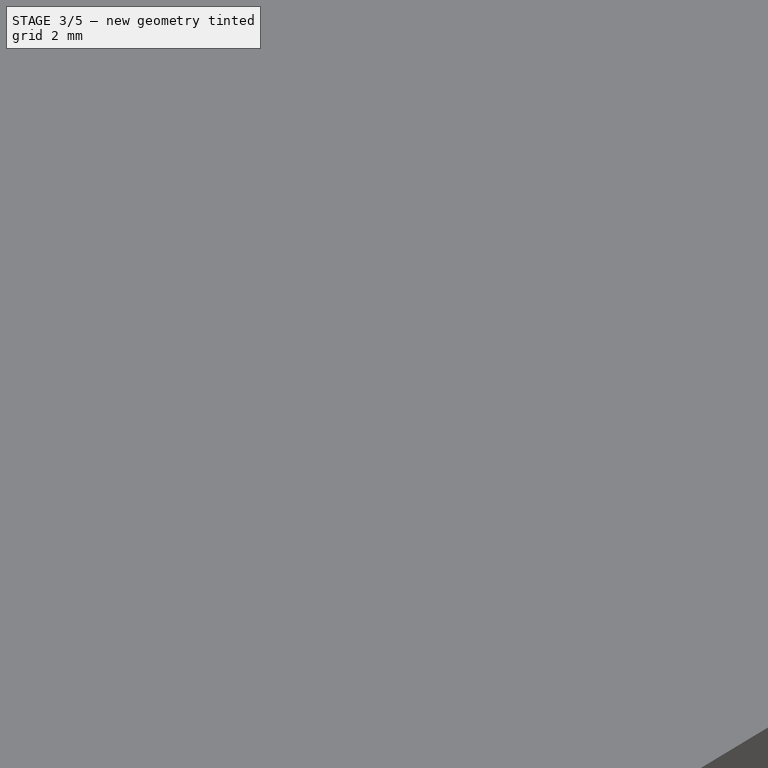
[diagram: stage 3 of 5 — iso view after this stage's code; geometry added in this stage tinted green]
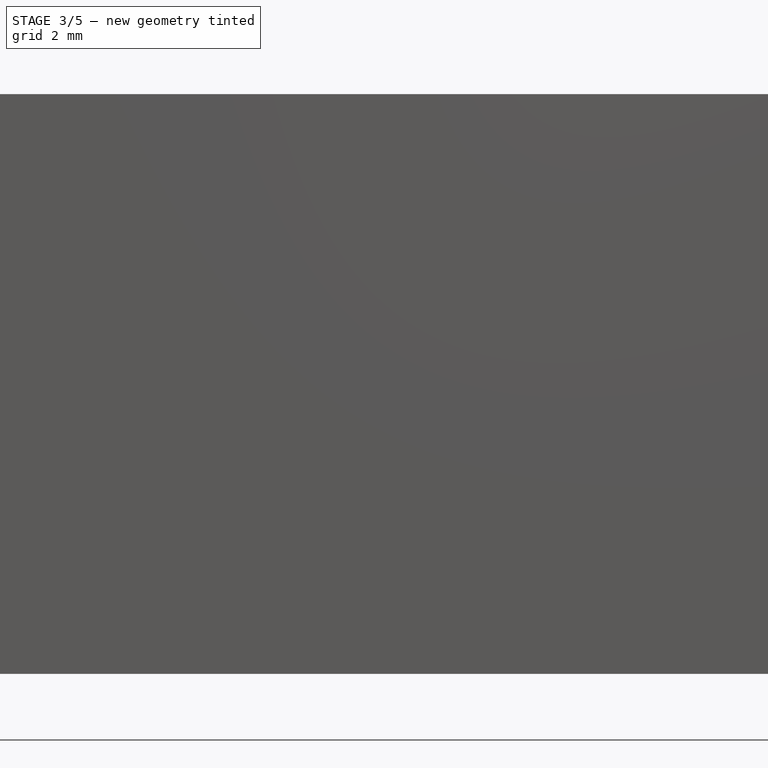
[diagram: stage 3 of 5 — front view after this stage's code; geometry added in this stage tinted green]
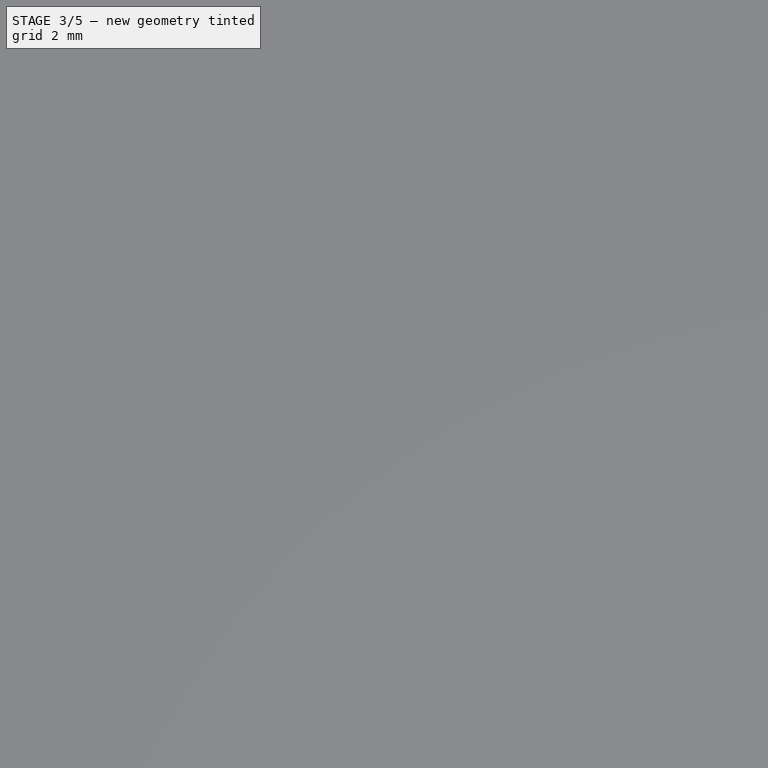
[diagram: stage 3 of 5 — top view after this stage's code; geometry added in this stage tinted green]
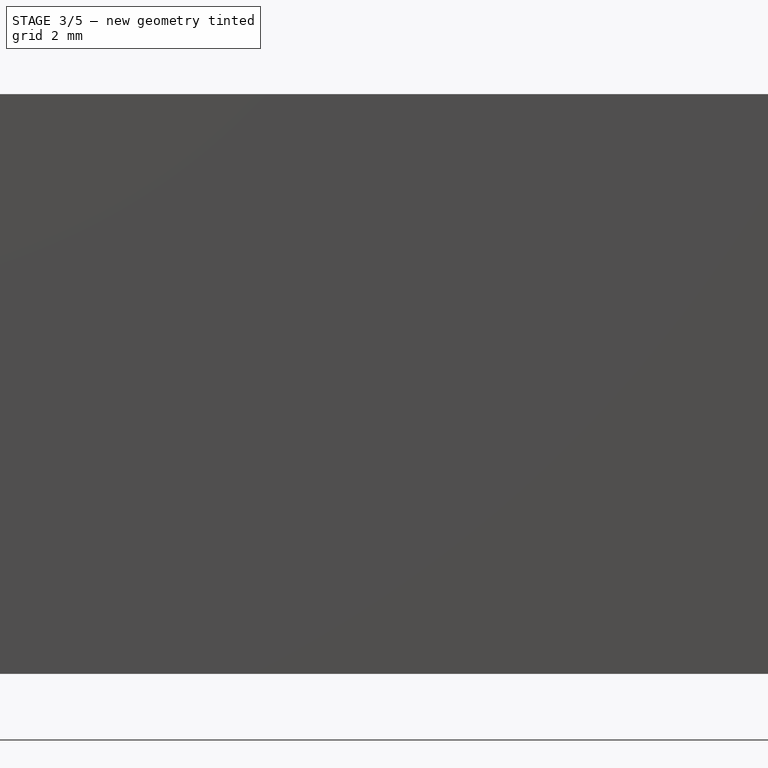
[diagram: stage 3 of 5 — right view after this stage's code; geometry added in this stage tinted green]
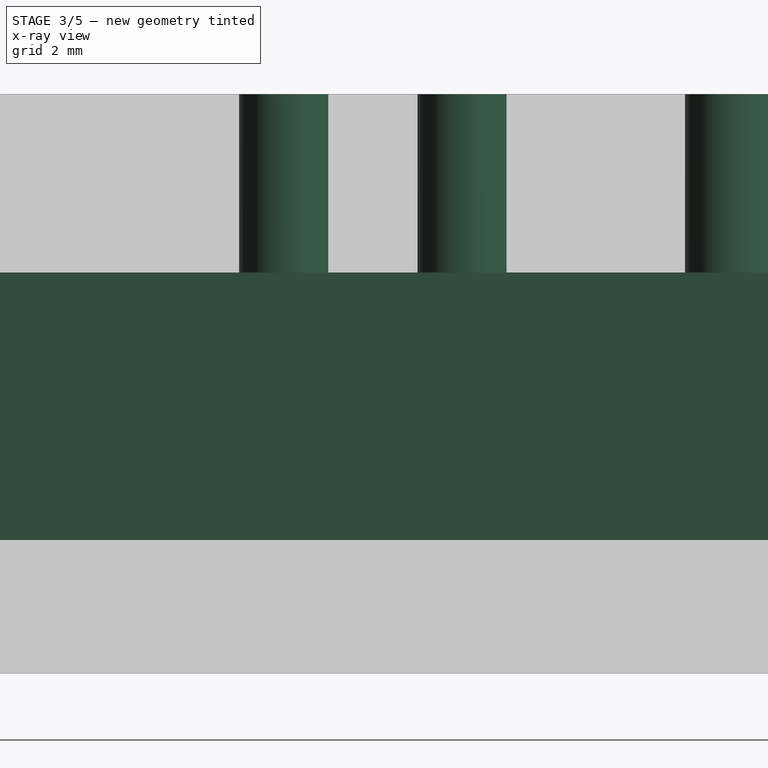
[diagram: stage 3 of 5 — x-ray composite at the right view; earlier geometry ghosted, this stage's added geometry solid]
FEATURE [Sketcher::SketchObject] Sketch008
  ArcFitTolerance = 1e-06
  AttachmentSupport = -> [Binder]
  ExternalGeometry = -> [Pocket009]
  FullyConstrained = true
  MakeInternals = false
  MapMode = 5
  sketch-geometry (8):
    g0: LineSegment StartX=59.75 StartY=-110.25 StartZ=0 EndX=59.75 EndY=-180.25 EndZ=0
    g1: LineSegment StartX=59.75 StartY=-180.25 StartZ=0 EndX=100.25 EndY=-180.25 EndZ=0
    g2: LineSegment StartX=100.25 StartY=-180.25 StartZ=0 EndX=100.25 EndY=-110.25 EndZ=0
    g3: LineSegment StartX=100.25 StartY=-110.25 StartZ=0 EndX=90.5 EndY=-110.25 EndZ=0
    g4: LineSegment StartX=90.5 StartY=-110.25 StartZ=0 EndX=90.5 EndY=-103.25 EndZ=0
    g5: LineSegment StartX=90.5 StartY=-103.25 StartZ=0 EndX=69.5 EndY=-103.25 EndZ=0
    g6: LineSegment StartX=69.5 StartY=-103.25 StartZ=0 EndX=69.5 EndY=-110.25 EndZ=0
    g7: LineSegment StartX=69.5 StartY=-110.25 StartZ=0 EndX=59.75 EndY=-110.25 EndZ=0
  constraints (24):
    c: Vertical(g0)
    c: Coincident(g0,g1)
    c: Horizontal(g1)
    c: Coincident(g1,g2)
    c: Vertical(g2)
    c: Coincident(g2,g3)
    c: Horizontal(g3)
    c: Coincident(g3,g4)
    c: Vertical(g4)
    c: Coincident(g4,g5)
    c: Horizontal(g5)
    c: Coincident(g5,g6)
    c: Vertical(g6)
    c: Coincident(g6,g7)
    c: Coincident(g7,g0)
    c: Horizontal(g7)
    c: Distance(g4,g4) = 7
    c: Distance(g-3,g0) = 5.25
    c: Distance(g1,g-4) = 4.25
    c: Distance(g-5,g2) = 5.25
    c: Distance(g-6,g7) = 9.25
    c: Distance(g-3,g6) = 15
    c: Distance(g-5,g4) = 15
    c: Distance(g3,g-6) = 9.25
FEATURE [PartDesign::Pocket] Pocket003  label="RecessFull"
  BaseFeature = -> Pocket009
  Direction = (0,0,-1)
  Length = 9
  Length2 = 5
  Profile = -> Sketch008
  ReferenceAxis = -> Sketch008 [N_Axis]
  Refine = true
  Reversed = true
  Suppressed = false
  Type = 0
FEATURE [Sketcher::SketchObject] Sketch009
  ArcFitTolerance = 1e-06
  AttachmentSupport = -> [Pocket003]
  ExternalGeometry = -> [Pocket003]
  FullyConstrained = true
  MakeInternals = false
  MapMode = 5
  Placement = pos=(0,0,9) rot=(1,0,0;3.14159rad)
  expr: Constraints[32] = Spreadsheet.Screw_foot_size - Spreadsheet.Gap_top_bottom
  expr: Constraints[33] = Spreadsheet.Screw_foot_size - Spreadsheet.Gap_top_bottom
  expr: Constraints[34] = Spreadsheet.Screw_foot_size - Spreadsheet.Gap_top_bottom
  expr: Constraints[35] = Spreadsheet.Screw_foot_size - Spreadsheet.Gap_top_bottom
  expr: Constraints[36] = Spreadsheet.Screw_foot_size - Spreadsheet.Gap_top_bottom
  expr: Constraints[37] = Spreadsheet.Screw_foot_size - Spreadsheet.Gap_top_bottom
  expr: Constraints[38] = Spreadsheet.Screw_foot_size - Spreadsheet.Gap_top_bottom
  expr: Constraints[39] = Spreadsheet.Screw_foot_size - Spreadsheet.Gap_top_bottom
  sketch-geometry (16):
    g0: LineSegment StartX=59.75 StartY=110.25 StartZ=0 EndX=66.5 EndY=110.25 EndZ=0
    g1: LineSegment StartX=66.5 StartY=110.25 StartZ=0 EndX=66.5 EndY=117 EndZ=0
    g2: LineSegment StartX=66.5 StartY=117 StartZ=0 EndX=59.75 EndY=117 EndZ=0
    g3: LineSegment StartX=59.75 StartY=117 StartZ=0 EndX=59.75 EndY=110.25 EndZ=0
    g4: LineSegment StartX=100.25 StartY=110.25 StartZ=0 EndX=100.25 EndY=117 EndZ=0
    g5: LineSegment StartX=100.25 StartY=117 StartZ=0 EndX=93.5 EndY=117 EndZ=0
    g6: LineSegment StartX=93.5 StartY=117 StartZ=0 EndX=93.5 EndY=110.25 EndZ=0
    g7: LineSegment StartX=93.5 StartY=110.25 StartZ=0 EndX=100.25 EndY=110.25 EndZ=0
    g8: LineSegment StartX=59.75 StartY=180.25 StartZ=0 EndX=59.75 EndY=173.5 EndZ=0
    g9: LineSegment StartX=59.75 StartY=173.5 StartZ=0 EndX=66.5 EndY=173.5 EndZ=0
    g10: LineSegment StartX=66.5 StartY=173.5 StartZ=0 EndX=66.5 EndY=180.25 EndZ=0
    g11: LineSegment StartX=66.5 StartY=180.25 StartZ=0 EndX=59.75 EndY=180.25 EndZ=0
    g12: LineSegment StartX=100.25 StartY=180.25 StartZ=0 EndX=93.5 EndY=180.25 EndZ=0
    g13: LineSegment StartX=93.5 StartY=180.25 StartZ=0 EndX=93.5 EndY=173.5 EndZ=0
    g14: LineSegment StartX=93.5 StartY=173.5 StartZ=0 EndX=100.25 EndY=173.5 EndZ=0
    g15: LineSegment StartX=100.25 StartY=173.5 StartZ=0 EndX=100.25 EndY=180.25 EndZ=0
  constraints (44):
    c: Coincident(g0,g1)
    c: Coincident(g1,g2)
    c: Coincident(g2,g3)
    c: Coincident(g3,g0)
    c: Horizontal(g0)
    c: Horizontal(g2)
    c: Vertical(g1)
    c: Vertical(g3)
    c: Coincident(g4,g5)
    c: Coincident(g5,g6)
    c: Coincident(g6,g7)
    c: Coincident(g7,g4)
    c: Vertical(g4)
    c: Vertical(g6)
    c: Horizontal(g5)
    c: Horizontal(g7)
    c: Coincident(g8,g9)
    c: Coincident(g9,g10)
    c: Coincident(g10,g11)
    c: Coincident(g11,g8)
    c: Vertical(g8)
    c: Vertical(g10)
    c: Horizontal(g9)
    c: Horizontal(g11)
    c: Coincident(g12,g13)
    c: Coincident(g13,g14)
    c: Coincident(g14,g15)
    c: Coincident(g15,g12)
    c: Horizontal(g12)
    c: Horizontal(g14)
    c: Vertical(g13)
    c: Vertical(g15)
    c: DistanceY(g10,g10) = 6.75
    c: DistanceX(g9,g9) = 6.75
    c: DistanceY(g13,g13) = 6.75
    c: DistanceX(g14,g14) = 6.75
    c: DistanceX(g5,g5) = 6.75
    c: DistanceY(g6,g6) = 6.75
    c: Distance(g2,g2) = 6.75
    c: DistanceY(g1,g1) = 6.75
    c: Coincident(g8,g-3)
    c: Coincident(g12,g-4)
    c: Coincident(g4,g-4)
    c: Coincident(g0,g-3)
FEATURE [PartDesign::Pad] Pad003  label="Protusion Screw"
  BaseFeature = -> Pocket003
  Direction = (0,0,-1)
  Length = 8.75
  Length2 = 10
  Profile = -> Sketch009
  ReferenceAxis = -> Sketch009 [N_Axis]
  Refine = true
  Suppressed = false
  Type = 0
FEATURE [Sketcher::SketchObject] Sketch010
  ArcFitTolerance = 1e-06
  AttachmentSupport = -> [Pad003]
  ExternalGeometry = -> [Pad003]
  FullyConstrained = true
  MakeInternals = false
  MapMode = 5
  Placement = pos=(0,0,0.25) rot=(1,0,0;3.14159rad)
  sketch-geometry (4):
    g0: Circle CenterX=97 CenterY=113.5 CenterZ=0 NormalX=0 NormalY=0 NormalZ=1 AngleXU=0 Radius=1.575
    g1: Circle CenterX=63 CenterY=113.5 CenterZ=0 NormalX=0 NormalY=0 NormalZ=1 AngleXU=0 Radius=1.575
    g2: Circle CenterX=63 CenterY=177 CenterZ=0 NormalX=0 NormalY=0 NormalZ=1 AngleXU=0 Radius=1.575
    g3: Circle CenterX=97 CenterY=177 CenterZ=0 NormalX=0 NormalY=0 NormalZ=1 AngleXU=0 Radius=1.575
  constraints (12):
    c: Distance(g0,g-4) = 3.5
    c: Distance(g0,g-3) = 3.5
    c: Distance(g1,g-5) = 3.5
    c: Distance(g1,g-6) = 3.5
    c: Distance(g2,g-7) = 3.5
    c: Distance(g2,g-8) = 3.5
    c: Distance(g3,g-9) = 3.5
    c: Distance(g3,g-10) = 3.5
    c: Diameter(g2) = 3.15
    c: Diameter(g3) = 3.15
    c: Diameter(g1) = 3.15
    c: Diameter(g0) = 3.15
FEATURE [PartDesign::Hole] Hole001  label="HoleScrew"
  BaseFeature = -> Pad003
  CustomThreadClearance = 0
  Depth = 10
  DepthType = 0
  Diameter = 3.15
  DrillForDepth = false
  DrillPoint = 0
  DrillPointAngle = 118
  HoleCutCountersinkAngle = 21
  HoleCutCustomValues = false
  HoleCutDepth = 0
  HoleCutDiameter = 3.7
  HoleCutType = 2
  ModelThread = false
  Profile = -> Sketch010
  Refine = true
  Suppressed = false
  Tapered = false
  TaperedAngle = 90
  ThreadClass = 0
  ThreadDepth = 10
  ThreadDepthType = 0
  ThreadDirection = 0
  ThreadFit = 0
  ThreadSize = 0
  ThreadType = 0
  Threaded = false
  UseCustomThreadClearance = false
FEATURE [Sketcher::SketchObject] Sketch011
  ArcFitTolerance = 1e-06
  AttachmentSupport = -> [Hole001]
  ExternalGeometry = -> [Hole001]
  FullyConstrained = true
  MakeInternals = false
  MapMode = 5
  Placement = pos=(0,0,13) rot=(0,0,1;0rad)
  sketch-geometry (1):
    g0: Circle CenterX=96 CenterY=-131 CenterZ=0 NormalX=0 NormalY=0 NormalZ=1 AngleXU=0 Radius=1.75
  constraints (3):
    c: Distance(g0,g-4) = 30
    c: Diameter(g0) = 3.5
    c: Distance(g0,g-3) = 9.5
FEATURE [Sketcher::SketchObject] Sketch012
  ArcFitTolerance = 1e-06
  AttachmentSupport = -> [Hole001]
  ExternalGeometry = -> [Hole001]
  FullyConstrained = true
  MakeInternals = false
  MapMode = 5
  Placement = pos=(0,0,13) rot=(0,0,1;0rad)
  sketch-geometry (5):
    g0: Circle CenterX=98.5 CenterY=-120 CenterZ=0 NormalX=0 NormalY=0 NormalZ=1 AngleXU=0 Radius=1
    g1: Circle CenterX=63 CenterY=-141 CenterZ=0 NormalX=0 NormalY=0 NormalZ=1 AngleXU=0 Radius=1
    g2: Circle CenterX=63 CenterY=-145 CenterZ=0 NormalX=0 NormalY=0 NormalZ=1 AngleXU=0 Radius=1
    g3: Circle CenterX=63 CenterY=-135 CenterZ=0 NormalX=0 NormalY=0 NormalZ=1 AngleXU=0 Radius=1
    g4: Circle CenterX=63 CenterY=-131 CenterZ=0 NormalX=0 NormalY=0 NormalZ=1 AngleXU=0 Radius=1
  constraints (15):
    c: Diameter(g0) = 2
    c: Distance(g0,g-3) = 19
    c: Distance(g0,g-4) = 7
    c: Diameter(g1) = 2
    c: Diameter(g2) = 2
    c: Diameter(g3) = 2
    c: Diameter(g4) = 2
    c: Vertical(g4,g3)
    c: Vertical(g1,g3)
    c: Vertical(g2,g1)
    c: Distance(g4,g-4) = 42.5
    c: DistanceY(g2,g1) = 4
    c: DistanceY(g1,g3) = 6
    c: DistanceY(g3,g4) = 4
    c: Distance(g4,g-3) = 30
FEATURE [PartDesign::Hole] Hole002  label="HoleButton"
  BaseFeature = -> Hole001
  CustomThreadClearance = 0
  Depth = 245.694
  DepthType = 1
  Diameter = 3.5
  DrillForDepth = false
  DrillPoint = 1
  DrillPointAngle = 118
  HoleCutCountersinkAngle = 90
  HoleCutCustomValues = false
  HoleCutDepth = 0
  HoleCutDiameter = 6.1
  HoleCutType = 0
  ModelThread = false
  Profile = -> Sketch011
  Refine = true
  Suppressed = false
  Tapered = false
  TaperedAngle = 90
  ThreadClass = 0
  ThreadDepth = 245.694
  ThreadDepthType = 0
  ThreadDirection = 0
  ThreadFit = 0
  ThreadSize = 0
  ThreadType = 0
  Threaded = false
  UseCustomThreadClearance = false
FEATURE [PartDesign::Hole] Hole003  label="Hole Led"
  BaseFeature = -> Hole002
  CustomThreadClearance = 0
  Depth = 245.694
  DepthType = 1
  Diameter = 2
  DrillForDepth = false
  DrillPoint = 1
  DrillPointAngle = 118
  HoleCutCountersinkAngle = 90
  HoleCutCustomValues = false
  HoleCutDepth = 0
  HoleCutDiameter = 6.1
  HoleCutType = 0
  ModelThread = false
  Profile = -> Sketch012
  Refine = true
  Suppressed = false
  Tapered = false
  TaperedAngle = 90
  ThreadClass = 0
  ThreadDepth = 245.694
  ThreadDepthType = 0
  ThreadDirection = 0
  ThreadFit = 0
  ThreadSize = 0
  ThreadType = 0
  Threaded = false
  UseCustomThreadClearance = false
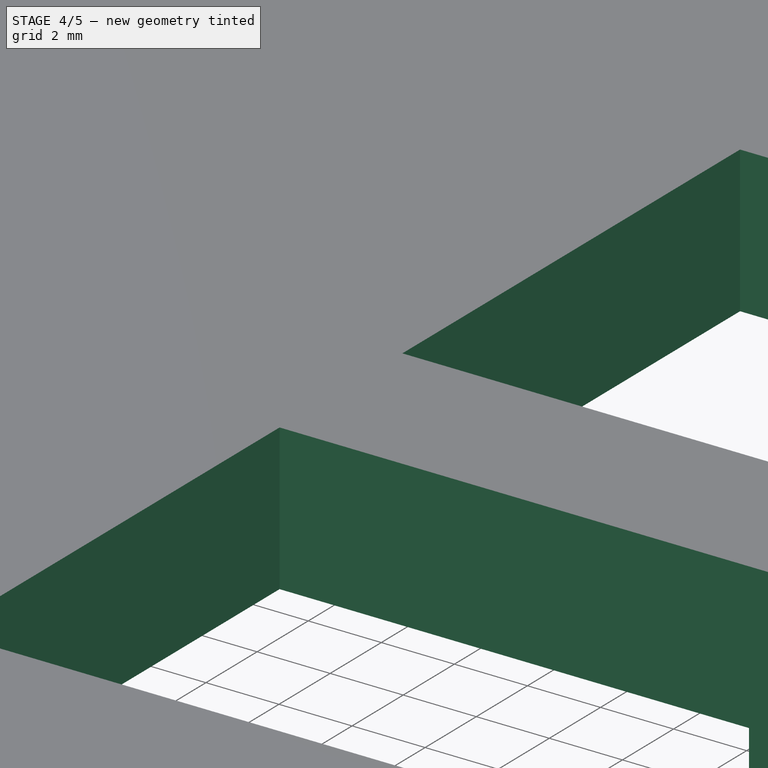
[diagram: stage 4 of 5 — iso view after this stage's code; geometry added in this stage tinted green]
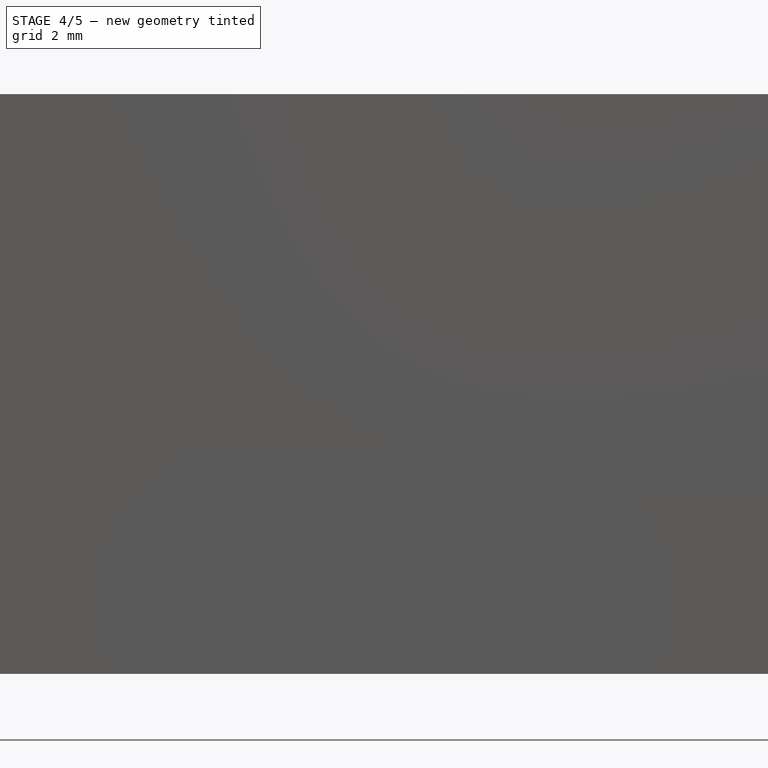
[diagram: stage 4 of 5 — front view after this stage's code; geometry added in this stage tinted green]
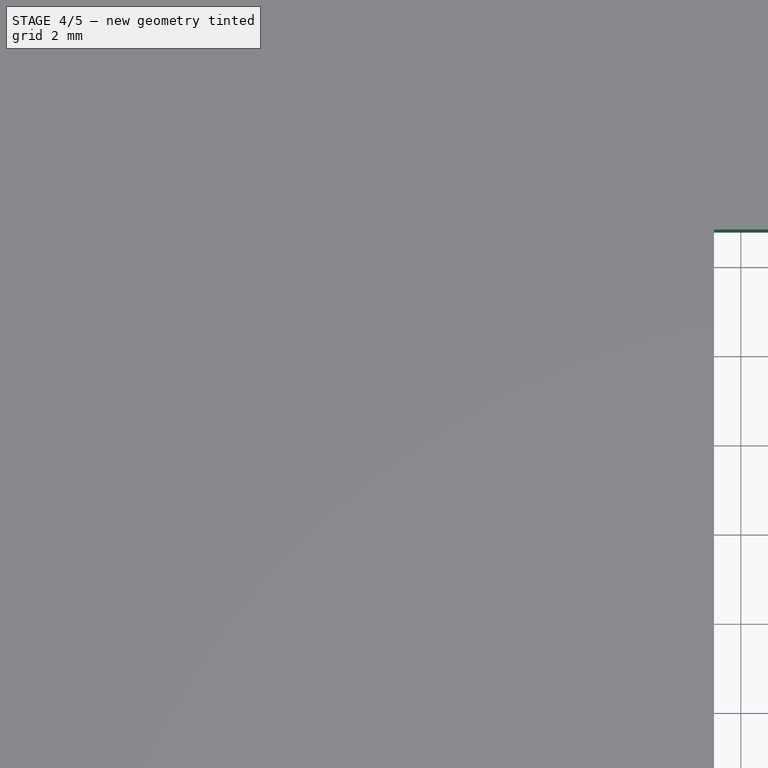
[diagram: stage 4 of 5 — top view after this stage's code; geometry added in this stage tinted green]
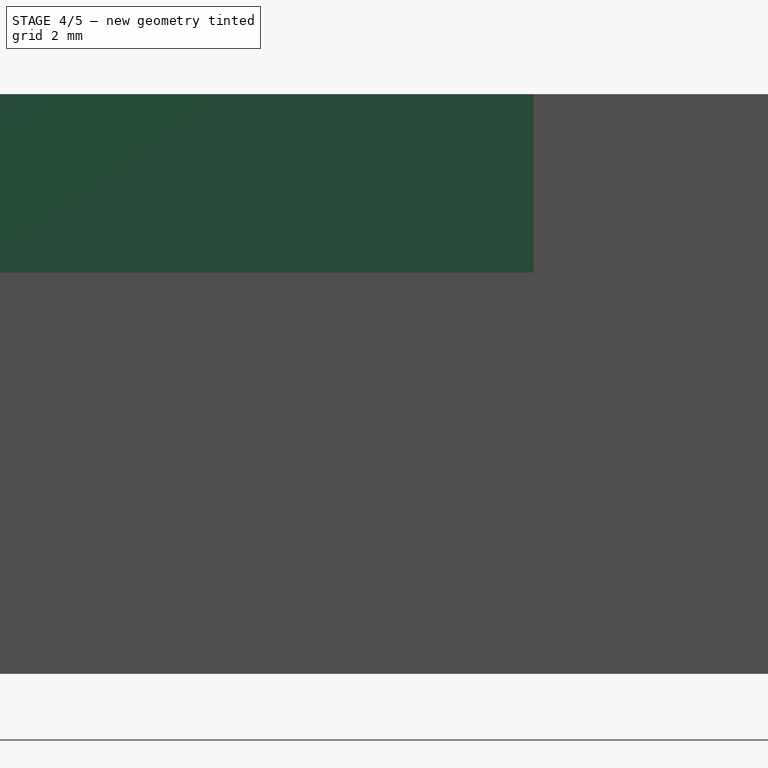
[diagram: stage 4 of 5 — right view after this stage's code; geometry added in this stage tinted green]
FEATURE [Sketcher::SketchObject] Sketch013
  ArcFitTolerance = 1e-06
  AttachmentSupport = -> [Hole003]
  ExternalGeometry = -> [Hole003]
  FullyConstrained = true
  MakeInternals = false
  MapMode = 5
  Placement = pos=(0,0,13) rot=(0,0,1;0rad)
  sketch-geometry (8):
    g0: LineSegment StartX=87.4 StartY=-157.4 StartZ=0 EndX=87.4 EndY=-170.6 EndZ=0
    g1: LineSegment StartX=87.4 StartY=-170.6 StartZ=0 EndX=110.5 EndY=-170.6 EndZ=0
    g2: LineSegment StartX=110.5 StartY=-170.6 StartZ=0 EndX=110.5 EndY=-157.4 EndZ=0
    g3: LineSegment StartX=110.5 StartY=-157.4 StartZ=0 EndX=87.4 EndY=-157.4 EndZ=0
    g4: LineSegment StartX=87.4 StartY=-139.4 StartZ=0 EndX=87.4 EndY=-152.6 EndZ=0
    g5: LineSegment StartX=87.4 StartY=-152.6 StartZ=0 EndX=110.5 EndY=-152.6 EndZ=0
    g6: LineSegment StartX=110.5 StartY=-152.6 StartZ=0 EndX=110.5 EndY=-139.4 EndZ=0
    g7: LineSegment StartX=110.5 StartY=-139.4 StartZ=0 EndX=87.4 EndY=-139.4 EndZ=0
  constraints (24):
    c: Coincident(g0,g1)
    c: Coincident(g1,g2)
    c: Coincident(g2,g3)
    c: Coincident(g3,g0)
    c: Vertical(g0)
    c: Vertical(g2)
    c: Horizontal(g1)
    c: Horizontal(g3)
    c: Coincident(g4,g5)
    c: Coincident(g5,g6)
    c: Coincident(g6,g7)
    c: Coincident(g7,g4)
    c: Vertical(g4)
    c: Vertical(g6)
    c: Horizontal(g5)
    c: Horizontal(g7)
    c: Distance(g2,g-3) = 5
    c: Distance(g6,g-3) = 5
    c: DistanceY(g2,g2) = 13.2
    c: DistanceY(g6,g6) = 13.2
    c: Distance(g-3,g4) = 18.1
    c: Distance(g-3,g0) = 18.1
    c: Distance(g3,g5) = 4.8
    c: Distance(g-4,g7) = 38.4
FEATURE [PartDesign::Pocket] Pocket004  label="Recess connectors"
  BaseFeature = -> Hole003
  Direction = (0,0,-1)
  Length = 7
  Length2 = 5
  Profile = -> Sketch013
  ReferenceAxis = -> Sketch013 [N_Axis]
  Refine = true
  Suppressed = false
  Type = 0
FEATURE [Sketcher::SketchObject] Sketch014
  ArcFitTolerance = 1e-06
  AttachmentSupport = -> [Pocket004]
  ExternalGeometry = -> [Pocket004,Sketch006]
  FullyConstrained = true
  MakeInternals = false
  MapMode = 5
  Placement = pos=(0,-184.5,0) rot=(1,0,0;1.5708rad)
  sketch-geometry (12):
    g0: LineSegment StartX=76.75 StartY=-1.8 StartZ=0 EndX=83.25 EndY=-1.8 EndZ=0
    g1: LineSegment StartX=86.25 StartY=1.2 StartZ=0 EndX=86.25 EndY=2 EndZ=0
    g2: LineSegment StartX=83.25 StartY=5 StartZ=0 EndX=76.75 EndY=5 EndZ=0
    g3: LineSegment StartX=73.75 StartY=2 StartZ=0 EndX=73.75 EndY=1.2 EndZ=0
    g4: ArcOfCircle CenterX=76.75 CenterY=2 CenterZ=0 NormalX=0 NormalY=0 NormalZ=1 AngleXU=0 Radius=3 StartAngle=1.5708 EndAngle=3.14159
    g5: GeomPoint [constr] X=73.75 Y=5 Z=0
    g6: ArcOfCircle CenterX=83.25 CenterY=2 CenterZ=0 NormalX=0 NormalY=0 NormalZ=1 AngleXU=0 Radius=3 StartAngle=0 EndAngle=1.5708
    g7: GeomPoint [constr] X=86.25 Y=5 Z=0
    g8: ArcOfCircle CenterX=76.75 CenterY=1.2 CenterZ=0 NormalX=0 NormalY=0 NormalZ=1 AngleXU=0 Radius=3 StartAngle=3.14159 EndAngle=4.71239
    g9: GeomPoint [constr] X=73.75 Y=-1.8 Z=0
    g10: ArcOfCircle CenterX=83.25 CenterY=1.2 CenterZ=0 NormalX=0 NormalY=0 NormalZ=1 AngleXU=0 Radius=3 StartAngle=4.71239 EndAngle=6.28319
    g11: GeomPoint [constr] X=86.25 Y=-1.8 Z=0
  constraints (28):
    c: Horizontal(g0)
    c: Horizontal(g2)
    c: Vertical(g1)
    c: Vertical(g3)
    c: DistanceX(g5,g7) = 12.5
    c: Distance(g-3,g3) = 19.25
    c: Distance(g-4,g2) = 5
    c: Distance(g-4,g0) = 1.8
    c: PointOnObject(g5,g3)
    c: PointOnObject(g5,g2)
    c: Tangent(g3,g4) = -1.5708
    c: Tangent(g2,g4) = -1.5708
    c: PointOnObject(g7,g1)
    c: PointOnObject(g7,g2)
    c: Tangent(g1,g6) = -1.5708
    c: Tangent(g2,g6) = -1.5708
    c: Radius(g4) = 3
    c: Radius(g6) = 3
    c: PointOnObject(g9,g0)
    c: PointOnObject(g9,g3)
    c: Tangent(g0,g8) = -1.5708
    c: Tangent(g3,g8) = -1.5708
    c: PointOnObject(g11,g1)
    c: PointOnObject(g11,g0)
    c: Tangent(g1,g10) = -1.5708
    c: Tangent(g0,g10) = -1.5708
    c: Radius(g8) = 3
    c: Radius(g10) = 3
FEATURE [PartDesign::Pocket] Pocket005  label="Recess USB"
  BaseFeature = -> Pocket004
  Direction = (0,1,-2e-16)
  Length = 10
  Length2 = 5
  Profile = -> Sketch014
  ReferenceAxis = -> Sketch014 [N_Axis]
  Refine = true
  Suppressed = false
  Type = 0
FEATURE [Sketcher::SketchObject] Sketch016
  ArcFitTolerance = 1e-06
  AttachmentSupport = -> [Pocket005]
  ExternalGeometry = -> [Pocket005]
  FullyConstrained = true
  MakeInternals = false
  MapMode = 5
  Placement = pos=(0,0,9) rot=(1,0,0;3.14159rad)
  sketch-geometry (4):
    g0: LineSegment StartX=93.25 StartY=128 StartZ=0 EndX=100.25 EndY=128 EndZ=0
    g1: LineSegment StartX=100.25 StartY=128 StartZ=0 EndX=100.25 EndY=134 EndZ=0
    g2: LineSegment StartX=100.25 StartY=134 StartZ=0 EndX=93.25 EndY=134 EndZ=0
    g3: LineSegment StartX=93.25 StartY=134 StartZ=0 EndX=93.25 EndY=128 EndZ=0
  constraints (12):
    c: Coincident(g0,g1)
    c: Coincident(g1,g2)
    c: Coincident(g2,g3)
    c: Coincident(g3,g0)
    c: Horizontal(g0)
    c: Horizontal(g2)
    c: Vertical(g1)
    c: Vertical(g3)
    c: PointOnObject(g1,g-4)
    c: DistanceX(g2,g2) = 7
    c: Distance(g-3,g2) = 3
    c: Distance(g-3,g0) = 3
FEATURE [PartDesign::Pad] Pad004  label="Protusion Button"
  BaseFeature = -> Pocket005
  Direction = (0,0,-1)
  Length = 5
  Length2 = 10
  Profile = -> Sketch016
  ReferenceAxis = -> Sketch016 [N_Axis]
  Refine = true
  Suppressed = false
  Type = 0
FEATURE [Sketcher::SketchObject] Sketch017
  ArcFitTolerance = 1e-06
  AttachmentSupport = -> [Pad004]
  ExternalGeometry = -> [Pad004]
  FullyConstrained = true
  MakeInternals = false
  MapMode = 5
  Placement = pos=(0,0,4) rot=(1,0,0;3.14159rad)
  sketch-geometry (1):
    g0: Circle CenterX=96 CenterY=131 CenterZ=0 NormalX=0 NormalY=0 NormalZ=1 AngleXU=0 Radius=2.25
  constraints (2):
    c: Diameter(g0) = 4.5
    c: Coincident(g0,g-3)
FEATURE [PartDesign::Pocket] Pocket007  label="RecessButtonLock"
  BaseFeature = -> Pad004
  Direction = (0,0,1)
  Length = 5
  Length2 = 5
  Profile = -> Sketch017
  ReferenceAxis = -> Sketch017 [N_Axis]
  Refine = true
  Suppressed = false
  Type = 2
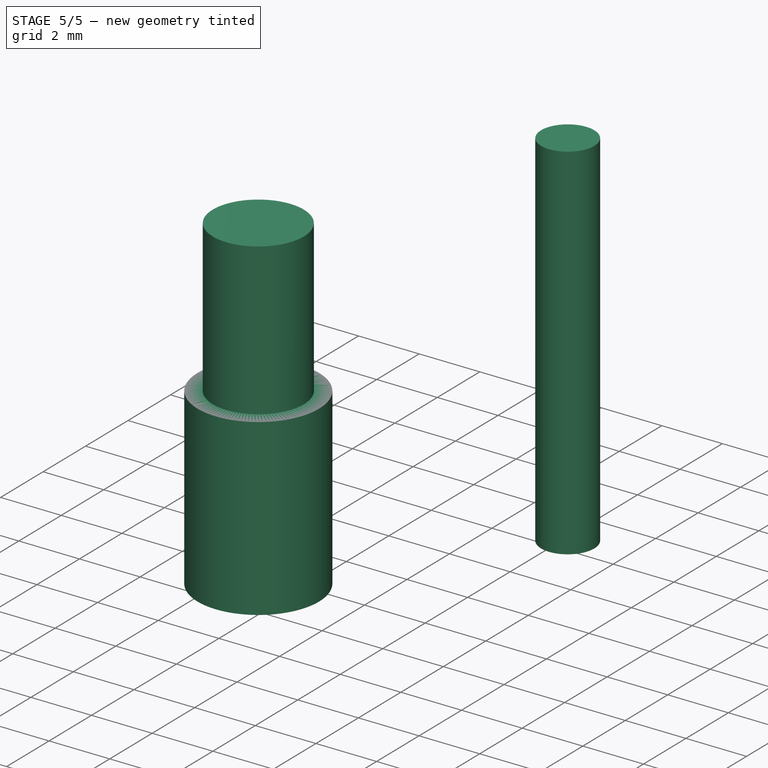
[diagram: stage 5 of 5 — iso view after this stage's code; geometry added in this stage tinted green]
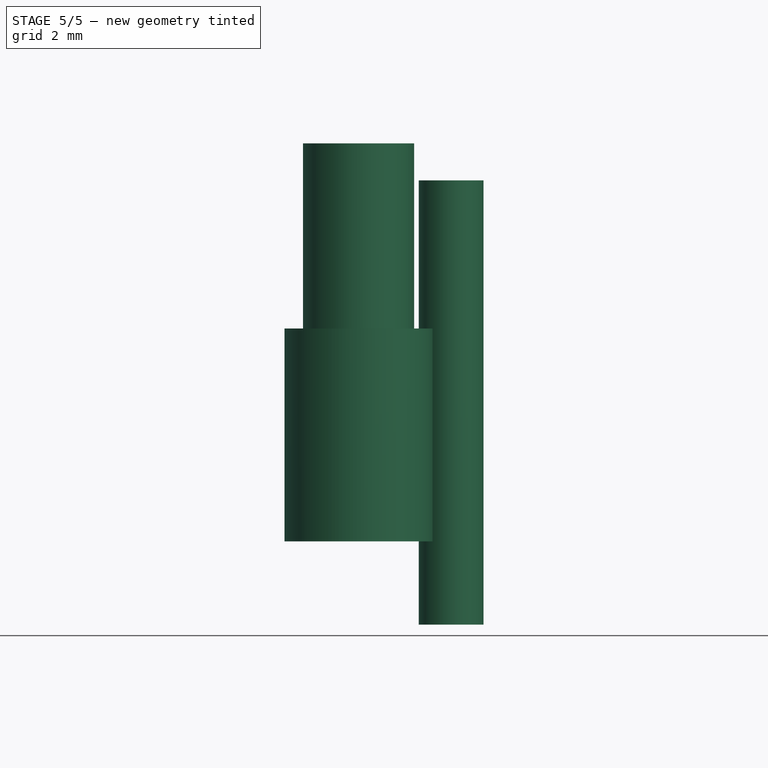
[diagram: stage 5 of 5 — front view after this stage's code; geometry added in this stage tinted green]
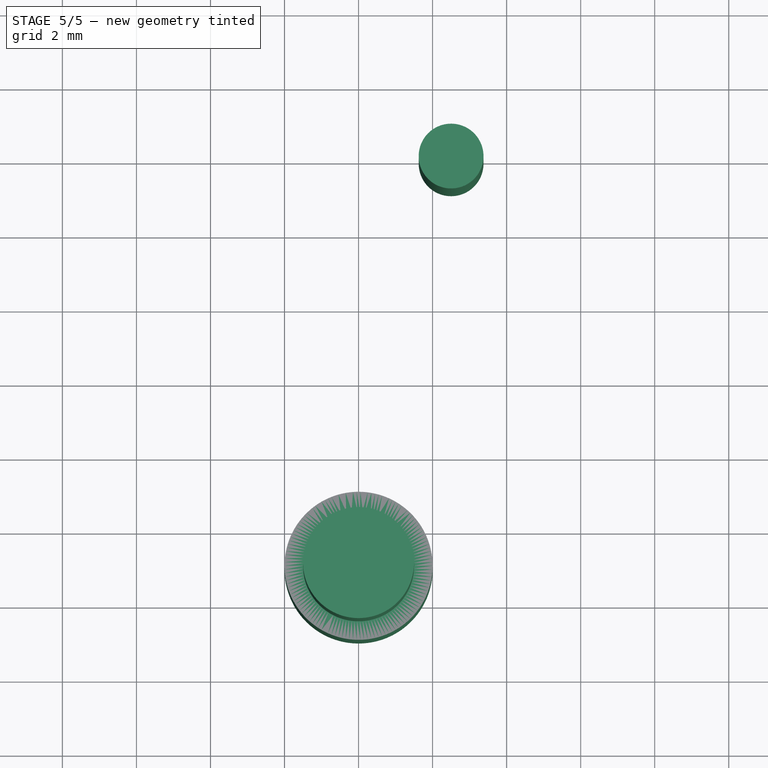
[diagram: stage 5 of 5 — top view after this stage's code; geometry added in this stage tinted green]
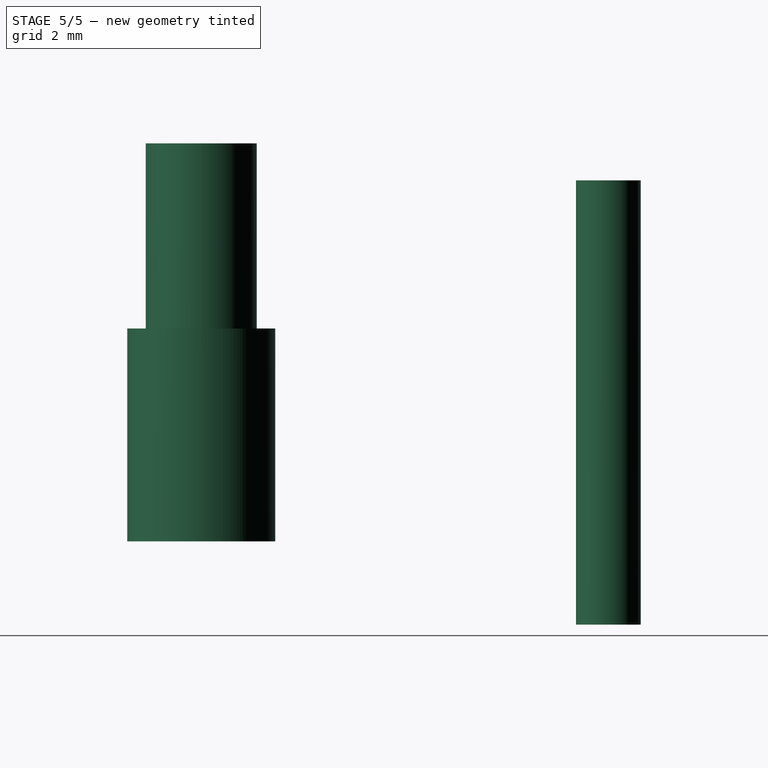
[diagram: stage 5 of 5 — right view after this stage's code; geometry added in this stage tinted green]
FEATURE [Part::Part2DObjectPython] ShapeString  label="zTank"  # Draft 2D object (typed FeaturePython)
  FontFile = <path>
  Fuse = false
  Justification = 6
  JustificationReference = 0
  KeepLeftMargin = false
  MakeFace = true
  ObliqueAngle = 0
  Placement = pos=(65,-181,13) rot=(0,0,1;1.5708rad)
  ScaleToSize = true
  Size = 5
  String = zMod
  Tracking = 0
FEATURE [PartDesign::SubShapeBinder] Binder003
  BindCopyOnChange = 0
  BindMode = 0
  ClaimChildren = false
  Context = -> Body002 [Binder003.]
  Fuse = false
  MakeFace = true
  OffsetFill = false
  OffsetIntersection = false
  OffsetJoinType = 0
  OffsetOpenResult = false
  PartialLoad = false
  Refine = true
  Relative = true
  Support = -> [Body001[Pocket012.Face184]]
  _Version = 2
FEATURE [PartDesign::Plane] DatumPlane002
  AttachmentSupport = -> [Binder003]
  Length = 150.88
  MapMode = 5
  Placement = pos=(0,0,4) rot=(1,0,0;3.14159rad)
  ResizeMode = 0
  Width = 185.865
FEATURE [Sketcher::SketchObject] Sketch018
  ArcFitTolerance = 1e-06
  AttachmentSupport = -> [DatumPlane002]
  ExternalGeometry = -> [Binder003]
  FullyConstrained = true
  MakeInternals = false
  MapMode = 5
  Placement = pos=(0,0,4) rot=(1,0,0;3.14159rad)
  sketch-geometry (1):
    g0: Circle CenterX=96 CenterY=131 CenterZ=0 NormalX=0 NormalY=0 NormalZ=1 AngleXU=0 Radius=2
  constraints (2):
    c: Coincident(g0,g-3)
    c: Diameter(g0) = 4
FEATURE [PartDesign::Pad] Pad005  label="BigD"
  Direction = (0,0,-1)
  Length = 0.75
  Length2 = 5
  Placement = pos=(0,0,4) rot=(1,0,0;3.14159rad)
  Profile = -> Sketch018
  ReferenceAxis = -> Sketch018 [N_Axis]
  Refine = true
  Suppressed = false
  Type = 4
FEATURE [Sketcher::SketchObject] Sketch019
  ArcFitTolerance = 1e-06
  AttachmentSupport = -> [Pad005]
  ExternalGeometry = -> [Pad005]
  FullyConstrained = true
  MakeInternals = false
  MapMode = 5
  Placement = pos=(0,-6e-16,9) rot=(0,0,1;0rad)
  sketch-geometry (1):
    g0: Circle CenterX=96 CenterY=-131 CenterZ=0 NormalX=0 NormalY=0 NormalZ=1 AngleXU=0 Radius=1.5
  constraints (2):
    c: Coincident(g0,g-3)
    c: Diameter(g0) = 3
FEATURE [PartDesign::Pad] Pad006  label="SmallD"
  BaseFeature = -> Pad005
  Direction = (0,0,1)
  Length = 5
  Length2 = 10
  Placement = pos=(0,0,4) rot=(1,0,0;3.14159rad)
  Profile = -> Sketch019
  ReferenceAxis = -> Sketch019 [N_Axis]
  Refine = true
  Suppressed = false
  Type = 0
FEATURE [PartDesign::Pocket] Pocket008  label="Gravure"
  BaseFeature = -> Pocket007
  Direction = (0,0,-1)
  Length = 0.5
  Length2 = 5
  Profile = -> ShapeString
  ReferenceAxis = -> ShapeString [N_Axis]
  Refine = true
  Suppressed = false
  Type = 0
FEATURE [PartDesign::SubShapeBinder] Binder004
  BindCopyOnChange = 0
  BindMode = 0
  ClaimChildren = false
  Context = -> Body003 [Binder004.]
  Fuse = false
  MakeFace = true
  OffsetFill = false
  OffsetIntersection = false
  OffsetJoinType = 0
  OffsetOpenResult = false
  PartialLoad = false
  Refine = true
  Relative = true
  Support = -> [Body001[Pocket012.Face5]]
  _Version = 2
FEATURE [PartDesign::Plane] DatumPlane003
  AttachmentSupport = -> [Binder004]
  Length = 151.314
  MapMode = 5
  Placement = pos=(0,0,13) rot=(0,0,1;0rad)
  ResizeMode = 0
  Width = 172.814
FEATURE [Sketcher::SketchObject] Sketch025
  ArcFitTolerance = 1e-06
  AttachmentSupport = -> [DatumPlane003]
  ExternalGeometry = -> [Binder004]
  FullyConstrained = true
  MakeInternals = false
  MapMode = 5
  Placement = pos=(0,0,13) rot=(0,0,1;0rad)
  sketch-geometry (1):
    g0: Circle CenterX=98.5 CenterY=-120 CenterZ=0 NormalX=0 NormalY=0 NormalZ=1 AngleXU=0 Radius=0.875
  constraints (2):
    c: Coincident(g0,g-3)
    c: Diameter(g0) = 1.75
FEATURE [PartDesign::Pad] Pad009  label="Guide Length"
  Direction = (0,0,1)
  Length = 12
  Length2 = 10
  Placement = pos=(0,0,13) rot=(0,0,1;0rad)
  Profile = -> Sketch025
  ReferenceAxis = -> Sketch025 [N_Axis]
  Refine = true
  Reversed = true
  Suppressed = false
  Type = 0
FEATURE [PartDesign::Body] Body003  label="LightGuide"
  AllowCompound = false
  Group = -> [Binder004,DatumPlane003,Sketch025,Pad009]
  Origin = -> Origin089
  Tip = -> Pad009
FEATURE [Part::Part2DObjectPython] ShapeString001  label="Connect"  # Draft 2D object (typed FeaturePython)
  FontFile = <path>
  Fuse = false
  Justification = 6
  JustificationReference = 0
  KeepLeftMargin = false
  MakeFace = true
  ObliqueAngle = 0
  Placement = pos=(86,-169,13) rot=(0,0,1;1.5708rad)
  ScaleToSize = true
  Size = 3.5
  String = B A -     B A -
  Tracking = 0
FEATURE [PartDesign::Pocket] Pocket012  label="Repere Connect"
  BaseFeature = -> Pocket008
  Direction = (0,0,-1)
  Length = 0.5
  Length2 = 5
  Profile = -> ShapeString001
  ReferenceAxis = -> ShapeString001 [N_Axis]
  Refine = true
  Suppressed = false
  Type = 0
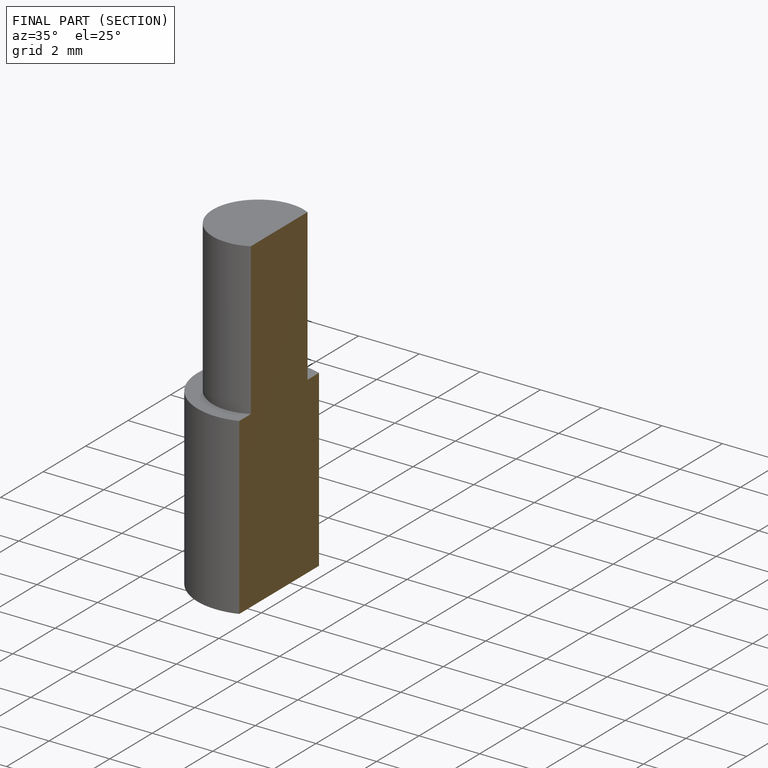
[diagram: finished part — half-section view (interior)]
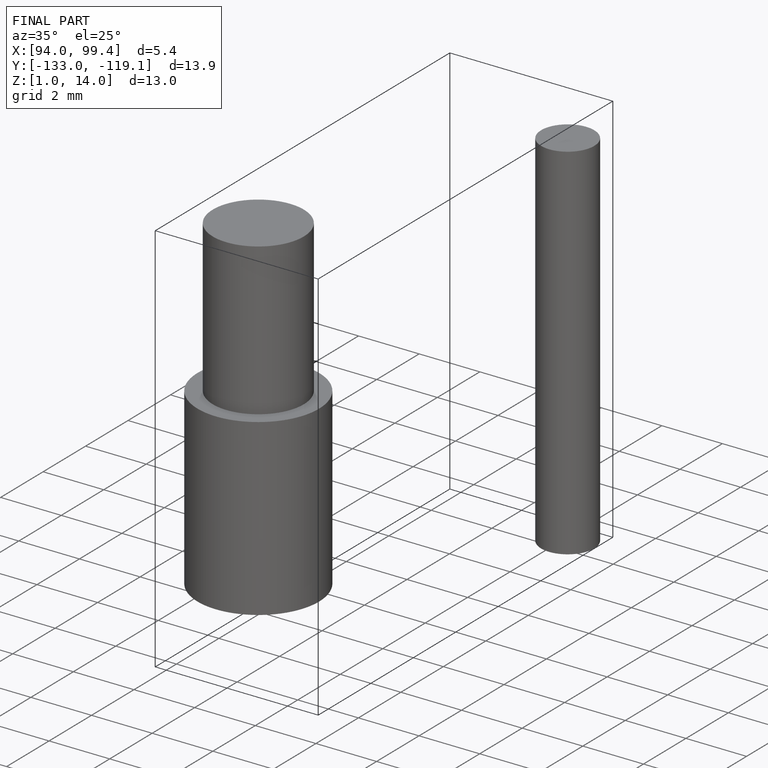
[diagram: finished part — iso view with bounding-box wireframe]
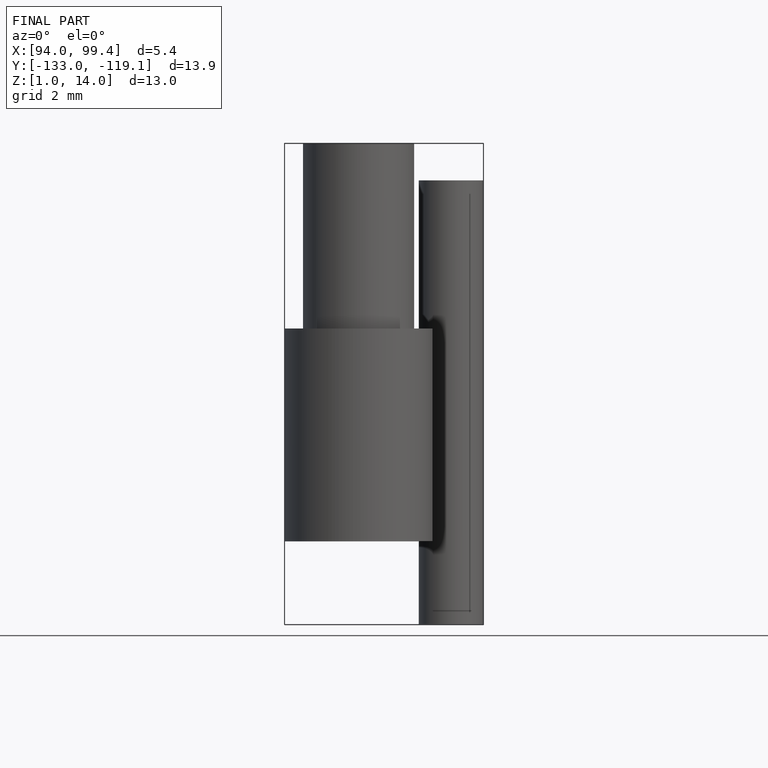
[diagram: finished part — front view with bounding-box wireframe]
